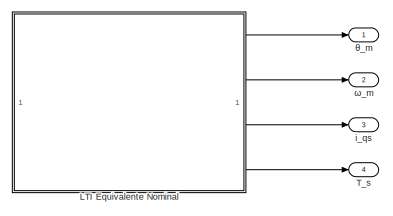
[diagram: root canvas - part 1/2, top right region]
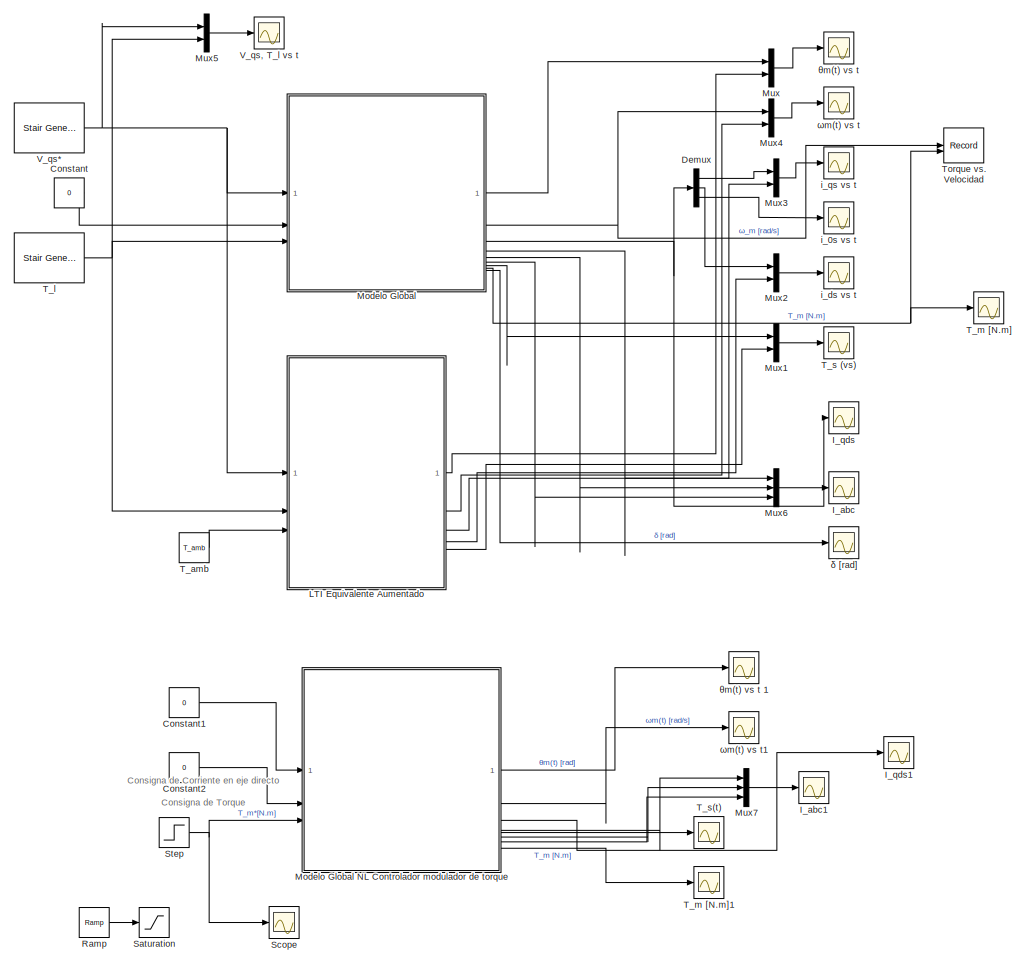
[diagram: root canvas - part 2/2, left side, full height]
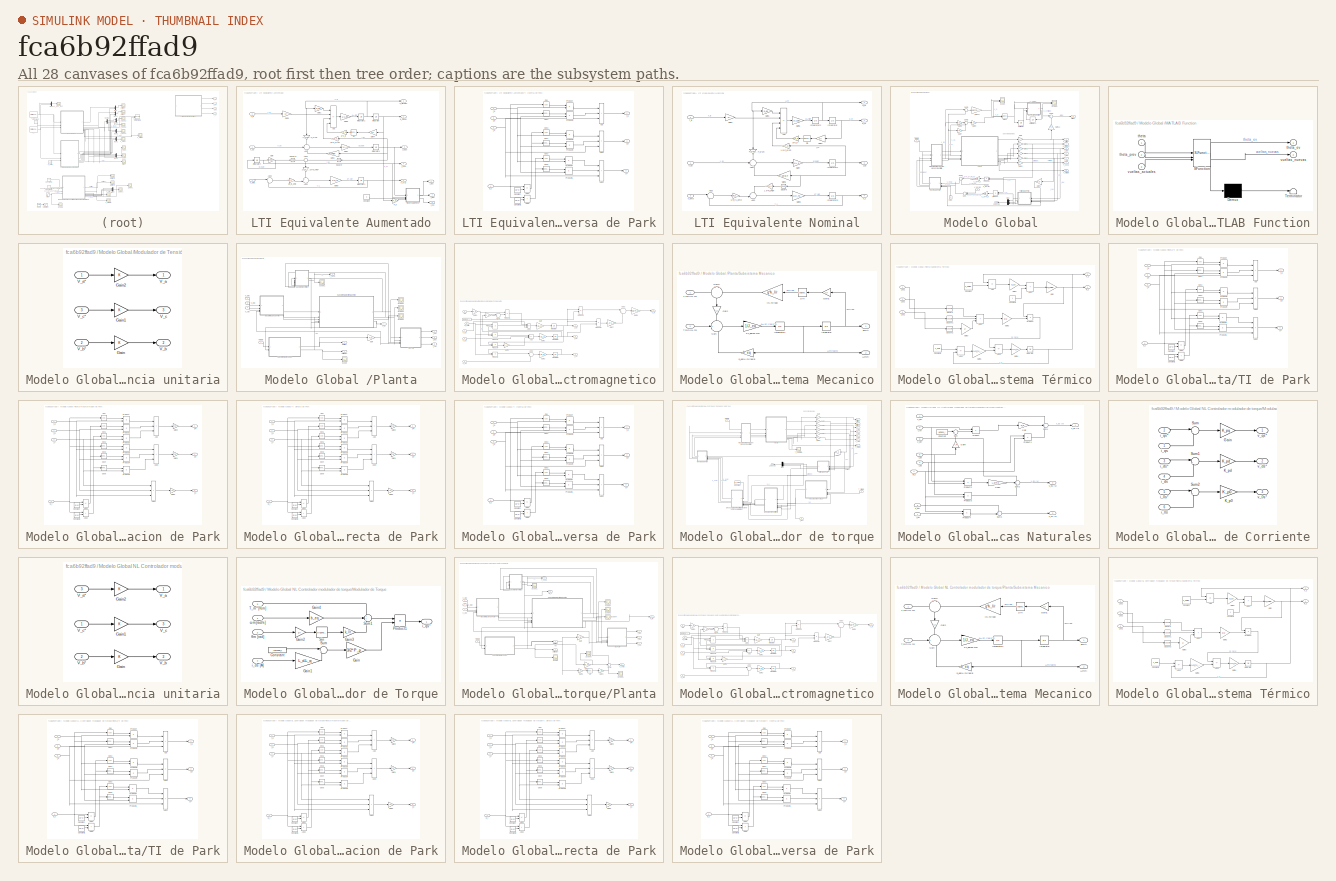
[diagram: thumbnail index - all 28 canvases of the model, root first then tree order]
MODEL slx_fca6b92ffad9
KIND model
CONFIG AbsTol = auto
CONFIG EnableMultiTasking = off
CONFIG FixedStep = auto
CONFIG MaxStep = 1e-4
CONFIG MinStep = auto
CONFIG PostLoadFcn = parametros_sistema_completo\nrun("parametros_sistema_completo.mlx")
CONFIG RelTol = 1e-3
CONFIG SampleTimeConstraint = Unconstrained
CONFIG SolverName = ode15s
CONFIG StartTime = 0.0
CONFIG StopTime = 4
BLOCK [Constant] Constant
  Commented = on
  Value = 0
BLOCK [Constant] Constant1
  Value = 0
BLOCK [Constant] Constant2
  Value = 0
BLOCK [Demux] Demux
  Commented = on
  Outputs = 3
BLOCK [Scope] I_abc
  ActiveDisplayYMaximum = 13.67744
  ActiveDisplayYMinimum = -13.46895
  Commented = on
  DataLoggingDecimateData = on
  DataLoggingDecimation = 1
  DataLoggingSaveFormat = Array
  DataLoggingVariableName = ScopeData8
  Floating = off
  GraphicalSettings = {"GraphicalSettings":{"LegacySettings":true,"Style":{"AxesScalingProperties":{"ScaleAxesLimitsAtStop":false},"Style":{"AxesColor":"[0 0 0]","ChannelNames":[""],"ColorOrder":"[1 1 0.0666666666666667;0.0745098039215686 0.623529411764706 1;1 0.411764705882353 0.16078431372549;0.392156862745098 0.831372549019608 0.0745098039215686;0.717647058823529 0.274509803921569 1;0.0588235294117647 1 1;1 0.074509...<+430ch>
  MultipleDisplayCache = [{"MaxYLimMag":13.67744,"MaxYLimReal":13.67744,"MinYLimMag":0,"MinYLimReal":-13.46895,"PlotAsMagnitudePhase":false,"ShowGrid":true,"ShowLegend":false,"Title":"%<SignalLabel>","YLabel":""}]
  NumInputPorts = 1
  WasSavedAsWebScope = on
  WindowPosition = [1 -851 1440 782]
BLOCK [Scope] I_abc1
  ActiveDisplayYMaximum = 2.231879319325162
  ActiveDisplayYMinimum = 1.509189182398543
  DataLoggingDecimateData = on
  DataLoggingDecimation = 1
  DataLoggingSaveFormat = Array
  DataLoggingVariableName = ScopeData16
  Floating = off
  GraphicalSettings = {"AxesScalingProperties":{"AlignXAxis":"Center","AlignYAxis":"Center","AutoScaleXAxisLimits":false,"AxesScaling":"Manual","AxesScalingNumUpdates":10,"ExpandOnly":true,"ScaleAxesLimitsAtStop":false,"XAxisDataRange":100,"YAxisDataRange":80},"Cursors":{"CursorChannels":["auto","auto"],"Enabled":false,"Horizontal":true,"LinkToWaveform":true,"LockSpacing":false,"ShowMeasurement":true,"ShowPanel":false,...<+2788ch>
  MultipleDisplayCache = [{"MaxYLimMag":2957.8611784200357,"MaxYLimReal":2.231879319325162,"MinYLimMag":0,"MinYLimReal":1.509189182398543,"PlotAsMagnitudePhase":false,"ShowGrid":true,"ShowLegend":false,"Title":"%<SignalLabel>","YLabel":""}]
  NumInputPorts = 1
  ScopeFrameLocation = window
  WasSavedAsWebScope = on
  WindowPosition = [1.000000,31.000000,1280.000000,747.000000,]
BLOCK [Scope] I_qds
  ActiveDisplayYMaximum = 9.6412
  ActiveDisplayYMinimum = -9.4986
  Commented = on
  DataLoggingDecimateData = on
  DataLoggingDecimation = 1
  DataLoggingSaveFormat = Array
  DataLoggingVariableName = ScopeData3
  Floating = off
  GraphicalSettings = {"GraphicalSettings":{"LegacySettings":true,"Style":{"AxesScalingProperties":{"ScaleAxesLimitsAtStop":false},"Style":{"AxesColor":"[0 0 0]","ChannelNames":[""],"ColorOrder":"[1 1 0.0666666666666667;0.0745098039215686 0.623529411764706 1;1 0.411764705882353 0.16078431372549;0.392156862745098 0.831372549019608 0.0745098039215686;0.717647058823529 0.274509803921569 1;0.0588235294117647 1 1;1 0.074509...<+439ch>
  MultipleDisplayCache = [{"MaxYLimMag":0.00014,"MaxYLimReal":9.6412,"MinYLimMag":0,"MinYLimReal":-9.4986,"PlotAsMagnitudePhase":false,"ShowGrid":true,"ShowLegend":false,"Title":"%<SignalLabel>","YLabel":""}]
  NumInputPorts = 1
  WasSavedAsWebScope = on
BLOCK [Scope] I_qds1
  ActiveDisplayYMaximum = 2.5935511564000739
  ActiveDisplayYMinimum = -1.0295255435558501
  DataLoggingDecimateData = on
  DataLoggingDecimation = 1
  DataLoggingSaveFormat = Array
  DataLoggingVariableName = ScopeData21
  Floating = off
  GraphicalSettings = {"AxesScalingProperties":{"AlignXAxis":"Center","AlignYAxis":"Center","AutoScaleXAxisLimits":false,"AxesScaling":"Manual","AxesScalingNumUpdates":10,"ExpandOnly":true,"ScaleAxesLimitsAtStop":false,"XAxisDataRange":100,"YAxisDataRange":80},"Cursors":{"CursorChannels":["auto","auto"],"Enabled":false,"Horizontal":true,"LinkToWaveform":true,"LockSpacing":false,"ShowMeasurement":true,"ShowPanel":false,...<+2746ch>
  MultipleDisplayCache = [{"MaxYLimMag":0.00014,"MaxYLimReal":2.5935511564000739,"MinYLimMag":0,"MinYLimReal":-1.0295255435558501,"PlotAsMagnitudePhase":false,"ShowGrid":true,"ShowLegend":true,"Title":"%<SignalLabel>","YLabel":""}]
  NumInputPorts = 1
  ScopeFrameLocation = window
  ShowLegend = on
  WasSavedAsWebScope = on
  WindowPosition = [1.000000,36.000000,1920.000000,1022.000000,]
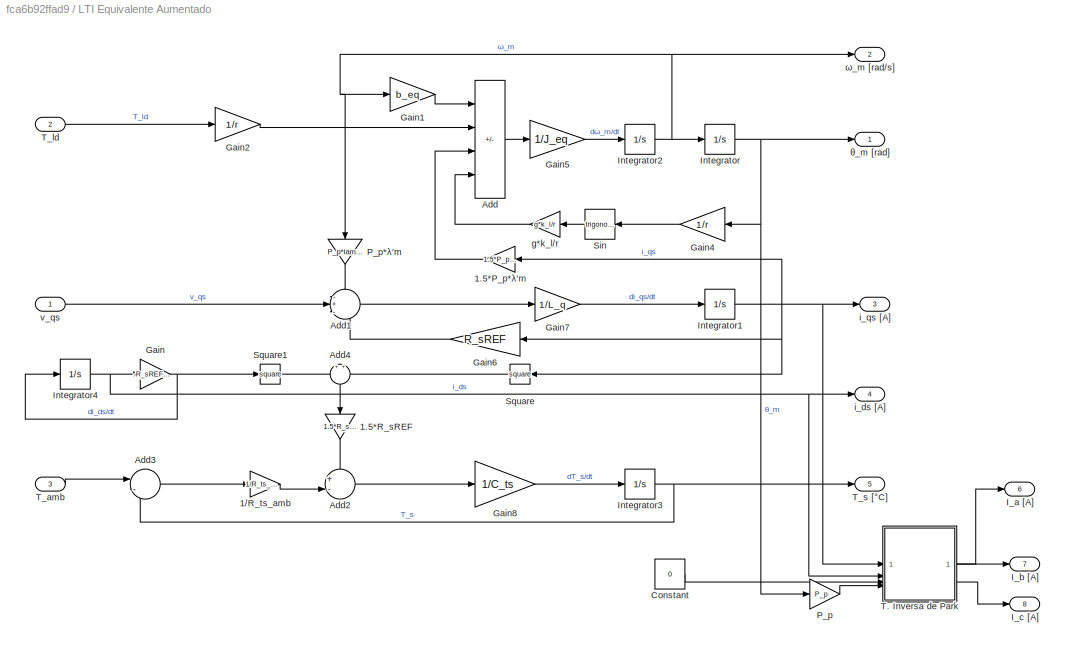
BLOCK [SubSystem] LTI Equivalente Aumentado
  Commented = on
BLOCK [Gain] LTI Equivalente Aumentado/1.5*P_p*λ′m
  Gain = 1.5*P_p*lambda_r
BLOCK [Gain] LTI Equivalente Aumentado/1.5*R_sREF
  Gain = 1.5*R_sREF
  NameLocation = right
BLOCK [Gain] LTI Equivalente Aumentado/1//R_ts_amb
  Gain = 1/R_ts_amb
  NameLocation = top
BLOCK [Sum] LTI Equivalente Aumentado/Add
  IconShape = rectangular
  Inputs = --+-
BLOCK [Sum] LTI Equivalente Aumentado/Add1
  Inputs = -+-
BLOCK [Sum] LTI Equivalente Aumentado/Add2
  Inputs = +-|
BLOCK [Sum] LTI Equivalente Aumentado/Add3
  Inputs = |-+
BLOCK [Sum] LTI Equivalente Aumentado/Add4
  NameLocation = right
BLOCK [Constant] LTI Equivalente Aumentado/Constant
  Value = 0
BLOCK [Gain] LTI Equivalente Aumentado/Gain
  Gain = -R_sREF/L_d
BLOCK [Gain] LTI Equivalente Aumentado/Gain1
  Gain = b_eq
  NameLocation = top
BLOCK [Gain] LTI Equivalente Aumentado/Gain2
  Gain = 1/r
BLOCK [Gain] LTI Equivalente Aumentado/Gain4
  Gain = 1/r
  NameLocation = top
BLOCK [Gain] LTI Equivalente Aumentado/Gain5
  Gain = 1/J_eq
BLOCK [Gain] LTI Equivalente Aumentado/Gain6
  Gain = R_sREF
  NameLocation = top
BLOCK [Gain] LTI Equivalente Aumentado/Gain7
  Gain = 1/L_q
BLOCK [Gain] LTI Equivalente Aumentado/Gain8
  Gain = 1/C_ts
BLOCK [Outport] LTI Equivalente Aumentado/I_a [A]
  Port = 6
BLOCK [Outport] LTI Equivalente Aumentado/I_b [A]
  Port = 7
BLOCK [Outport] LTI Equivalente Aumentado/I_c [A]
  Port = 8
BLOCK [Integrator] LTI Equivalente Aumentado/Integrator
BLOCK [Integrator] LTI Equivalente Aumentado/Integrator1
BLOCK [Integrator] LTI Equivalente Aumentado/Integrator2
BLOCK [Integrator] LTI Equivalente Aumentado/Integrator3
  InitialCondition = T_amb
BLOCK [Integrator] LTI Equivalente Aumentado/Integrator4
BLOCK [Gain] LTI Equivalente Aumentado/P_p
  Gain = P_p
BLOCK [Gain] LTI Equivalente Aumentado/P_p*λ′m
  Gain = P_p*lambda_r
  NameLocation = right
BLOCK [Trigonometry] LTI Equivalente Aumentado/Sin
  NameLocation = top
BLOCK [Math] LTI Equivalente Aumentado/Square
  NameLocation = top
  Operator = square
BLOCK [Math] LTI Equivalente Aumentado/Square1
  Operator = square
BLOCK [SubSystem] LTI Equivalente Aumentado/T. Inversa de Park
  NameLocation = top
BLOCK [Sum] LTI Equivalente Aumentado/T. Inversa de Park/Add
  IconShape = rectangular
  Inputs = +++
BLOCK [Sum] LTI Equivalente Aumentado/T. Inversa de Park/Add1
  IconShape = rectangular
  Inputs = +-
BLOCK [Sum] LTI Equivalente Aumentado/T. Inversa de Park/Add2
  IconShape = rectangular
BLOCK [Sum] LTI Equivalente Aumentado/T. Inversa de Park/Add3
  IconShape = rectangular
  Inputs = +++
BLOCK [Sum] LTI Equivalente Aumentado/T. Inversa de Park/Add4
  IconShape = rectangular
  Inputs = +++
BLOCK [Constant] LTI Equivalente Aumentado/T. Inversa de Park/Constant
  Value = 2/3*pi
BLOCK [Constant] LTI Equivalente Aumentado/T. Inversa de Park/Constant1
  Value = 2/3*pi
BLOCK [Trigonometry] LTI Equivalente Aumentado/T. Inversa de Park/Cos
  Operator = cos
BLOCK [Trigonometry] LTI Equivalente Aumentado/T. Inversa de Park/Cos1
BLOCK [Trigonometry] LTI Equivalente Aumentado/T. Inversa de Park/Cos2
  Operator = cos
BLOCK [Trigonometry] LTI Equivalente Aumentado/T. Inversa de Park/Cos3
  Operator = cos
BLOCK [Trigonometry] LTI Equivalente Aumentado/T. Inversa de Park/Cos4
BLOCK [Trigonometry] LTI Equivalente Aumentado/T. Inversa de Park/Cos5
BLOCK [Product] LTI Equivalente Aumentado/T. Inversa de Park/Product
BLOCK [Product] LTI Equivalente Aumentado/T. Inversa de Park/Product1
BLOCK [Product] LTI Equivalente Aumentado/T. Inversa de Park/Product2
BLOCK [Product] LTI Equivalente Aumentado/T. Inversa de Park/Product3
BLOCK [Product] LTI Equivalente Aumentado/T. Inversa de Park/Product4
BLOCK [Product] LTI Equivalente Aumentado/T. Inversa de Park/Product5
BLOCK [Inport] LTI Equivalente Aumentado/T. Inversa de Park/f_0
  Port = 3
BLOCK [Outport] LTI Equivalente Aumentado/T. Inversa de Park/f_a
BLOCK [Outport] LTI Equivalente Aumentado/T. Inversa de Park/f_b
  Port = 2
BLOCK [Outport] LTI Equivalente Aumentado/T. Inversa de Park/f_c
  Port = 3
BLOCK [Inport] LTI Equivalente Aumentado/T. Inversa de Park/f_d
  Port = 2
BLOCK [Inport] LTI Equivalente Aumentado/T. Inversa de Park/f_q
BLOCK [Inport] LTI Equivalente Aumentado/T. Inversa de Park/θ_r
  Port = 4
BLOCK [Inport] LTI Equivalente Aumentado/T_amb
  Port = 3
BLOCK [Inport] LTI Equivalente Aumentado/T_ld
  Port = 2
BLOCK [Outport] LTI Equivalente Aumentado/T_s [°C]
  Port = 5
BLOCK [Gain] LTI Equivalente Aumentado/g*k_l//r
  Gain = g*k_l/r
  NameLocation = top
BLOCK [Outport] LTI Equivalente Aumentado/i_ds [A]
  Port = 4
BLOCK [Outport] LTI Equivalente Aumentado/i_qs [A]
  Port = 3
BLOCK [Inport] LTI Equivalente Aumentado/v_qs
BLOCK [Outport] LTI Equivalente Aumentado/θ_m [rad]
BLOCK [Outport] LTI Equivalente Aumentado/ω_m [rad//s]
  Port = 2
BLOCK [SubSystem] LTI Equivalente Nominal
  Commented = on
BLOCK [Gain] LTI Equivalente Nominal/1.5*P_p*λ′m
  Gain = 1.5*P_p*lambda_r
BLOCK [Gain] LTI Equivalente Nominal/1.5*R_sREF
  Gain = 1.5*R_sREF
BLOCK [Gain] LTI Equivalente Nominal/1//R_ts_amb
  Gain = 1/R_ts_amb
  NameLocation = top
BLOCK [Sum] LTI Equivalente Nominal/Add
  IconShape = rectangular
  Inputs = --+-
BLOCK [Sum] LTI Equivalente Nominal/Add1
  Inputs = -+-
BLOCK [Sum] LTI Equivalente Nominal/Add2
  Inputs = +-|
BLOCK [Sum] LTI Equivalente Nominal/Add3
  Inputs = |-+
BLOCK [Gain] LTI Equivalente Nominal/Gain1
  Gain = b_eq
  NameLocation = top
BLOCK [Gain] LTI Equivalente Nominal/Gain2
  Gain = 1/r
BLOCK [Gain] LTI Equivalente Nominal/Gain4
  Gain = 1/r
  NameLocation = top
BLOCK [Gain] LTI Equivalente Nominal/Gain5
  Gain = 1/J_eq
BLOCK [Gain] LTI Equivalente Nominal/Gain6
  Gain = R_sREF
  NameLocation = top
BLOCK [Gain] LTI Equivalente Nominal/Gain7
  Gain = 1/L_q
BLOCK [Gain] LTI Equivalente Nominal/Gain8
  Gain = 1/C_ts
BLOCK [Integrator] LTI Equivalente Nominal/Integrator
BLOCK [Integrator] LTI Equivalente Nominal/Integrator1
BLOCK [Integrator] LTI Equivalente Nominal/Integrator2
BLOCK [Integrator] LTI Equivalente Nominal/Integrator3
BLOCK [Gain] LTI Equivalente Nominal/P_p*λ′m
  Gain = P_p*lambda_r
  NameLocation = right
BLOCK [Trigonometry] LTI Equivalente Nominal/Sin
  NameLocation = top
BLOCK [Math] LTI Equivalente Nominal/Square
  NameLocation = top
  Operator = square
BLOCK [Inport] LTI Equivalente Nominal/T_amb
  Port = 3
BLOCK [Inport] LTI Equivalente Nominal/T_ld
  Port = 2
BLOCK [Outport] LTI Equivalente Nominal/T_s
  Port = 4
BLOCK [Gain] LTI Equivalente Nominal/g*k_l//r
  Gain = g*k_l/r
  NameLocation = top
BLOCK [Outport] LTI Equivalente Nominal/i_qs
  Port = 3
BLOCK [Inport] LTI Equivalente Nominal/v_qs
BLOCK [Outport] LTI Equivalente Nominal/θ_m
BLOCK [Outport] LTI Equivalente Nominal/ω_m
  Port = 2
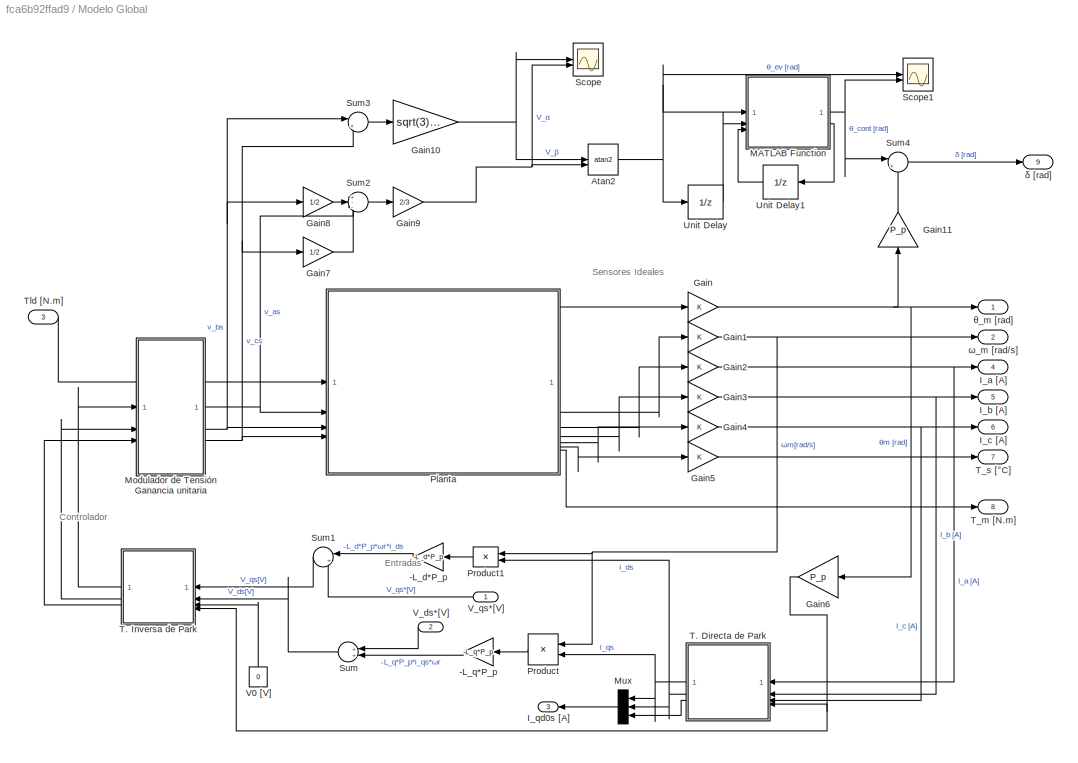
BLOCK [SubSystem] Modelo Global 
  Commented = on
BLOCK [Gain] Modelo Global /-L_d*P_p
  Gain = -L_d*P_p
  NameLocation = top
BLOCK [Gain] Modelo Global /-L_q*P_p
  Gain = -L_q*P_p
BLOCK [Trigonometry] Modelo Global /Atan2
  Operator = atan2
BLOCK [Gain] Modelo Global /Gain
BLOCK [Gain] Modelo Global /Gain1
BLOCK [Gain] Modelo Global /Gain10
  Gain = sqrt(3)/3
BLOCK [Gain] Modelo Global /Gain11
  Gain = P_p
  NameLocation = right
BLOCK [Gain] Modelo Global /Gain2
BLOCK [Gain] Modelo Global /Gain3
BLOCK [Gain] Modelo Global /Gain4
BLOCK [Gain] Modelo Global /Gain5
BLOCK [Gain] Modelo Global /Gain6
  Gain = P_p
  NameLocation = top
BLOCK [Gain] Modelo Global /Gain7
  Gain = 1/2
BLOCK [Gain] Modelo Global /Gain8
  Gain = 1/2
BLOCK [Gain] Modelo Global /Gain9
  Gain = 2/3
BLOCK [Outport] Modelo Global /I_a [A]
  Port = 4
BLOCK [Outport] Modelo Global /I_b [A]
  Port = 5
BLOCK [Outport] Modelo Global /I_c [A]
  Port = 6
BLOCK [Outport] Modelo Global /I_qd0s [A]
  NameLocation = top
  Port = 3
BLOCK [SubSystem] Modelo Global /MATLAB Function
  ErrorFcn = Stateflow.Translate.translate
  PermitHierarchicalResolution = ExplicitOnly
  SFBlockType = MATLAB Function
  TreatAsAtomicUnit = on
BLOCK [Demux] Modelo Global /MATLAB Function/ Demux 
  Outputs = 1
BLOCK [S-Function] Modelo Global /MATLAB Function/ SFunction 
  EnableBusSupport = off
  FunctionName = sf_sfun
  PortCounts = [3 3]
  SFcnIsStateOwnerBlock = off
  SFunctionDeploymentMode = off
  Tag = Stateflow S-Function 2
BLOCK [Terminator] Modelo Global /MATLAB Function/ Terminator 
BLOCK [Inport] Modelo Global /MATLAB Function/theta
BLOCK [Outport] Modelo Global /MATLAB Function/theta_ev
BLOCK [Inport] Modelo Global /MATLAB Function/theta_prev
  Port = 2
BLOCK [Inport] Modelo Global /MATLAB Function/vueltas_actuales
  Port = 3
BLOCK [Outport] Modelo Global /MATLAB Function/vueltas_nuevas
  Port = 2
BLOCK [SubSystem] Modelo Global /Modulador de Tensión Ganancia unitaria
BLOCK [Gain] Modelo Global /Modulador de Tensión Ganancia unitaria/Gain
BLOCK [Gain] Modelo Global /Modulador de Tensión Ganancia unitaria/Gain1
BLOCK [Gain] Modelo Global /Modulador de Tensión Ganancia unitaria/Gain2
BLOCK [Outport] Modelo Global /Modulador de Tensión Ganancia unitaria/V_a
BLOCK [Inport] Modelo Global /Modulador de Tensión Ganancia unitaria/V_a*
  NameLocation = top
BLOCK [Outport] Modelo Global /Modulador de Tensión Ganancia unitaria/V_b
  Port = 2
BLOCK [Inport] Modelo Global /Modulador de Tensión Ganancia unitaria/V_b*
  NameLocation = top
  Port = 2
BLOCK [Outport] Modelo Global /Modulador de Tensión Ganancia unitaria/V_c
  Port = 3
BLOCK [Inport] Modelo Global /Modulador de Tensión Ganancia unitaria/V_c*
  NameLocation = top
  Port = 3
BLOCK [Mux] Modelo Global /Mux
  DisplayOption = bar
  Inputs = 3
  NameLocation = top
BLOCK [SubSystem] Modelo Global /Planta
BLOCK [Gain] Modelo Global /Planta/Gain
  Gain = P_p
BLOCK [Scope] Modelo Global /Planta/Scope
  DataLoggingDecimateData = on
  DataLoggingDecimation = 1
  DataLoggingLimitDataPoints = on
  DataLoggingSaveFormat = Array
  Floating = off
  GraphicalSettings = {"GraphicalSettings":{"LegacySettings":true,"Style":{"Style":{"CurrentConfiguration":"extmgr.ConfigurationSet","MinimizeControls":"false","PlotType":"Auto","Version":"2023b"}}}}
  NumInputPorts = 1
  WasSavedAsWebScope = on
BLOCK [Scope] Modelo Global /Planta/Scope1
  DataLoggingDecimateData = on
  DataLoggingDecimation = 1
  DataLoggingLimitDataPoints = on
  DataLoggingSaveFormat = Array
  DataLoggingVariableName = ScopeData1
  Floating = off
  GraphicalSettings = {"GraphicalSettings":{"LegacySettings":true,"Style":{"Style":{"CurrentConfiguration":"extmgr.ConfigurationSet","MinimizeControls":"false","PlotType":"Auto","Version":"2023b"}}}}
  NumInputPorts = 1
  WasSavedAsWebScope = on
BLOCK [Scope] Modelo Global /Planta/Scope2
  DataLoggingDecimateData = on
  DataLoggingDecimation = 1
  DataLoggingLimitDataPoints = on
  DataLoggingSaveFormat = Array
  DataLoggingVariableName = ScopeData2
  Floating = off
  GraphicalSettings = {"GraphicalSettings":{"LegacySettings":true,"Style":{"Style":{"CurrentConfiguration":"extmgr.ConfigurationSet","MinimizeControls":"false","PlotType":"Auto","Version":"2023b"}}}}
  NumInputPorts = 1
  WasSavedAsWebScope = on
BLOCK [Scope] Modelo Global /Planta/Scope3
  DataLoggingDecimateData = on
  DataLoggingDecimation = 1
  DataLoggingLimitDataPoints = on
  DataLoggingSaveFormat = Array
  DataLoggingVariableName = ScopeData3
  Floating = off
  GraphicalSettings = {"GraphicalSettings":{"LegacySettings":true,"Style":{"Style":{"CurrentConfiguration":"extmgr.ConfigurationSet","MinimizeControls":"false","PlotType":"Auto","Version":"2023b"}}}}
  NumInputPorts = 1
  WasSavedAsWebScope = on
BLOCK [Scope] Modelo Global /Planta/Scope4
  DataLoggingDecimateData = on
  DataLoggingDecimation = 1
  DataLoggingLimitDataPoints = on
  DataLoggingSaveFormat = Array
  DataLoggingVariableName = ScopeData4
  Floating = off
  GraphicalSettings = {"GraphicalSettings":{"LegacySettings":true,"Style":{"Style":{"CurrentConfiguration":"extmgr.ConfigurationSet","MinimizeControls":"false","PlotType":"Auto","Version":"2023b"}}}}
  NumInputPorts = 1
  WasSavedAsWebScope = on
BLOCK [SubSystem] Modelo Global /Planta/Subsistema Electromagnetico
BLOCK [Sum] Modelo Global /Planta/Subsistema Electromagnetico/Add
  IconShape = rectangular
  Inputs = -++
BLOCK [Sum] Modelo Global /Planta/Subsistema Electromagnetico/Add1
  IconShape = rectangular
  Inputs = --+
BLOCK [Sum] Modelo Global /Planta/Subsistema Electromagnetico/Add2
  Inputs = |-+
BLOCK [Sum] Modelo Global /Planta/Subsistema Electromagnetico/Add3
  Inputs = |++
BLOCK [Gain] Modelo Global /Planta/Subsistema Electromagnetico/Gain
  Gain = 1/L_q
BLOCK [Gain] Modelo Global /Planta/Subsistema Electromagnetico/Gain1
  Gain = 1/L_d
BLOCK [Gain] Modelo Global /Planta/Subsistema Electromagnetico/Gain2
  Gain = 1/L_ls
BLOCK [Gain] Modelo Global /Planta/Subsistema Electromagnetico/Gain3
  Gain = P_p
BLOCK [Gain] Modelo Global /Planta/Subsistema Electromagnetico/Gain4
  Gain = L_d
BLOCK [Gain] Modelo Global /Planta/Subsistema Electromagnetico/Gain5
  Gain = L_q
BLOCK [Gain] Modelo Global /Planta/Subsistema Electromagnetico/Gain6
  Gain = 3/2*P_p
BLOCK [Gain] Modelo Global /Planta/Subsistema Electromagnetico/Gain7
  Gain = L_d-L_q
BLOCK [Integrator] Modelo Global /Planta/Subsistema Electromagnetico/Integrator
BLOCK [Integrator] Modelo Global /Planta/Subsistema Electromagnetico/Integrator1
  InitialCondition = i_ds_inicial
BLOCK [Integrator] Modelo Global /Planta/Subsistema Electromagnetico/Integrator2
BLOCK [Product] Modelo Global /Planta/Subsistema Electromagnetico/Product
BLOCK [Product] Modelo Global /Planta/Subsistema Electromagnetico/Product1
BLOCK [Product] Modelo Global /Planta/Subsistema Electromagnetico/Product2
BLOCK [Product] Modelo Global /Planta/Subsistema Electromagnetico/Product3
BLOCK [Product] Modelo Global /Planta/Subsistema Electromagnetico/Product4
BLOCK [Product] Modelo Global /Planta/Subsistema Electromagnetico/Product5
BLOCK [Product] Modelo Global /Planta/Subsistema Electromagnetico/Product6
BLOCK [Inport] Modelo Global /Planta/Subsistema Electromagnetico/R_s(T(t))
  Port = 5
BLOCK [Sum] Modelo Global /Planta/Subsistema Electromagnetico/Sum3
  Inputs = |++
BLOCK [Outport] Modelo Global /Planta/Subsistema Electromagnetico/T_m
  Port = 4
BLOCK [Outport] Modelo Global /Planta/Subsistema Electromagnetico/i_0s
  Port = 3
BLOCK [Outport] Modelo Global /Planta/Subsistema Electromagnetico/i_ds
  Port = 2
BLOCK [Outport] Modelo Global /Planta/Subsistema Electromagnetico/i_qs
BLOCK [Inport] Modelo Global /Planta/Subsistema Electromagnetico/v_0s
  Port = 3
BLOCK [Inport] Modelo Global /Planta/Subsistema Electromagnetico/v_ds
  Port = 2
BLOCK [Inport] Modelo Global /Planta/Subsistema Electromagnetico/v_qs
BLOCK [Constant] Modelo Global /Planta/Subsistema Electromagnetico/λ
  NameLocation = left
  Value = lambda_r
BLOCK [Inport] Modelo Global /Planta/Subsistema Electromagnetico/ωm
  Port = 4
BLOCK [SubSystem] Modelo Global /Planta/Subsistema Mecanico
BLOCK [Gain] Modelo Global /Planta/Subsistema Mecanico/1//J_eq[kg.m2]
  Gain = 1/J_eq
BLOCK [Gain] Modelo Global /Planta/Subsistema Mecanico/Gain
  Gain = 1/r
  NameLocation = left
BLOCK [Gain] Modelo Global /Planta/Subsistema Mecanico/Gain1
  Gain = 1/r
  NameLocation = top
BLOCK [Integrator] Modelo Global /Planta/Subsistema Mecanico/Integrator
BLOCK [Integrator] Modelo Global /Planta/Subsistema Mecanico/Integrator1
BLOCK [Trigonometry] Modelo Global /Planta/Subsistema Mecanico/Sin
  NameLocation = top
BLOCK [Sum] Modelo Global /Planta/Subsistema Mecanico/Sum
  Inputs = -+-
BLOCK [Sum] Modelo Global /Planta/Subsistema Mecanico/Sum1
  NameLocation = left
BLOCK [Inport] Modelo Global /Planta/Subsistema Mecanico/Tld(t)[N.m]
BLOCK [Inport] Modelo Global /Planta/Subsistema Mecanico/Tm(t)[N.m]
  Port = 2
BLOCK [Gain] Modelo Global /Planta/Subsistema Mecanico/[N.m//rad]
  Gain = g*k_l/r
  NameLocation = top
BLOCK [Gain] Modelo Global /Planta/Subsistema Mecanico/b_eq[N.m//rad//s]
  Gain = b_eq
  NameLocation = top
BLOCK [Outport] Modelo Global /Planta/Subsistema Mecanico/θm(t)
  NameLocation = top
BLOCK [Outport] Modelo Global /Planta/Subsistema Mecanico/ωm(t)
  Port = 2
BLOCK [SubSystem] Modelo Global /Planta/Subsistema Térmico
BLOCK [Sum] Modelo Global /Planta/Subsistema Térmico/Add
  IconShape = rectangular
  Inputs = +-
BLOCK [Sum] Modelo Global /Planta/Subsistema Térmico/Add1
  IconShape = rectangular
BLOCK [Sum] Modelo Global /Planta/Subsistema Térmico/Add2
  IconShape = rectangular
  Inputs = +++
BLOCK [Sum] Modelo Global /Planta/Subsistema Térmico/Add3
  IconShape = rectangular
  Inputs = +-
BLOCK [Sum] Modelo Global /Planta/Subsistema Térmico/Add4
  IconShape = rectangular
  Inputs = -+
BLOCK [Constant] Modelo Global /Planta/Subsistema Térmico/Constant
  Value = T_sREF
BLOCK [Constant] Modelo Global /Planta/Subsistema Térmico/Constant1
BLOCK [Constant] Modelo Global /Planta/Subsistema Térmico/Constant2
  Value = T_amb
BLOCK [Gain] Modelo Global /Planta/Subsistema Térmico/Gain
  Gain = R_sREF
BLOCK [Gain] Modelo Global /Planta/Subsistema Térmico/Gain1
  Gain = a_cu
BLOCK [Gain] Modelo Global /Planta/Subsistema Térmico/Gain2
  Gain = 3/2
BLOCK [Gain] Modelo Global /Planta/Subsistema Térmico/Gain3
  Gain = 2
BLOCK [Gain] Modelo Global /Planta/Subsistema Térmico/Gain4
  Gain = 1/C_ts
BLOCK [Gain] Modelo Global /Planta/Subsistema Térmico/Gain5
  Gain = 1/R_ts_amb
BLOCK [Integrator] Modelo Global /Planta/Subsistema Térmico/Integrator
  InitialCondition = 20
BLOCK [Product] Modelo Global /Planta/Subsistema Térmico/Product
BLOCK [Outport] Modelo Global /Planta/Subsistema Térmico/R_s
BLOCK [Math] Modelo Global /Planta/Subsistema Térmico/Square
  Operator = square
  OutDataTypeStr = double
BLOCK [Math] Modelo Global /Planta/Subsistema Térmico/Square1
  Operator = square
BLOCK [Math] Modelo Global /Planta/Subsistema Térmico/Square2
  Operator = square
BLOCK [Outport] Modelo Global /Planta/Subsistema Térmico/T_s
  Port = 2
BLOCK [Inport] Modelo Global /Planta/Subsistema Térmico/i_0s2
  Port = 3
BLOCK [Inport] Modelo Global /Planta/Subsistema Térmico/i_ds2
  Port = 2
BLOCK [Inport] Modelo Global /Planta/Subsistema Térmico/i_qs2
BLOCK [SubSystem] Modelo Global /Planta/TI de Park
BLOCK [Sum] Modelo Global /Planta/TI de Park/Add
  IconShape = rectangular
  Inputs = +++
BLOCK [Sum] Modelo Global /Planta/TI de Park/Add1
  IconShape = rectangular
  Inputs = +-
BLOCK [Sum] Modelo Global /Planta/TI de Park/Add2
  IconShape = rectangular
BLOCK [Sum] Modelo Global /Planta/TI de Park/Add3
  IconShape = rectangular
  Inputs = +++
BLOCK [Sum] Modelo Global /Planta/TI de Park/Add4
  IconShape = rectangular
  Inputs = +++
BLOCK [Constant] Modelo Global /Planta/TI de Park/Constant
  Value = 2/3*pi
BLOCK [Constant] Modelo Global /Planta/TI de Park/Constant1
  Value = 2/3*pi
BLOCK [Trigonometry] Modelo Global /Planta/TI de Park/Cos
  Operator = cos
BLOCK [Trigonometry] Modelo Global /Planta/TI de Park/Cos1
BLOCK [Trigonometry] Modelo Global /Planta/TI de Park/Cos2
  Operator = cos
BLOCK [Trigonometry] Modelo Global /Planta/TI de Park/Cos3
  Operator = cos
BLOCK [Trigonometry] Modelo Global /Planta/TI de Park/Cos4
BLOCK [Trigonometry] Modelo Global /Planta/TI de Park/Cos5
BLOCK [Product] Modelo Global /Planta/TI de Park/Product
BLOCK [Product] Modelo Global /Planta/TI de Park/Product1
BLOCK [Product] Modelo Global /Planta/TI de Park/Product2
BLOCK [Product] Modelo Global /Planta/TI de Park/Product3
BLOCK [Product] Modelo Global /Planta/TI de Park/Product4
BLOCK [Product] Modelo Global /Planta/TI de Park/Product5
BLOCK [Inport] Modelo Global /Planta/TI de Park/f_0
  Port = 3
BLOCK [Outport] Modelo Global /Planta/TI de Park/f_a
BLOCK [Outport] Modelo Global /Planta/TI de Park/f_b
  Port = 2
BLOCK [Outport] Modelo Global /Planta/TI de Park/f_c
  Port = 3
BLOCK [Inport] Modelo Global /Planta/TI de Park/f_d
  Port = 2
BLOCK [Inport] Modelo Global /Planta/TI de Park/f_q
BLOCK [Inport] Modelo Global /Planta/TI de Park/θ_r
  Port = 4
BLOCK [Outport] Modelo Global /Planta/T_m
  Port = 7
BLOCK [Outport] Modelo Global /Planta/T_s [°C]
  Port = 6
BLOCK [Inport] Modelo Global /Planta/Tld[N.m]
BLOCK [SubSystem] Modelo Global /Planta/Transformacion de Park
BLOCK [Sum] Modelo Global /Planta/Transformacion de Park/Add
  IconShape = rectangular
  Inputs = +++
BLOCK [Sum] Modelo Global /Planta/Transformacion de Park/Add1
  IconShape = rectangular
  Inputs = +-
BLOCK [Sum] Modelo Global /Planta/Transformacion de Park/Add2
  IconShape = rectangular
BLOCK [Sum] Modelo Global /Planta/Transformacion de Park/Add3
  IconShape = rectangular
  Inputs = +++
BLOCK [Sum] Modelo Global /Planta/Transformacion de Park/Add4
  IconShape = rectangular
  Inputs = +++
BLOCK [Constant] Modelo Global /Planta/Transformacion de Park/Constant
  Value = 2/3*pi
BLOCK [Constant] Modelo Global /Planta/Transformacion de Park/Constant1
  Value = 2/3*pi
BLOCK [Trigonometry] Modelo Global /Planta/Transformacion de Park/Cos
  Operator = cos
BLOCK [Trigonometry] Modelo Global /Planta/Transformacion de Park/Cos1
  Operator = cos
BLOCK [Trigonometry] Modelo Global /Planta/Transformacion de Park/Cos2
  Operator = cos
BLOCK [Trigonometry] Modelo Global /Planta/Transformacion de Park/Cos3
BLOCK [Trigonometry] Modelo Global /Planta/Transformacion de Park/Cos4
BLOCK [Trigonometry] Modelo Global /Planta/Transformacion de Park/Cos5
BLOCK [Gain] Modelo Global /Planta/Transformacion de Park/Gain1
  Gain = 2/3
BLOCK [Gain] Modelo Global /Planta/Transformacion de Park/Gain2
  Gain = 2/3
BLOCK [Gain] Modelo Global /Planta/Transformacion de Park/Gain3
  Gain = 1/3
BLOCK [Product] Modelo Global /Planta/Transformacion de Park/Product
BLOCK [Product] Modelo Global /Planta/Transformacion de Park/Product1
BLOCK [Product] Modelo Global /Planta/Transformacion de Park/Product2
BLOCK [Product] Modelo Global /Planta/Transformacion de Park/Product3
BLOCK [Product] Modelo Global /Planta/Transformacion de Park/Product4
BLOCK [Product] Modelo Global /Planta/Transformacion de Park/Product5
BLOCK [Outport] Modelo Global /Planta/Transformacion de Park/f_0
  Port = 3
BLOCK [Inport] Modelo Global /Planta/Transformacion de Park/f_a
BLOCK [Inport] Modelo Global /Planta/Transformacion de Park/f_b
  Port = 2
BLOCK [Inport] Modelo Global /Planta/Transformacion de Park/f_c
  Port = 3
BLOCK [Outport] Modelo Global /Planta/Transformacion de Park/f_d
  Port = 2
BLOCK [Outport] Modelo Global /Planta/Transformacion de Park/f_q
BLOCK [Inport] Modelo Global /Planta/Transformacion de Park/θ_r
  Port = 4
BLOCK [Inport] Modelo Global /Planta/V_a [V]
  Port = 2
BLOCK [Inport] Modelo Global /Planta/V_b [V]
  Port = 3
BLOCK [Inport] Modelo Global /Planta/V_c [V]
  Port = 4
BLOCK [Outport] Modelo Global /Planta/i_a [A]
  Port = 3
BLOCK [Outport] Modelo Global /Planta/i_b [A]
  Port = 4
BLOCK [Outport] Modelo Global /Planta/i_c [A]
  Port = 5
BLOCK [Outport] Modelo Global /Planta/θm [rad]
BLOCK [Outport] Modelo Global /Planta/ωm[rad//s]
  Port = 2
BLOCK [Product] Modelo Global /Product
  NameLocation = top
BLOCK [Product] Modelo Global /Product1
  NameLocation = top
BLOCK [Scope] Modelo Global /Scope
  ActiveDisplayYMaximum = 10.944908943614847
  ActiveDisplayYMinimum = -6.6419525828537571
  DataLoggingVariableName = ScopeData10
  Floating = off
  GraphicalSettings = {"AxesScalingProperties":{"AlignXAxis":"Center","AlignYAxis":"Center","AutoScaleXAxisLimits":false,"AxesScaling":"auto","AxesScalingNumUpdates":10,"ExpandOnly":true,"ScaleAxesLimitsAtStop":false,"XAxisDataRange":100,"YAxisDataRange":80},"DisplayProperties":{"ColorOrder":["auto","auto","auto","auto","auto","auto","auto","auto","auto","auto","auto","auto","auto","auto","auto","auto","auto","auto","a...<+2069ch>
  MultipleDisplayCache = [{"MaxYLimMag":10,"MaxYLimReal":10.944908943614847,"MinYLimMag":0,"MinYLimReal":-6.6419525828537571,"PlotAsMagnitudePhase":false,"ShowGrid":true,"ShowLegend":true,"Title":"%<SignalLabel>","YLabel":""}]
  NumInputPorts = 2
  ScopeFrameLocation = window
  ShowLegend = on
  WasSavedAsWebScope = on
  WindowPosition = [0.000000,29.000000,1920.000000,1022.000000,]
BLOCK [Scope] Modelo Global /Scope1
  ActiveDisplayYMaximum = 776.92458621382434
  ActiveDisplayYMinimum = 691.15161478638345
  DataLoggingVariableName = ScopeData11
  Floating = off
  GraphicalSettings = {"AxesScalingProperties":{"AlignXAxis":"Center","AlignYAxis":"Center","AutoScaleXAxisLimits":false,"AxesScaling":"Manual","AxesScalingNumUpdates":10,"ExpandOnly":true,"ScaleAxesLimitsAtStop":false,"XAxisDataRange":100,"YAxisDataRange":80},"DisplayProperties":{"ColorOrder":["auto","auto","auto","auto","auto","auto","auto","auto","auto","auto","auto","auto","auto","auto","auto","auto","auto","auto",...<+2103ch>
  MultipleDisplayCache = [{"MaxYLimMag":10,"MaxYLimReal":776.92458621382434,"MinYLimMag":0,"MinYLimReal":691.15161478638345,"PlotAsMagnitudePhase":false,"ShowGrid":true,"ShowLegend":true,"Title":"%<SignalLabel>","YLabel":""}]
  NumInputPorts = 2
  ScopeFrameLocation = window
  ShowLegend = on
  WasSavedAsWebScope = on
  WindowPosition = [2.000000,37.000000,1283.000000,780.000000,]
BLOCK [Sum] Modelo Global /Sum
  Inputs = ++|
  NameLocation = top
BLOCK [Sum] Modelo Global /Sum1
  Inputs = |++
  NameLocation = top
BLOCK [Sum] Modelo Global /Sum2
  Inputs = +--
BLOCK [Sum] Modelo Global /Sum3
  Inputs = |+-
BLOCK [Sum] Modelo Global /Sum4
  Inputs = |+-
BLOCK [SubSystem] Modelo Global /T. Directa de Park
  NameLocation = top
BLOCK [Sum] Modelo Global /T. Directa de Park/Add
  IconShape = rectangular
  Inputs = +++
BLOCK [Sum] Modelo Global /T. Directa de Park/Add1
  IconShape = rectangular
  Inputs = +-
BLOCK [Sum] Modelo Global /T. Directa de Park/Add2
  IconShape = rectangular
BLOCK [Sum] Modelo Global /T. Directa de Park/Add3
  IconShape = rectangular
  Inputs = +++
BLOCK [Sum] Modelo Global /T. Directa de Park/Add4
  IconShape = rectangular
  Inputs = +++
BLOCK [Constant] Modelo Global /T. Directa de Park/Constant
  Value = 2/3*pi
BLOCK [Constant] Modelo Global /T. Directa de Park/Constant1
  Value = 2/3*pi
BLOCK [Trigonometry] Modelo Global /T. Directa de Park/Cos
  Operator = cos
BLOCK [Trigonometry] Modelo Global /T. Directa de Park/Cos1
  Operator = cos
BLOCK [Trigonometry] Modelo Global /T. Directa de Park/Cos2
  Operator = cos
BLOCK [Trigonometry] Modelo Global /T. Directa de Park/Cos3
BLOCK [Trigonometry] Modelo Global /T. Directa de Park/Cos4
BLOCK [Trigonometry] Modelo Global /T. Directa de Park/Cos5
BLOCK [Gain] Modelo Global /T. Directa de Park/Gain1
  Gain = 2/3
BLOCK [Gain] Modelo Global /T. Directa de Park/Gain2
  Gain = 2/3
BLOCK [Gain] Modelo Global /T. Directa de Park/Gain3
  Gain = 1/3
BLOCK [Product] Modelo Global /T. Directa de Park/Product
BLOCK [Product] Modelo Global /T. Directa de Park/Product1
BLOCK [Product] Modelo Global /T. Directa de Park/Product2
BLOCK [Product] Modelo Global /T. Directa de Park/Product3
BLOCK [Product] Modelo Global /T. Directa de Park/Product4
BLOCK [Product] Modelo Global /T. Directa de Park/Product5
BLOCK [Outport] Modelo Global /T. Directa de Park/f_0
  Port = 3
BLOCK [Inport] Modelo Global /T. Directa de Park/f_a
BLOCK [Inport] Modelo Global /T. Directa de Park/f_b
  Port = 2
BLOCK [Inport] Modelo Global /T. Directa de Park/f_c
  Port = 3
BLOCK [Outport] Modelo Global /T. Directa de Park/f_d
  Port = 2
BLOCK [Outport] Modelo Global /T. Directa de Park/f_q
BLOCK [Inport] Modelo Global /T. Directa de Park/θ_r
  Port = 4
BLOCK [SubSystem] Modelo Global /T. Inversa de Park
BLOCK [Sum] Modelo Global /T. Inversa de Park/Add
  IconShape = rectangular
  Inputs = +++
BLOCK [Sum] Modelo Global /T. Inversa de Park/Add1
  IconShape = rectangular
  Inputs = +-
BLOCK [Sum] Modelo Global /T. Inversa de Park/Add2
  IconShape = rectangular
BLOCK [Sum] Modelo Global /T. Inversa de Park/Add3
  IconShape = rectangular
  Inputs = +++
BLOCK [Sum] Modelo Global /T. Inversa de Park/Add4
  IconShape = rectangular
  Inputs = +++
BLOCK [Constant] Modelo Global /T. Inversa de Park/Constant
  Value = 2/3*pi
BLOCK [Constant] Modelo Global /T. Inversa de Park/Constant1
  Value = 2/3*pi
BLOCK [Trigonometry] Modelo Global /T. Inversa de Park/Cos
  Operator = cos
BLOCK [Trigonometry] Modelo Global /T. Inversa de Park/Cos1
BLOCK [Trigonometry] Modelo Global /T. Inversa de Park/Cos2
  Operator = cos
BLOCK [Trigonometry] Modelo Global /T. Inversa de Park/Cos3
  Operator = cos
BLOCK [Trigonometry] Modelo Global /T. Inversa de Park/Cos4
BLOCK [Trigonometry] Modelo Global /T. Inversa de Park/Cos5
BLOCK [Product] Modelo Global /T. Inversa de Park/Product
BLOCK [Product] Modelo Global /T. Inversa de Park/Product1
BLOCK [Product] Modelo Global /T. Inversa de Park/Product2
BLOCK [Product] Modelo Global /T. Inversa de Park/Product3
BLOCK [Product] Modelo Global /T. Inversa de Park/Product4
BLOCK [Product] Modelo Global /T. Inversa de Park/Product5
BLOCK [Inport] Modelo Global /T. Inversa de Park/f_0
  Port = 3
BLOCK [Outport] Modelo Global /T. Inversa de Park/f_a
BLOCK [Outport] Modelo Global /T. Inversa de Park/f_b
  Port = 2
BLOCK [Outport] Modelo Global /T. Inversa de Park/f_c
  Port = 3
BLOCK [Inport] Modelo Global /T. Inversa de Park/f_d
  Port = 2
BLOCK [Inport] Modelo Global /T. Inversa de Park/f_q
BLOCK [Inport] Modelo Global /T. Inversa de Park/θ_r
  Port = 4
BLOCK [Outport] Modelo Global /T_m [N.m]
  Port = 8
BLOCK [Outport] Modelo Global /T_s [°C]
  Port = 7
BLOCK [Inport] Modelo Global /Tld [N.m]
  Port = 3
BLOCK [UnitDelay] Modelo Global /Unit Delay
  HasFrameUpgradeWarning = on
  SampleTime = 1e-6
BLOCK [UnitDelay] Modelo Global /Unit Delay1
  HasFrameUpgradeWarning = on
  NameLocation = top
  SampleTime = 1e-6
BLOCK [Constant] Modelo Global /V0 [V]
  NameLocation = right
  Value = 0
BLOCK [Inport] Modelo Global /V_ds*[V]
  NameLocation = top
  Port = 2
BLOCK [Inport] Modelo Global /V_qs*[V]
  NameLocation = top
BLOCK [Outport] Modelo Global /δ [rad]
  Port = 9
BLOCK [Outport] Modelo Global /θ_m [rad]
BLOCK [Outport] Modelo Global /ω_m [rad//s]
  Port = 2
BLOCK [SubSystem] Modelo Global NL Controlador modulador de torque
BLOCK [Constant] Modelo Global NL Controlador modulador de torque/Constant
  Value = R_sREF
BLOCK [SubSystem] Modelo Global NL Controlador modulador de torque/Desacople de Realimentaciones Fisicas Naturales
BLOCK [Constant] Modelo Global NL Controlador modulador de torque/Desacople de Realimentaciones Fisicas Naturales/Constant
  Value = lambda_r
BLOCK [Gain] Modelo Global NL Controlador modulador de torque/Desacople de Realimentaciones Fisicas Naturales/Gain
  Gain = P_p
BLOCK [Gain] Modelo Global NL Controlador modulador de torque/Desacople de Realimentaciones Fisicas Naturales/Gain3
  Gain = L_q*P_p
BLOCK [Gain] Modelo Global NL Controlador modulador de torque/Desacople de Realimentaciones Fisicas Naturales/Gain4
  Gain = L_d
  NameLocation = right
BLOCK [Product] Modelo Global NL Controlador modulador de torque/Desacople de Realimentaciones Fisicas Naturales/Product
BLOCK [Product] Modelo Global NL Controlador modulador de torque/Desacople de Realimentaciones Fisicas Naturales/Product1
BLOCK [Product] Modelo Global NL Controlador modulador de torque/Desacople de Realimentaciones Fisicas Naturales/Product2
BLOCK [Product] Modelo Global NL Controlador modulador de torque/Desacople de Realimentaciones Fisicas Naturales/Product3
BLOCK [Product] Modelo Global NL Controlador modulador de torque/Desacople de Realimentaciones Fisicas Naturales/Product4
BLOCK [Inport] Modelo Global NL Controlador modulador de torque/Desacople de Realimentaciones Fisicas Naturales/R_s
BLOCK [Sum] Modelo Global NL Controlador modulador de torque/Desacople de Realimentaciones Fisicas Naturales/Sum
  Inputs = |++
BLOCK [Sum] Modelo Global NL Controlador modulador de torque/Desacople de Realimentaciones Fisicas Naturales/Sum1
  Inputs = +++
BLOCK [Sum] Modelo Global NL Controlador modulador de torque/Desacople de Realimentaciones Fisicas Naturales/Sum2
  Inputs = +-+
BLOCK [Sum] Modelo Global NL Controlador modulador de torque/Desacople de Realimentaciones Fisicas Naturales/Sum3
  Inputs = ++|
BLOCK [Inport] Modelo Global NL Controlador modulador de torque/Desacople de Realimentaciones Fisicas Naturales/i_0s
  Port = 7
BLOCK [Inport] Modelo Global NL Controlador modulador de torque/Desacople de Realimentaciones Fisicas Naturales/i_ds
  Port = 8
BLOCK [Inport] Modelo Global NL Controlador modulador de torque/Desacople de Realimentaciones Fisicas Naturales/i_qs
  Port = 3
BLOCK [Outport] Modelo Global NL Controlador modulador de torque/Desacople de Realimentaciones Fisicas Naturales/v_0s [V]
  Port = 3
BLOCK [Inport] Modelo Global NL Controlador modulador de torque/Desacople de Realimentaciones Fisicas Naturales/v_0s*
  Port = 6
BLOCK [Outport] Modelo Global NL Controlador modulador de torque/Desacople de Realimentaciones Fisicas Naturales/v_ds [V]
  Port = 2
BLOCK [Inport] Modelo Global NL Controlador modulador de torque/Desacople de Realimentaciones Fisicas Naturales/v_ds*
  Port = 5
BLOCK [Outport] Modelo Global NL Controlador modulador de torque/Desacople de Realimentaciones Fisicas Naturales/v_qs [V]
BLOCK [Inport] Modelo Global NL Controlador modulador de torque/Desacople de Realimentaciones Fisicas Naturales/v_qs*
  Port = 4
BLOCK [Inport] Modelo Global NL Controlador modulador de torque/Desacople de Realimentaciones Fisicas Naturales/ωm
  Port = 2
BLOCK [Gain] Modelo Global NL Controlador modulador de torque/Gain
BLOCK [Gain] Modelo Global NL Controlador modulador de torque/Gain1
BLOCK [Gain] Modelo Global NL Controlador modulador de torque/Gain2
BLOCK [Gain] Modelo Global NL Controlador modulador de torque/Gain3
BLOCK [Gain] Modelo Global NL Controlador modulador de torque/Gain4
BLOCK [Gain] Modelo Global NL Controlador modulador de torque/Gain5
BLOCK [Gain] Modelo Global NL Controlador modulador de torque/Gain6
  Gain = P_p
  NameLocation = top
BLOCK [Outport] Modelo Global NL Controlador modulador de torque/I_a [A]
  Port = 4
BLOCK [Outport] Modelo Global NL Controlador modulador de torque/I_b [A]
  Port = 5
BLOCK [Outport] Modelo Global NL Controlador modulador de torque/I_c [A]
  Port = 6
BLOCK [Outport] Modelo Global NL Controlador modulador de torque/I_qd0s [A]
  NameLocation = top
  Port = 3
BLOCK [SubSystem] Modelo Global NL Controlador modulador de torque/Modulador de Corriente
BLOCK [Gain] Modelo Global NL Controlador modulador de torque/Modulador de Corriente/Gain
  Gain = K_pq
BLOCK [Gain] Modelo Global NL Controlador modulador de torque/Modulador de Corriente/K_p0
  Gain = K_p0
BLOCK [Gain] Modelo Global NL Controlador modulador de torque/Modulador de Corriente/K_pd
  Gain = K_pd
BLOCK [Sum] Modelo Global NL Controlador modulador de torque/Modulador de Corriente/Sum
  Inputs = |+-
BLOCK [Sum] Modelo Global NL Controlador modulador de torque/Modulador de Corriente/Sum1
  Inputs = |+-
BLOCK [Sum] Modelo Global NL Controlador modulador de torque/Modulador de Corriente/Sum2
  Inputs = |+-
BLOCK [Inport] Modelo Global NL Controlador modulador de torque/Modulador de Corriente/i_0s
  Port = 6
BLOCK [Inport] Modelo Global NL Controlador modulador de torque/Modulador de Corriente/i_0s*
  Port = 5
BLOCK [Inport] Modelo Global NL Controlador modulador de torque/Modulador de Corriente/i_ds
  Port = 4
BLOCK [Inport] Modelo Global NL Controlador modulador de torque/Modulador de Corriente/i_ds*
  Port = 3
BLOCK [Inport] Modelo Global NL Controlador modulador de torque/Modulador de Corriente/i_qs
BLOCK [Inport] Modelo Global NL Controlador modulador de torque/Modulador de Corriente/i_qs*
  Port = 2
BLOCK [Outport] Modelo Global NL Controlador modulador de torque/Modulador de Corriente/v_0s*
  Port = 3
BLOCK [Outport] Modelo Global NL Controlador modulador de torque/Modulador de Corriente/v_ds*
  Port = 2
BLOCK [Outport] Modelo Global NL Controlador modulador de torque/Modulador de Corriente/v_qs*
BLOCK [SubSystem] Modelo Global NL Controlador modulador de torque/Modulador de Tensión Ganancia unitaria
BLOCK [Gain] Modelo Global NL Controlador modulador de torque/Modulador de Tensión Ganancia unitaria/Gain
BLOCK [Gain] Modelo Global NL Controlador modulador de torque/Modulador de Tensión Ganancia unitaria/Gain1
BLOCK [Gain] Modelo Global NL Controlador modulador de torque/Modulador de Tensión Ganancia unitaria/Gain2
BLOCK [Outport] Modelo Global NL Controlador modulador de torque/Modulador de Tensión Ganancia unitaria/V_a
BLOCK [Inport] Modelo Global NL Controlador modulador de torque/Modulador de Tensión Ganancia unitaria/V_a*
  NameLocation = top
  Port = 3
BLOCK [Outport] Modelo Global NL Controlador modulador de torque/Modulador de Tensión Ganancia unitaria/V_b
  Port = 2
BLOCK [Inport] Modelo Global NL Controlador modulador de torque/Modulador de Tensión Ganancia unitaria/V_b*
  NameLocation = top
  Port = 2
BLOCK [Outport] Modelo Global NL Controlador modulador de torque/Modulador de Tensión Ganancia unitaria/V_c
  Port = 3
BLOCK [Inport] Modelo Global NL Controlador modulador de torque/Modulador de Tensión Ganancia unitaria/V_c*
  NameLocation = top
BLOCK [SubSystem] Modelo Global NL Controlador modulador de torque/Modulador de Torque
BLOCK [Constant] Modelo Global NL Controlador modulador de torque/Modulador de Torque/Constant
  Value = lambda_r
BLOCK [Gain] Modelo Global NL Controlador modulador de torque/Modulador de Torque/Gain
  Gain = 3/2*P_p
BLOCK [Gain] Modelo Global NL Controlador modulador de torque/Modulador de Torque/Gain1
  Gain = L_d-L_q
BLOCK [Gain] Modelo Global NL Controlador modulador de torque/Modulador de Torque/Gain2
  Gain = 1/r
BLOCK [Gain] Modelo Global NL Controlador modulador de torque/Modulador de Torque/Gain3
  Gain = k_l/r
BLOCK [Gain] Modelo Global NL Controlador modulador de torque/Modulador de Torque/Gain4
  Gain = b_eq
BLOCK [Product] Modelo Global NL Controlador modulador de torque/Modulador de Torque/Product1
  Inputs = */
BLOCK [Trigonometry] Modelo Global NL Controlador modulador de torque/Modulador de Torque/Sin
BLOCK [Sum] Modelo Global NL Controlador modulador de torque/Modulador de Torque/Sum
  Inputs = |++
BLOCK [Sum] Modelo Global NL Controlador modulador de torque/Modulador de Torque/Sum1
  Inputs = +++
BLOCK [Inport] Modelo Global NL Controlador modulador de torque/Modulador de Torque/T_m*'[N.m]
  Port = 3
BLOCK [Inport] Modelo Global NL Controlador modulador de torque/Modulador de Torque/i_ds [A]
  Port = 4
BLOCK [Outport] Modelo Global NL Controlador modulador de torque/Modulador de Torque/i_qs*
BLOCK [Inport] Modelo Global NL Controlador modulador de torque/Modulador de Torque/θm [rad]
  Port = 2
BLOCK [Inport] Modelo Global NL Controlador modulador de torque/Modulador de Torque/ωm[rad//s]
BLOCK [Mux] Modelo Global NL Controlador modulador de torque/Mux
  DisplayOption = bar
  Inputs = 3
  NameLocation = top
BLOCK [SubSystem] Modelo Global NL Controlador modulador de torque/Planta
BLOCK [Gain] Modelo Global NL Controlador modulador de torque/Planta/Gain
  Gain = P_p
BLOCK [Gain] Modelo Global NL Controlador modulador de torque/Planta/Gain2
  Gain = 1/r
BLOCK [Gain] Modelo Global NL Controlador modulador de torque/Planta/Gain3
  Gain = k_l/r
BLOCK [Gain] Modelo Global NL Controlador modulador de torque/Planta/Gain4
  Gain = b_eq
BLOCK [Outport] Modelo Global NL Controlador modulador de torque/Planta/R_s
  Port = 8
BLOCK [Scope] Modelo Global NL Controlador modulador de torque/Planta/Scope
  DataLoggingDecimateData = on
  DataLoggingDecimation = 1
  DataLoggingLimitDataPoints = on
  DataLoggingSaveFormat = Array
  Floating = off
  GraphicalSettings = {"GraphicalSettings":{"LegacySettings":true,"Style":{"Style":{"ActiveDisplayYMaximum":"114.5331","ActiveDisplayYMinimum":"-12.7259","MinimizeControls":"false","PlotType":"Auto"}}}}
  NumInputPorts = 1
  WasSavedAsWebScope = on
BLOCK [Scope] Modelo Global NL Controlador modulador de torque/Planta/Scope1
  ActiveDisplayYMaximum = 67251.204010026631
  ActiveDisplayYMinimum = 67089.284936264026
  DataLoggingDecimateData = on
  DataLoggingDecimation = 1
  DataLoggingLimitDataPoints = on
  DataLoggingSaveFormat = Array
  DataLoggingVariableName = ScopeData1
  Floating = off
  GraphicalSettings = {"Style":{"BackgroundColor":[0.12941176470588237,0.12941176470588237,0.12941176470588237],"AxesColor":[0.07058823529411765,0.07058823529411765,0.07058823529411765],"LabelsColor":[0.8509803921568627,0.8509803921568627,0.8509803921568627],"PreserveColors":false,"Visible":[true],"LineStyle":["-"],"LineWidth":[1.5],"BarWidth":[0.9],"LineColor":["auto"],"LineFaceAlpha":[1],"LineEdgeAlpha":[1],"Marker":...<+2013ch>
  MultipleDisplayCache = [{"MaxYLimMag":67205.806914874309,"MaxYLimReal":67251.204010026631,"MinYLimMag":67188.456937816751,"MinYLimReal":67089.284936264026,"PlotAsMagnitudePhase":false,"ShowGrid":true,"ShowLegend":false,"Title":"%<SignalLabel>","YLabel":""}]
  NumInputPorts = 1
  ScopeFrameLocation = window
  WasSavedAsWebScope = on
  WindowPosition = [1.000000,31.000000,1280.000000,747.000000,]
BLOCK [Scope] Modelo Global NL Controlador modulador de torque/Planta/Scope2
  DataLoggingDecimateData = on
  DataLoggingDecimation = 1
  DataLoggingLimitDataPoints = on
  DataLoggingSaveFormat = Array
  DataLoggingVariableName = ScopeData2
  Floating = off
  GraphicalSettings = {"GraphicalSettings":{"LegacySettings":true,"Style":{"Style":{"ActiveDisplayYMaximum":"3.30192","ActiveDisplayYMinimum":"-0.36688","MinimizeControls":"false","PlotType":"Auto"}}}}
  NumInputPorts = 1
  WasSavedAsWebScope = on
BLOCK [Scope] Modelo Global NL Controlador modulador de torque/Planta/Scope3
  DataLoggingDecimateData = on
  DataLoggingDecimation = 1
  DataLoggingLimitDataPoints = on
  DataLoggingSaveFormat = Array
  DataLoggingVariableName = ScopeData3
  Floating = off
  GraphicalSettings = {"GraphicalSettings":{"LegacySettings":true,"Style":{"Style":{"ActiveDisplayYMaximum":"1.75287","ActiveDisplayYMinimum":"-0.21509","MinimizeControls":"false","PlotType":"Auto"}}}}
  NumInputPorts = 1
  WasSavedAsWebScope = on
BLOCK [Scope] Modelo Global NL Controlador modulador de torque/Planta/Scope4
  DataLoggingDecimateData = on
  DataLoggingDecimation = 1
  DataLoggingLimitDataPoints = on
  DataLoggingSaveFormat = Array
  DataLoggingVariableName = ScopeData4
  Floating = off
  GraphicalSettings = {"GraphicalSettings":{"LegacySettings":true,"Style":{"Style":{"ActiveDisplayYMaximum":"5E-11","ActiveDisplayYMinimum":"-4.8E-11","MinimizeControls":"false","PlotType":"Auto"}}}}
  NumInputPorts = 1
  WasSavedAsWebScope = on
BLOCK [Scope] Modelo Global NL Controlador modulador de torque/Planta/Scope5
  ActiveDisplayYMaximum = 0.003029670435980679
  ActiveDisplayYMinimum = -0.0001310410325741306
  DataLoggingDecimateData = on
  DataLoggingDecimation = 1
  DataLoggingSaveFormat = Array
  DataLoggingVariableName = ScopeData19
  Floating = off
  GraphicalSettings = {"AxesScalingProperties":{"AlignXAxis":"Center","AlignYAxis":"Center","AutoScaleXAxisLimits":false,"AxesScaling":"Manual","AxesScalingNumUpdates":10,"ExpandOnly":true,"ScaleAxesLimitsAtStop":false,"XAxisDataRange":100,"YAxisDataRange":80},"DisplayProperties":{"ColorOrder":["auto","auto","auto","auto","auto","auto","auto","auto","auto","auto","auto","auto","auto","auto","auto","auto","auto","auto",...<+2026ch>
  MultipleDisplayCache = [{"MaxYLimMag":0.00095559973519532715,"MaxYLimReal":0.003029670435980679,"MinYLimMag":0,"MinYLimReal":-0.0001310410325741306,"PlotAsMagnitudePhase":false,"ShowGrid":true,"ShowLegend":false,"Title":"%<SignalLabel>","YLabel":""}]
  NumInputPorts = 1
  ScopeFrameLocation = window
  WasSavedAsWebScope = on
  WindowPosition = [121.000000,35.000000,560.000000,420.000000,]
BLOCK [Scope] Modelo Global NL Controlador modulador de torque/Planta/Scope6
  ActiveDisplayYMaximum = 0.0027749697476899737
  ActiveDisplayYMinimum = -0.00013855739495093901
  DataLoggingDecimateData = on
  DataLoggingDecimation = 1
  DataLoggingSaveFormat = Array
  DataLoggingVariableName = ScopeData20
  Floating = off
  GraphicalSettings = {"AxesScalingProperties":{"AlignXAxis":"Center","AlignYAxis":"Center","AutoScaleXAxisLimits":false,"AxesScaling":"Manual","AxesScalingNumUpdates":10,"ExpandOnly":true,"ScaleAxesLimitsAtStop":false,"XAxisDataRange":100,"YAxisDataRange":80},"DisplayProperties":{"ColorOrder":["auto","auto","auto","auto","auto","auto","auto","auto","auto","auto","auto","auto","auto","auto","auto","auto","auto","auto",...<+2058ch>
  MultipleDisplayCache = [{"MaxYLimMag":0.0027002168033500706,"MaxYLimReal":0.0027749697476899737,"MinYLimMag":0.0025387524763468635,"MinYLimReal":-0.00013855739495093901,"PlotAsMagnitudePhase":false,"ShowGrid":true,"ShowLegend":false,"Title":"%<SignalLabel>","YLabel":""}]
  NumInputPorts = 1
  ScopeFrameLocation = window
  WasSavedAsWebScope = on
  WindowPosition = [345.000000,249.000000,560.000000,420.000000,]
BLOCK [Trigonometry] Modelo Global NL Controlador modulador de torque/Planta/Sin
BLOCK [SubSystem] Modelo Global NL Controlador modulador de torque/Planta/Subsistema Electromagnetico
BLOCK [Sum] Modelo Global NL Controlador modulador de torque/Planta/Subsistema Electromagnetico/Add
  IconShape = rectangular
  Inputs = -++
BLOCK [Sum] Modelo Global NL Controlador modulador de torque/Planta/Subsistema Electromagnetico/Add1
  IconShape = rectangular
  Inputs = --+
BLOCK [Sum] Modelo Global NL Controlador modulador de torque/Planta/Subsistema Electromagnetico/Add2
  Inputs = |-+
BLOCK [Sum] Modelo Global NL Controlador modulador de torque/Planta/Subsistema Electromagnetico/Add3
  Inputs = |++
BLOCK [Gain] Modelo Global NL Controlador modulador de torque/Planta/Subsistema Electromagnetico/Gain
  Gain = 1/L_q
BLOCK [Gain] Modelo Global NL Controlador modulador de torque/Planta/Subsistema Electromagnetico/Gain1
  Gain = 1/L_d
BLOCK [Gain] Modelo Global NL Controlador modulador de torque/Planta/Subsistema Electromagnetico/Gain2
  Gain = 1/L_ls
BLOCK [Gain] Modelo Global NL Controlador modulador de torque/Planta/Subsistema Electromagnetico/Gain3
  Gain = P_p
BLOCK [Gain] Modelo Global NL Controlador modulador de torque/Planta/Subsistema Electromagnetico/Gain4
  Gain = L_d
BLOCK [Gain] Modelo Global NL Controlador modulador de torque/Planta/Subsistema Electromagnetico/Gain5
  Gain = L_q
BLOCK [Gain] Modelo Global NL Controlador modulador de torque/Planta/Subsistema Electromagnetico/Gain6
  Gain = 3/2*P_p
BLOCK [Gain] Modelo Global NL Controlador modulador de torque/Planta/Subsistema Electromagnetico/Gain7
  Gain = L_d-L_q
BLOCK [Integrator] Modelo Global NL Controlador modulador de torque/Planta/Subsistema Electromagnetico/Integrator
BLOCK [Integrator] Modelo Global NL Controlador modulador de torque/Planta/Subsistema Electromagnetico/Integrator1
  InitialCondition = i_ds_inicial
BLOCK [Integrator] Modelo Global NL Controlador modulador de torque/Planta/Subsistema Electromagnetico/Integrator2
BLOCK [Product] Modelo Global NL Controlador modulador de torque/Planta/Subsistema Electromagnetico/Product
BLOCK [Product] Modelo Global NL Controlador modulador de torque/Planta/Subsistema Electromagnetico/Product1
BLOCK [Product] Modelo Global NL Controlador modulador de torque/Planta/Subsistema Electromagnetico/Product2
BLOCK [Product] Modelo Global NL Controlador modulador de torque/Planta/Subsistema Electromagnetico/Product3
BLOCK [Product] Modelo Global NL Controlador modulador de torque/Planta/Subsistema Electromagnetico/Product4
BLOCK [Product] Modelo Global NL Controlador modulador de torque/Planta/Subsistema Electromagnetico/Product5
BLOCK [Product] Modelo Global NL Controlador modulador de torque/Planta/Subsistema Electromagnetico/Product6
BLOCK [Inport] Modelo Global NL Controlador modulador de torque/Planta/Subsistema Electromagnetico/R_s(T(t))
  Port = 5
BLOCK [Sum] Modelo Global NL Controlador modulador de torque/Planta/Subsistema Electromagnetico/Sum3
  Inputs = |++
BLOCK [Outport] Modelo Global NL Controlador modulador de torque/Planta/Subsistema Electromagnetico/T_m
  Port = 4
BLOCK [Outport] Modelo Global NL Controlador modulador de torque/Planta/Subsistema Electromagnetico/i_0s
  Port = 3
BLOCK [Outport] Modelo Global NL Controlador modulador de torque/Planta/Subsistema Electromagnetico/i_ds
  Port = 2
BLOCK [Outport] Modelo Global NL Controlador modulador de torque/Planta/Subsistema Electromagnetico/i_qs
BLOCK [Inport] Modelo Global NL Controlador modulador de torque/Planta/Subsistema Electromagnetico/v_0s
  Port = 3
BLOCK [Inport] Modelo Global NL Controlador modulador de torque/Planta/Subsistema Electromagnetico/v_ds
  Port = 2
BLOCK [Inport] Modelo Global NL Controlador modulador de torque/Planta/Subsistema Electromagnetico/v_qs
BLOCK [Constant] Modelo Global NL Controlador modulador de torque/Planta/Subsistema Electromagnetico/λ
  NameLocation = left
  Value = lambda_r
BLOCK [Inport] Modelo Global NL Controlador modulador de torque/Planta/Subsistema Electromagnetico/ωm
  Port = 4
BLOCK [SubSystem] Modelo Global NL Controlador modulador de torque/Planta/Subsistema Mecanico
BLOCK [Gain] Modelo Global NL Controlador modulador de torque/Planta/Subsistema Mecanico/1//J_eq[kg.m2]
  Gain = 1/J_eq
BLOCK [Gain] Modelo Global NL Controlador modulador de torque/Planta/Subsistema Mecanico/Gain
  Gain = 1/r
  NameLocation = left
BLOCK [Gain] Modelo Global NL Controlador modulador de torque/Planta/Subsistema Mecanico/Gain1
  Gain = 1/r
  NameLocation = top
BLOCK [Integrator] Modelo Global NL Controlador modulador de torque/Planta/Subsistema Mecanico/Integrator
  InitialCondition = pos_inicial*r
BLOCK [Integrator] Modelo Global NL Controlador modulador de torque/Planta/Subsistema Mecanico/Integrator1
BLOCK [Trigonometry] Modelo Global NL Controlador modulador de torque/Planta/Subsistema Mecanico/Sin
  NameLocation = top
BLOCK [Sum] Modelo Global NL Controlador modulador de torque/Planta/Subsistema Mecanico/Sum
  Inputs = -+-
BLOCK [Sum] Modelo Global NL Controlador modulador de torque/Planta/Subsistema Mecanico/Sum1
  NameLocation = left
BLOCK [Inport] Modelo Global NL Controlador modulador de torque/Planta/Subsistema Mecanico/Tld(t)[N.m]
BLOCK [Inport] Modelo Global NL Controlador modulador de torque/Planta/Subsistema Mecanico/Tm(t)[N.m]
  Port = 2
BLOCK [Gain] Modelo Global NL Controlador modulador de torque/Planta/Subsistema Mecanico/[N.m//rad]
  Gain = g*k_l/r
  NameLocation = top
BLOCK [Gain] Modelo Global NL Controlador modulador de torque/Planta/Subsistema Mecanico/b_eq[N.m//rad//s]
  Gain = b_eq
  NameLocation = top
BLOCK [Outport] Modelo Global NL Controlador modulador de torque/Planta/Subsistema Mecanico/θm(t)
  NameLocation = top
BLOCK [Outport] Modelo Global NL Controlador modulador de torque/Planta/Subsistema Mecanico/ωm(t)
  Port = 2
BLOCK [SubSystem] Modelo Global NL Controlador modulador de torque/Planta/Subsistema Térmico
BLOCK [Sum] Modelo Global NL Controlador modulador de torque/Planta/Subsistema Térmico/Add
  IconShape = rectangular
  Inputs = +-
BLOCK [Sum] Modelo Global NL Controlador modulador de torque/Planta/Subsistema Térmico/Add1
  IconShape = rectangular
BLOCK [Sum] Modelo Global NL Controlador modulador de torque/Planta/Subsistema Térmico/Add2
  IconShape = rectangular
  Inputs = +++
BLOCK [Sum] Modelo Global NL Controlador modulador de torque/Planta/Subsistema Térmico/Add3
  IconShape = rectangular
  Inputs = +-
BLOCK [Sum] Modelo Global NL Controlador modulador de torque/Planta/Subsistema Térmico/Add4
  IconShape = rectangular
  Inputs = -+
BLOCK [Constant] Modelo Global NL Controlador modulador de torque/Planta/Subsistema Térmico/Constant
  Value = T_sREF
BLOCK [Constant] Modelo Global NL Controlador modulador de torque/Planta/Subsistema Térmico/Constant1
BLOCK [Constant] Modelo Global NL Controlador modulador de torque/Planta/Subsistema Térmico/Constant2
  Value = T_amb
BLOCK [Gain] Modelo Global NL Controlador modulador de torque/Planta/Subsistema Térmico/Gain
  Gain = R_sREF
BLOCK [Gain] Modelo Global NL Controlador modulador de torque/Planta/Subsistema Térmico/Gain1
  Gain = a_cu
BLOCK [Gain] Modelo Global NL Controlador modulador de torque/Planta/Subsistema Térmico/Gain2
  Gain = 3/2
BLOCK [Gain] Modelo Global NL Controlador modulador de torque/Planta/Subsistema Térmico/Gain3
  Gain = 2
BLOCK [Gain] Modelo Global NL Controlador modulador de torque/Planta/Subsistema Térmico/Gain4
  Gain = 1/C_ts
BLOCK [Gain] Modelo Global NL Controlador modulador de torque/Planta/Subsistema Térmico/Gain5
  Gain = 1/R_ts_amb
BLOCK [Integrator] Modelo Global NL Controlador modulador de torque/Planta/Subsistema Térmico/Integrator
  InitialCondition = 20
BLOCK [Product] Modelo Global NL Controlador modulador de torque/Planta/Subsistema Térmico/Product
BLOCK [Outport] Modelo Global NL Controlador modulador de torque/Planta/Subsistema Térmico/R_s
BLOCK [Math] Modelo Global NL Controlador modulador de torque/Planta/Subsistema Térmico/Square
  Operator = square
  OutDataTypeStr = double
BLOCK [Math] Modelo Global NL Controlador modulador de torque/Planta/Subsistema Térmico/Square1
  Operator = square
BLOCK [Math] Modelo Global NL Controlador modulador de torque/Planta/Subsistema Térmico/Square2
  Operator = square
BLOCK [Outport] Modelo Global NL Controlador modulador de torque/Planta/Subsistema Térmico/T_s
  Port = 2
BLOCK [Inport] Modelo Global NL Controlador modulador de torque/Planta/Subsistema Térmico/i_0s2
  Port = 3
BLOCK [Inport] Modelo Global NL Controlador modulador de torque/Planta/Subsistema Térmico/i_ds2
  Port = 2
BLOCK [Inport] Modelo Global NL Controlador modulador de torque/Planta/Subsistema Térmico/i_qs2
BLOCK [Sum] Modelo Global NL Controlador modulador de torque/Planta/Sum1
  Inputs = +--
BLOCK [SubSystem] Modelo Global NL Controlador modulador de torque/Planta/TI de Park
BLOCK [Sum] Modelo Global NL Controlador modulador de torque/Planta/TI de Park/Add
  IconShape = rectangular
  Inputs = +++
BLOCK [Sum] Modelo Global NL Controlador modulador de torque/Planta/TI de Park/Add1
  IconShape = rectangular
  Inputs = +-
BLOCK [Sum] Modelo Global NL Controlador modulador de torque/Planta/TI de Park/Add2
  IconShape = rectangular
BLOCK [Sum] Modelo Global NL Controlador modulador de torque/Planta/TI de Park/Add3
  IconShape = rectangular
  Inputs = +++
BLOCK [Sum] Modelo Global NL Controlador modulador de torque/Planta/TI de Park/Add4
  IconShape = rectangular
  Inputs = +++
BLOCK [Constant] Modelo Global NL Controlador modulador de torque/Planta/TI de Park/Constant
  Value = 2/3*pi
BLOCK [Constant] Modelo Global NL Controlador modulador de torque/Planta/TI de Park/Constant1
  Value = 2/3*pi
BLOCK [Trigonometry] Modelo Global NL Controlador modulador de torque/Planta/TI de Park/Cos
  Operator = cos
BLOCK [Trigonometry] Modelo Global NL Controlador modulador de torque/Planta/TI de Park/Cos1
BLOCK [Trigonometry] Modelo Global NL Controlador modulador de torque/Planta/TI de Park/Cos2
  Operator = cos
BLOCK [Trigonometry] Modelo Global NL Controlador modulador de torque/Planta/TI de Park/Cos3
  Operator = cos
BLOCK [Trigonometry] Modelo Global NL Controlador modulador de torque/Planta/TI de Park/Cos4
BLOCK [Trigonometry] Modelo Global NL Controlador modulador de torque/Planta/TI de Park/Cos5
BLOCK [Product] Modelo Global NL Controlador modulador de torque/Planta/TI de Park/Product
BLOCK [Product] Modelo Global NL Controlador modulador de torque/Planta/TI de Park/Product1
BLOCK [Product] Modelo Global NL Controlador modulador de torque/Planta/TI de Park/Product2
BLOCK [Product] Modelo Global NL Controlador modulador de torque/Planta/TI de Park/Product3
BLOCK [Product] Modelo Global NL Controlador modulador de torque/Planta/TI de Park/Product4
BLOCK [Product] Modelo Global NL Controlador modulador de torque/Planta/TI de Park/Product5
BLOCK [Inport] Modelo Global NL Controlador modulador de torque/Planta/TI de Park/f_0
  Port = 3
BLOCK [Outport] Modelo Global NL Controlador modulador de torque/Planta/TI de Park/f_a
BLOCK [Outport] Modelo Global NL Controlador modulador de torque/Planta/TI de Park/f_b
  Port = 2
BLOCK [Outport] Modelo Global NL Controlador modulador de torque/Planta/TI de Park/f_c
  Port = 3
BLOCK [Inport] Modelo Global NL Controlador modulador de torque/Planta/TI de Park/f_d
  Port = 2
BLOCK [Inport] Modelo Global NL Controlador modulador de torque/Planta/TI de Park/f_q
BLOCK [Inport] Modelo Global NL Controlador modulador de torque/Planta/TI de Park/θ_r
  Port = 4
BLOCK [Outport] Modelo Global NL Controlador modulador de torque/Planta/T_m
  Port = 7
BLOCK [Outport] Modelo Global NL Controlador modulador de torque/Planta/T_neto
  Port = 9
BLOCK [Outport] Modelo Global NL Controlador modulador de torque/Planta/T_s [°C]
  Port = 6
BLOCK [Inport] Modelo Global NL Controlador modulador de torque/Planta/Tld[N.m]
BLOCK [SubSystem] Modelo Global NL Controlador modulador de torque/Planta/Transformacion de Park
BLOCK [Sum] Modelo Global NL Controlador modulador de torque/Planta/Transformacion de Park/Add
  IconShape = rectangular
  Inputs = +++
BLOCK [Sum] Modelo Global NL Controlador modulador de torque/Planta/Transformacion de Park/Add1
  IconShape = rectangular
  Inputs = +-
BLOCK [Sum] Modelo Global NL Controlador modulador de torque/Planta/Transformacion de Park/Add2
  IconShape = rectangular
BLOCK [Sum] Modelo Global NL Controlador modulador de torque/Planta/Transformacion de Park/Add3
  IconShape = rectangular
  Inputs = +++
BLOCK [Sum] Modelo Global NL Controlador modulador de torque/Planta/Transformacion de Park/Add4
  IconShape = rectangular
  Inputs = +++
BLOCK [Constant] Modelo Global NL Controlador modulador de torque/Planta/Transformacion de Park/Constant
  Value = 2/3*pi
BLOCK [Constant] Modelo Global NL Controlador modulador de torque/Planta/Transformacion de Park/Constant1
  Value = 2/3*pi
BLOCK [Trigonometry] Modelo Global NL Controlador modulador de torque/Planta/Transformacion de Park/Cos
  Operator = cos
BLOCK [Trigonometry] Modelo Global NL Controlador modulador de torque/Planta/Transformacion de Park/Cos1
  Operator = cos
BLOCK [Trigonometry] Modelo Global NL Controlador modulador de torque/Planta/Transformacion de Park/Cos2
  Operator = cos
BLOCK [Trigonometry] Modelo Global NL Controlador modulador de torque/Planta/Transformacion de Park/Cos3
BLOCK [Trigonometry] Modelo Global NL Controlador modulador de torque/Planta/Transformacion de Park/Cos4
BLOCK [Trigonometry] Modelo Global NL Controlador modulador de torque/Planta/Transformacion de Park/Cos5
BLOCK [Gain] Modelo Global NL Controlador modulador de torque/Planta/Transformacion de Park/Gain1
  Gain = 2/3
BLOCK [Gain] Modelo Global NL Controlador modulador de torque/Planta/Transformacion de Park/Gain2
  Gain = 2/3
BLOCK [Gain] Modelo Global NL Controlador modulador de torque/Planta/Transformacion de Park/Gain3
  Gain = 1/3
BLOCK [Product] Modelo Global NL Controlador modulador de torque/Planta/Transformacion de Park/Product
BLOCK [Product] Modelo Global NL Controlador modulador de torque/Planta/Transformacion de Park/Product1
BLOCK [Product] Modelo Global NL Controlador modulador de torque/Planta/Transformacion de Park/Product2
BLOCK [Product] Modelo Global NL Controlador modulador de torque/Planta/Transformacion de Park/Product3
BLOCK [Product] Modelo Global NL Controlador modulador de torque/Planta/Transformacion de Park/Product4
BLOCK [Product] Modelo Global NL Controlador modulador de torque/Planta/Transformacion de Park/Product5
BLOCK [Outport] Modelo Global NL Controlador modulador de torque/Planta/Transformacion de Park/f_0
  Port = 3
BLOCK [Inport] Modelo Global NL Controlador modulador de torque/Planta/Transformacion de Park/f_a
BLOCK [Inport] Modelo Global NL Controlador modulador de torque/Planta/Transformacion de Park/f_b
  Port = 2
BLOCK [Inport] Modelo Global NL Controlador modulador de torque/Planta/Transformacion de Park/f_c
  Port = 3
BLOCK [Outport] Modelo Global NL Controlador modulador de torque/Planta/Transformacion de Park/f_d
  Port = 2
BLOCK [Outport] Modelo Global NL Controlador modulador de torque/Planta/Transformacion de Park/f_q
BLOCK [Inport] Modelo Global NL Controlador modulador de torque/Planta/Transformacion de Park/θ_r
  Port = 4
BLOCK [Inport] Modelo Global NL Controlador modulador de torque/Planta/V_a [V]
  Port = 2
BLOCK [Inport] Modelo Global NL Controlador modulador de torque/Planta/V_b [V]
  Port = 3
BLOCK [Inport] Modelo Global NL Controlador modulador de torque/Planta/V_c [V]
  Port = 4
BLOCK [Outport] Modelo Global NL Controlador modulador de torque/Planta/i_a [A]
  Port = 3
BLOCK [Outport] Modelo Global NL Controlador modulador de torque/Planta/i_b [A]
  Port = 4
BLOCK [Outport] Modelo Global NL Controlador modulador de torque/Planta/i_c [A]
  Port = 5
BLOCK [Outport] Modelo Global NL Controlador modulador de torque/Planta/θm [rad]
BLOCK [Outport] Modelo Global NL Controlador modulador de torque/Planta/ωm[rad//s]
  Port = 2
BLOCK [SubSystem] Modelo Global NL Controlador modulador de torque/T. Directa de Park
  NameLocation = top
BLOCK [Sum] Modelo Global NL Controlador modulador de torque/T. Directa de Park/Add
  IconShape = rectangular
  Inputs = +++
BLOCK [Sum] Modelo Global NL Controlador modulador de torque/T. Directa de Park/Add1
  IconShape = rectangular
  Inputs = +-
BLOCK [Sum] Modelo Global NL Controlador modulador de torque/T. Directa de Park/Add2
  IconShape = rectangular
BLOCK [Sum] Modelo Global NL Controlador modulador de torque/T. Directa de Park/Add3
  IconShape = rectangular
  Inputs = +++
BLOCK [Sum] Modelo Global NL Controlador modulador de torque/T. Directa de Park/Add4
  IconShape = rectangular
  Inputs = +++
BLOCK [Constant] Modelo Global NL Controlador modulador de torque/T. Directa de Park/Constant
  Value = 2/3*pi
BLOCK [Constant] Modelo Global NL Controlador modulador de torque/T. Directa de Park/Constant1
  Value = 2/3*pi
BLOCK [Trigonometry] Modelo Global NL Controlador modulador de torque/T. Directa de Park/Cos
  Operator = cos
BLOCK [Trigonometry] Modelo Global NL Controlador modulador de torque/T. Directa de Park/Cos1
  Operator = cos
BLOCK [Trigonometry] Modelo Global NL Controlador modulador de torque/T. Directa de Park/Cos2
  Operator = cos
BLOCK [Trigonometry] Modelo Global NL Controlador modulador de torque/T. Directa de Park/Cos3
BLOCK [Trigonometry] Modelo Global NL Controlador modulador de torque/T. Directa de Park/Cos4
BLOCK [Trigonometry] Modelo Global NL Controlador modulador de torque/T. Directa de Park/Cos5
BLOCK [Gain] Modelo Global NL Controlador modulador de torque/T. Directa de Park/Gain1
  Gain = 2/3
BLOCK [Gain] Modelo Global NL Controlador modulador de torque/T. Directa de Park/Gain2
  Gain = 2/3
BLOCK [Gain] Modelo Global NL Controlador modulador de torque/T. Directa de Park/Gain3
  Gain = 1/3
BLOCK [Product] Modelo Global NL Controlador modulador de torque/T. Directa de Park/Product
BLOCK [Product] Modelo Global NL Controlador modulador de torque/T. Directa de Park/Product1
BLOCK [Product] Modelo Global NL Controlador modulador de torque/T. Directa de Park/Product2
BLOCK [Product] Modelo Global NL Controlador modulador de torque/T. Directa de Park/Product3
BLOCK [Product] Modelo Global NL Controlador modulador de torque/T. Directa de Park/Product4
BLOCK [Product] Modelo Global NL Controlador modulador de torque/T. Directa de Park/Product5
BLOCK [Outport] Modelo Global NL Controlador modulador de torque/T. Directa de Park/f_0
  Port = 3
BLOCK [Inport] Modelo Global NL Controlador modulador de torque/T. Directa de Park/f_a
BLOCK [Inport] Modelo Global NL Controlador modulador de torque/T. Directa de Park/f_b
  Port = 2
BLOCK [Inport] Modelo Global NL Controlador modulador de torque/T. Directa de Park/f_c
  Port = 3
BLOCK [Outport] Modelo Global NL Controlador modulador de torque/T. Directa de Park/f_d
  Port = 2
BLOCK [Outport] Modelo Global NL Controlador modulador de torque/T. Directa de Park/f_q
BLOCK [Inport] Modelo Global NL Controlador modulador de torque/T. Directa de Park/θ_r
  Port = 4
BLOCK [SubSystem] Modelo Global NL Controlador modulador de torque/T. Inversa de Park
BLOCK [Sum] Modelo Global NL Controlador modulador de torque/T. Inversa de Park/Add
  IconShape = rectangular
  Inputs = +++
BLOCK [Sum] Modelo Global NL Controlador modulador de torque/T. Inversa de Park/Add1
  IconShape = rectangular
  Inputs = +-
BLOCK [Sum] Modelo Global NL Controlador modulador de torque/T. Inversa de Park/Add2
  IconShape = rectangular
BLOCK [Sum] Modelo Global NL Controlador modulador de torque/T. Inversa de Park/Add3
  IconShape = rectangular
  Inputs = +++
BLOCK [Sum] Modelo Global NL Controlador modulador de torque/T. Inversa de Park/Add4
  IconShape = rectangular
  Inputs = +++
BLOCK [Constant] Modelo Global NL Controlador modulador de torque/T. Inversa de Park/Constant
  Value = 2/3*pi
BLOCK [Constant] Modelo Global NL Controlador modulador de torque/T. Inversa de Park/Constant1
  Value = 2/3*pi
BLOCK [Trigonometry] Modelo Global NL Controlador modulador de torque/T. Inversa de Park/Cos
  Operator = cos
BLOCK [Trigonometry] Modelo Global NL Controlador modulador de torque/T. Inversa de Park/Cos1
BLOCK [Trigonometry] Modelo Global NL Controlador modulador de torque/T. Inversa de Park/Cos2
  Operator = cos
BLOCK [Trigonometry] Modelo Global NL Controlador modulador de torque/T. Inversa de Park/Cos3
  Operator = cos
BLOCK [Trigonometry] Modelo Global NL Controlador modulador de torque/T. Inversa de Park/Cos4
BLOCK [Trigonometry] Modelo Global NL Controlador modulador de torque/T. Inversa de Park/Cos5
BLOCK [Product] Modelo Global NL Controlador modulador de torque/T. Inversa de Park/Product
BLOCK [Product] Modelo Global NL Controlador modulador de torque/T. Inversa de Park/Product1
BLOCK [Product] Modelo Global NL Controlador modulador de torque/T. Inversa de Park/Product2
BLOCK [Product] Modelo Global NL Controlador modulador de torque/T. Inversa de Park/Product3
BLOCK [Product] Modelo Global NL Controlador modulador de torque/T. Inversa de Park/Product4
BLOCK [Product] Modelo Global NL Controlador modulador de torque/T. Inversa de Park/Product5
BLOCK [Inport] Modelo Global NL Controlador modulador de torque/T. Inversa de Park/f_0
  Port = 4
BLOCK [Outport] Modelo Global NL Controlador modulador de torque/T. Inversa de Park/f_a
BLOCK [Outport] Modelo Global NL Controlador modulador de torque/T. Inversa de Park/f_b
  Port = 2
BLOCK [Outport] Modelo Global NL Controlador modulador de torque/T. Inversa de Park/f_c
  Port = 3
BLOCK [Inport] Modelo Global NL Controlador modulador de torque/T. Inversa de Park/f_d
  Port = 3
BLOCK [Inport] Modelo Global NL Controlador modulador de torque/T. Inversa de Park/f_q
  Port = 2
BLOCK [Inport] Modelo Global NL Controlador modulador de torque/T. Inversa de Park/θ_r
BLOCK [Outport] Modelo Global NL Controlador modulador de torque/T_m [N.m]
  Port = 8
BLOCK [Inport] Modelo Global NL Controlador modulador de torque/T_m*[N.m]
  NameLocation = top
  Port = 3
BLOCK [Scope] Modelo Global NL Controlador modulador de torque/T_neto [N.m]
  ActiveDisplayYMaximum = 0.19679899949175544
  ActiveDisplayYMinimum = -0.053246735679067195
  DataLoggingDecimateData = on
  DataLoggingDecimation = 1
  DataLoggingSaveFormat = Array
  DataLoggingVariableName = ScopeData18
  Floating = off
  GraphicalSettings = {"AxesScalingProperties":{"AlignXAxis":"Center","AlignYAxis":"Center","AutoScaleXAxisLimits":false,"AxesScaling":"Manual","AxesScalingNumUpdates":10,"ExpandOnly":true,"ScaleAxesLimitsAtStop":false,"XAxisDataRange":100,"YAxisDataRange":80},"DisplayProperties":{"ColorOrder":["auto","auto","auto","auto","auto","auto","auto","auto","auto","auto","auto","auto","auto","auto","auto","auto","auto","auto",...<+2012ch>
  MultipleDisplayCache = [{"MaxYLimMag":8.818E-6,"MaxYLimReal":0.19679899949175544,"MinYLimMag":8.807E-6,"MinYLimReal":-0.053246735679067195,"PlotAsMagnitudePhase":false,"ShowGrid":true,"ShowLegend":false,"Title":"%<SignalLabel>","YLabel":""}]
  NameLocation = right
  NumInputPorts = 1
  ScopeFrameLocation = window
  WasSavedAsWebScope = on
  WindowPosition = [0.000000,27.000000,1280.000000,747.000000,]
BLOCK [Outport] Modelo Global NL Controlador modulador de torque/T_s [°C]
  Port = 7
BLOCK [Inport] Modelo Global NL Controlador modulador de torque/Tld [N.m]
BLOCK [Inport] Modelo Global NL Controlador modulador de torque/i_ds*
  NameLocation = top
  Port = 2
BLOCK [Outport] Modelo Global NL Controlador modulador de torque/θm(t) [rad]
BLOCK [Outport] Modelo Global NL Controlador modulador de torque/ωm(t) [rad//s]
  Port = 2
BLOCK [Mux] Mux
  Commented = on
  DisplayOption = bar
  Inputs = 2
BLOCK [Mux] Mux1
  Commented = on
  DisplayOption = bar
  Inputs = 2
BLOCK [Mux] Mux2
  Commented = on
  DisplayOption = bar
  Inputs = 2
BLOCK [Mux] Mux3
  Commented = on
  DisplayOption = bar
  Inputs = 2
BLOCK [Mux] Mux4
  Commented = on
  DisplayOption = bar
  Inputs = 2
BLOCK [Mux] Mux5
  Commented = on
  DisplayOption = bar
  Inputs = 2
BLOCK [Mux] Mux6
  Commented = on
  DisplayOption = bar
  Inputs = 3
BLOCK [Mux] Mux7
  DisplayOption = bar
  Inputs = 3
BLOCK [Reference] Ramp  REF=simulink/Sources/Ramp
  SourceBlock = simulink/Sources/Ramp
  SourceType = Ramp
BLOCK [Saturate] Saturation
  LowerLimit = 0
  UpperLimit = 0.1
BLOCK [Scope] Scope
  ActiveDisplayYMaximum = 0.13259209248172371
  ActiveDisplayYMinimum = -0.020495915901747513
  DataLoggingDecimateData = on
  DataLoggingDecimation = 1
  DataLoggingSaveFormat = Array
  DataLoggingVariableName = ScopeData15
  Floating = off
  GraphicalSettings = {"Style":{"BackgroundColor":[1,1,1],"AxesColor":[1,1,1],"LabelsColor":[0,0,0],"PreserveColors":"true","Visible":[true],"LineStyle":["-"],"LineWidth":[2],"BarWidth":[0.9],"LineColor":[[1,0,0]],"LineFaceAlpha":[1],"LineEdgeAlpha":[1],"Marker":["none"],"FontSize":8.5,"LineTrueColor":[[1,0,0]],"ChannelNames":[""],"DefaultLegendLabel":["T_m*[N.m]"],"PlotType":"Auto","NumLinesForDisplays":[1],"OffsetVie...<+1789ch>
  MultipleDisplayCache = [{"MaxYLimMag":0.1125,"MaxYLimReal":0.13259209248172371,"MinYLimMag":0,"MinYLimReal":-0.020495915901747513,"PlotAsMagnitudePhase":false,"ShowGrid":true,"ShowLegend":true,"Title":"%<SignalLabel>","YLabel":""}]
  NumInputPorts = 1
  ScopeFrameLocation = window
  ShowLegend = on
  WasSavedAsWebScope = on
  WindowPosition = [-80.000000,9.000000,1283.000000,780.000000,]
BLOCK [Step] Step
  After = 0.1
  SampleTime = 1e-4
  Time = 0
BLOCK [Constant] T_amb
  Commented = on
  Value = T_amb
BLOCK [Reference] T_l  REF=eeStairGenerator/Stair Generator
  Commented = on
  LibrarySourceBlock = ee_sl_lib/General Control/Stair Generator
  SourceBlock = eeStairGenerator/Stair Generator
  SourceType = Stair Generator
BLOCK [Scope] T_m [N.m]
  ActiveDisplayYMaximum = 1.6078
  ActiveDisplayYMinimum = -0.86646
  Commented = on
  DataLoggingDecimateData = on
  DataLoggingDecimation = 1
  DataLoggingSaveFormat = Array
  DataLoggingVariableName = ScopeData6
  Floating = off
  GraphicalSettings = {"GraphicalSettings":{"LegacySettings":true,"Style":{"AxesScalingProperties":{"ScaleAxesLimitsAtStop":false},"Style":{"AxesColor":"[0 0 0]","ChannelNames":[""],"ColorOrder":"[1 1 0.0666666666666667;0.0745098039215686 0.623529411764706 1;1 0.411764705882353 0.16078431372549;0.392156862745098 0.831372549019608 0.0745098039215686;0.717647058823529 0.274509803921569 1;0.0588235294117647 1 1;1 0.074509...<+435ch>
  MultipleDisplayCache = [{"MaxYLimMag":8.818E-6,"MaxYLimReal":1.6078,"MinYLimMag":8.807E-6,"MinYLimReal":-0.86646,"PlotAsMagnitudePhase":false,"ShowGrid":true,"ShowLegend":false,"Title":"%<SignalLabel>","YLabel":""}]
  NumInputPorts = 1
  WasSavedAsWebScope = on
BLOCK [Scope] T_m [N.m]1
  ActiveDisplayYMaximum = 0.1346773155122819
  ActiveDisplayYMinimum = -0.055102768362768631
  DataLoggingDecimateData = on
  DataLoggingDecimation = 1
  DataLoggingSaveFormat = Array
  DataLoggingVariableName = ScopeData12
  Floating = off
  GraphicalSettings = {"AxesScalingProperties":{"AlignXAxis":"Center","AlignYAxis":"Center","AutoScaleXAxisLimits":false,"AxesScaling":"Manual","AxesScalingNumUpdates":10,"ExpandOnly":true,"ScaleAxesLimitsAtStop":false,"XAxisDataRange":100,"YAxisDataRange":80},"DisplayProperties":{"ColorOrder":["auto","auto","auto","auto","auto","auto","auto","auto","auto","auto","auto","auto","auto","auto","auto","auto","auto","auto",...<+2022ch>
  MultipleDisplayCache = [{"MaxYLimMag":0.14831883221551465,"MaxYLimReal":0.1346773155122819,"MinYLimMag":0,"MinYLimReal":-0.055102768362768631,"PlotAsMagnitudePhase":false,"ShowGrid":true,"ShowLegend":false,"Title":"%<SignalLabel>","YLabel":""}]
  NumInputPorts = 1
  ScopeFrameLocation = window
  WasSavedAsWebScope = on
  WindowPosition = [1.000000,31.000000,1280.000000,747.000000,]
BLOCK [Outport] T_s
  Port = 4
BLOCK [Scope] T_s (vs)
  ActiveDisplayYMaximum = 30.3487
  ActiveDisplayYMinimum = 18.373
  Commented = on
  DataLoggingDecimateData = on
  DataLoggingDecimation = 1
  DataLoggingSaveFormat = Array
  DataLoggingVariableName = ScopeData5
  Floating = off
  GraphicalSettings = {"GraphicalSettings":{"LegacySettings":true,"Style":{"AxesScalingProperties":{"ScaleAxesLimitsAtStop":false},"Style":{"AxesColor":"[0 0 0]","ChannelNames":[""],"ColorOrder":"[1 1 0.0666666666666667;0.0745098039215686 0.623529411764706 1;1 0.411764705882353 0.16078431372549;0.392156862745098 0.831372549019608 0.0745098039215686;0.717647058823529 0.274509803921569 1;0.0588235294117647 1 1;1 0.074509...<+436ch>
  MultipleDisplayCache = [{"MaxYLimMag":30.70633,"MaxYLimReal":30.3487,"MinYLimMag":28.1094,"MinYLimReal":18.373,"PlotAsMagnitudePhase":false,"ShowGrid":true,"ShowLegend":false,"Title":"%<SignalLabel>","YLabel":""}]
  NumInputPorts = 1
  WasSavedAsWebScope = on
BLOCK [Scope] T_s(t)
  ActiveDisplayYMaximum = 33.470481174179632
  ActiveDisplayYMinimum = 15.01171331561622
  DataLoggingDecimateData = on
  DataLoggingDecimation = 1
  DataLoggingSaveFormat = Array
  DataLoggingVariableName = ScopeData17
  Floating = off
  GraphicalSettings = {"AxesScalingProperties":{"AlignXAxis":"Center","AlignYAxis":"Center","AutoScaleXAxisLimits":false,"AxesScaling":"Manual","AxesScalingNumUpdates":10,"ExpandOnly":true,"ScaleAxesLimitsAtStop":false,"XAxisDataRange":100,"YAxisDataRange":80},"DisplayProperties":{"ColorOrder":["auto","auto","auto","auto","auto","auto","auto","auto","auto","auto","auto","auto","auto","auto","auto","auto","auto","auto",...<+2086ch>
  MultipleDisplayCache = [{"MaxYLimMag":30.70633,"MaxYLimReal":33.470481174179632,"MinYLimMag":28.1094,"MinYLimReal":15.01171331561622,"PlotAsMagnitudePhase":false,"ShowGrid":true,"ShowLegend":false,"Title":"%<SignalLabel>","YLabel":""}]
  NumInputPorts = 1
  ScopeFrameLocation = window
  WasSavedAsWebScope = on
  WindowPosition = [1.000000,31.000000,1280.000000,747.000000,]
BLOCK [Record] Torque vs. Velocidad
  Commented = on
  CompatibilityTag = XY
  FileSettingsInternal = {"entries":[{"content":{"excelSettings":{"content":{},"type":"Streamout.ExcelSettings"},"parquetSettings":{"content":{},"type":"Streamout.ParquetSettings"}},"type":"Streamout.FileSettingStorage","uuid":""}],"packageUris":["http:\/\/schema.mathworks.com\/mf0\/streamout_blocks\/R2020a"],"version":"1.0"}
  FrameSettings = [0, 0]
  Layout = [1 1]
  NumPorts = 2.0
  SignalsInternal = {"entries":[{"content":{},"type":"RecordBlkView.InputSignals","uuid":""}],"packageUris":["http:\/\/schema.mathworks.com\/mf0\/streamout_blocks\/R2020a"],"version":"1.0"}
  VisualizationBindings = {"xyplotplugin":{"info":[{"series":[],"subplotID":1}]}}
BLOCK [Reference] V_qs*  REF=eeStairGenerator/Stair Generator
  Commented = on
  LibrarySourceBlock = ee_sl_lib/General Control/Stair Generator
  SourceBlock = eeStairGenerator/Stair Generator
  SourceType = Stair Generator
BLOCK [Scope] V_qs, T_l vs t
  ActiveDisplayYMaximum = 24.495
  ActiveDisplayYMinimum = -24.495
  Commented = on
  DataLoggingDecimateData = on
  DataLoggingDecimation = 1
  DataLoggingSaveFormat = Array
  DataLoggingVariableName = ScopeData7
  Floating = off
  GraphicalSettings = {"Style":{"BackgroundColor":[1,1,1],"AxesColor":[1,1,1],"LabelsColor":[0,0,0],"PreserveColors":false,"Visible":[true,true],"LineStyle":["-","-"],"LineWidth":[2,2],"BarWidth":[0.9,0.9],"LineColor":[[0.8509803921568627,0.3254901960784314,0.09803921568627451],[0.07450980392156863,0.6235294117647059,1]],"LineFaceAlpha":[1,1],"LineEdgeAlpha":[1,1],"Marker":["none","none"],"FontSize":8.5,"LineTrueColor"...<+1956ch>
  MultipleDisplayCache = [{"MaxYLimMag":24.495,"MaxYLimReal":24.495,"MinYLimMag":0,"MinYLimReal":-24.495,"PlotAsMagnitudePhase":false,"ShowGrid":true,"ShowLegend":true,"Title":"%<SignalLabel>","YLabel":""}]
  NumInputPorts = 1
  ScopeFrameLocation = window
  ShowLegend = on
  WasSavedAsWebScope = on
  WindowPosition = [42.000000,-24.000000,1283.000000,780.000000,]
BLOCK [Scope] i_0s vs t
  ActiveDisplayYMaximum = 13.25615
  ActiveDisplayYMinimum = -13.68126
  Commented = on
  DataLoggingDecimateData = on
  DataLoggingDecimation = 1
  DataLoggingSaveFormat = Array
  DataLoggingVariableName = ScopeData1
  Floating = off
  GraphicalSettings = {"GraphicalSettings":{"LegacySettings":true,"Style":{"AxesScalingProperties":{"ScaleAxesLimitsAtStop":false},"Style":{"AxesColor":"[0 0 0]","ChannelNames":[""],"ColorOrder":"[1 1 0.0666666666666667;0.0745098039215686 0.623529411764706 1;1 0.411764705882353 0.16078431372549;0.392156862745098 0.831372549019608 0.0745098039215686;0.717647058823529 0.274509803921569 1;0.0588235294117647 1 1;1 0.074509...<+424ch>
  MultipleDisplayCache = [{"MaxYLimMag":13.68126,"MaxYLimReal":13.25615,"MinYLimMag":0,"MinYLimReal":-13.68126,"PlotAsMagnitudePhase":false,"ShowGrid":true,"ShowLegend":false,"Title":"%<SignalLabel>","YLabel":""}]
  NumInputPorts = 1
  WasSavedAsWebScope = on
  WindowPosition = [1 -851 1440 782]
BLOCK [Scope] i_ds vs t
  ActiveDisplayYMaximum = 1.2108E-12
  ActiveDisplayYMinimum = -6.8361E-13
  Commented = on
  DataLoggingDecimateData = on
  DataLoggingDecimation = 1
  DataLoggingSaveFormat = Array
  DataLoggingVariableName = ScopeData4
  Floating = off
  GraphicalSettings = {"GraphicalSettings":{"LegacySettings":true,"Style":{"AxesScalingProperties":{"ScaleAxesLimitsAtStop":false},"Style":{"AxesColor":"[0 0 0]","ChannelNames":[""],"ColorOrder":"[1 1 0.0666666666666667;0.0745098039215686 0.623529411764706 1;1 0.411764705882353 0.16078431372549;0.392156862745098 0.831372549019608 0.0745098039215686;0.717647058823529 0.274509803921569 1;0.0588235294117647 1 1;1 0.074509...<+436ch>
  MultipleDisplayCache = [{"MaxYLimMag":4.6E-20,"MaxYLimReal":1.2108E-12,"MinYLimMag":0,"MinYLimReal":-6.8361E-13,"PlotAsMagnitudePhase":false,"ShowGrid":true,"ShowLegend":false,"Title":"%<SignalLabel>","YLabel":""}]
  NumInputPorts = 1
  WasSavedAsWebScope = on
BLOCK [Outport] i_qs
  Port = 3
BLOCK [Scope] i_qs vs t
  ActiveDisplayYMaximum = 13.25615
  ActiveDisplayYMinimum = -13.68126
  Commented = on
  DataLoggingDecimateData = on
  DataLoggingDecimation = 1
  DataLoggingSaveFormat = Array
  DataLoggingVariableName = ScopeData2
  Floating = off
  GraphicalSettings = {"GraphicalSettings":{"LegacySettings":true,"Style":{"AxesScalingProperties":{"ScaleAxesLimitsAtStop":false},"Style":{"AxesColor":"[0 0 0]","ChannelNames":[""],"ColorOrder":"[1 1 0.0666666666666667;0.0745098039215686 0.623529411764706 1;1 0.411764705882353 0.16078431372549;0.392156862745098 0.831372549019608 0.0745098039215686;0.717647058823529 0.274509803921569 1;0.0588235294117647 1 1;1 0.074509...<+427ch>
  MultipleDisplayCache = [{"MaxYLimMag":13.68126,"MaxYLimReal":13.25615,"MinYLimMag":0,"MinYLimReal":-13.68126,"PlotAsMagnitudePhase":false,"ShowGrid":true,"ShowLegend":false,"Title":"%<SignalLabel>","YLabel":""}]
  NumInputPorts = 1
  WasSavedAsWebScope = on
  WindowPosition = [1 -851 1440 782]
BLOCK [Scope] δ [rad]
  ActiveDisplayYMaximum = 0.85813048946868309
  ActiveDisplayYMinimum = -0.46746548638031216
  Commented = on
  DataLoggingDecimateData = on
  DataLoggingDecimation = 1
  DataLoggingSaveFormat = Array
  DataLoggingVariableName = ScopeData9
  Floating = off
  GraphicalSettings = {"AxesScalingProperties":{"AlignXAxis":"Center","AlignYAxis":"Center","AutoScaleXAxisLimits":false,"AxesScaling":"Manual","AxesScalingNumUpdates":10,"ExpandOnly":true,"ScaleAxesLimitsAtStop":false,"XAxisDataRange":100,"YAxisDataRange":80},"DisplayProperties":{"ColorOrder":["auto","auto","auto","auto","auto","auto","auto","auto","auto","auto","auto","auto","auto","auto","auto","auto","auto","auto",...<+1981ch>
  MultipleDisplayCache = [{"MaxYLimMag":13.67744,"MaxYLimReal":0.85813048946868309,"MinYLimMag":0,"MinYLimReal":-0.46746548638031216,"PlotAsMagnitudePhase":false,"ShowGrid":true,"ShowLegend":false,"Title":"%<SignalLabel>","YLabel":""}]
  NumInputPorts = 1
  ScopeFrameLocation = window
  WasSavedAsWebScope = on
  WindowPosition = [224.000000,171.000000,1280.000000,747.000000,]
BLOCK [Outport] θ_m
BLOCK [Scope] θm(t) vs t
  ActiveDisplayYMaximum = 259.22587960513187
  ActiveDisplayYMinimum = 62.614862417278061
  Commented = on
  DataLoggingDecimateData = on
  DataLoggingDecimation = 1
  DataLoggingSaveFormat = Array
  DataLoggingVariableName = ScopeData1
  Floating = off
  GraphicalSettings = {"AxesScalingProperties":{"AlignXAxis":"Center","AlignYAxis":"Center","AutoScaleXAxisLimits":false,"AxesScaling":"Manual","AxesScalingNumUpdates":10,"ExpandOnly":true,"ScaleAxesLimitsAtStop":false,"XAxisDataRange":100,"YAxisDataRange":80},"DisplayProperties":{"ColorOrder":["auto","auto","auto","auto","auto","auto","auto","auto","auto","auto","auto","auto","auto","auto","auto","auto","auto","auto",...<+1997ch>
  MultipleDisplayCache = [{"MaxYLimMag":277.90939,"MaxYLimReal":259.22587960513187,"MinYLimMag":0,"MinYLimReal":62.614862417278061,"PlotAsMagnitudePhase":false,"ShowGrid":true,"ShowLegend":true,"Title":"%<SignalLabel>","YLabel":""}]
  NumInputPorts = 1
  ScopeFrameLocation = window
  ShowLegend = on
  WasSavedAsWebScope = on
  WindowPosition = [1.000000,49.000000,1440.000000,782.000000,]
BLOCK [Scope] θm(t) vs t 1
  ActiveDisplayYMaximum = 3996.9351438686044
  ActiveDisplayYMinimum = -1735.5168925003218
  DataLoggingDecimateData = on
  DataLoggingDecimation = 1
  DataLoggingSaveFormat = Array
  DataLoggingVariableName = ScopeData13
  Floating = off
  GraphicalSettings = {"Style":{"BackgroundColor":[1,1,1],"AxesColor":[1,1,1],"LabelsColor":[0,0,0],"PreserveColors":"true","Visible":[true],"LineStyle":["-"],"LineWidth":[2],"BarWidth":[0.9],"LineColor":[[1,0,0]],"LineFaceAlpha":[1],"LineEdgeAlpha":[1],"Marker":["none"],"FontSize":8.5,"LineTrueColor":[[1,0,0]],"ChannelNames":[""],"DefaultLegendLabel":["θm(t) [rad]"],"PlotType":"Auto","NumLinesForDisplays":[1],"OffsetV...<+1811ch>
  MultipleDisplayCache = [{"MaxYLimMag":489.18670440724162,"MaxYLimReal":3996.9351438686044,"MinYLimMag":0,"MinYLimReal":-1735.5168925003218,"PlotAsMagnitudePhase":false,"ShowGrid":true,"ShowLegend":true,"Title":"%<SignalLabel>","YLabel":""}]
  NumInputPorts = 1
  ScopeFrameLocation = window
  ShowLegend = on
  WasSavedAsWebScope = on
  WindowPosition = [1.000000,31.000000,1280.000000,747.000000,]
BLOCK [Outport] ω_m
  Port = 2
BLOCK [Scope] ωm(t) vs t
  ActiveDisplayYMaximum = 801.53463955620634
  ActiveDisplayYMinimum = -621.156662517399
  Commented = on
  DataLoggingDecimateData = on
  DataLoggingDecimation = 1
  DataLoggingSaveFormat = Array
  Floating = off
  GraphicalSettings = {"AxesScalingProperties":{"AlignXAxis":"Center","AlignYAxis":"Center","AutoScaleXAxisLimits":false,"AxesScaling":"Manual","AxesScalingNumUpdates":10,"ExpandOnly":true,"ScaleAxesLimitsAtStop":false,"XAxisDataRange":100,"YAxisDataRange":80},"DisplayProperties":{"ColorOrder":["auto","auto","auto","auto","auto","auto","auto","auto","auto","auto","auto","auto","auto","auto","auto","auto","auto","auto",...<+1970ch>
  MultipleDisplayCache = [{"MaxYLimMag":589.16679,"MaxYLimReal":801.53463955620634,"MinYLimMag":0,"MinYLimReal":-621.156662517399,"PlotAsMagnitudePhase":false,"ShowGrid":true,"ShowLegend":true,"Title":"%<SignalLabel>","YLabel":""}]
  NumInputPorts = 1
  ScopeFrameLocation = window
  ShowLegend = on
  WasSavedAsWebScope = on
  WindowPosition = [1.000000,31.000000,1280.000000,747.000000,]
BLOCK [Scope] ωm(t) vs t1
  ActiveDisplayYMaximum = 11241.528021499664
  ActiveDisplayYMinimum = 4914.7425456126366
  DataLoggingDecimateData = on
  DataLoggingDecimation = 1
  DataLoggingSaveFormat = Array
  DataLoggingVariableName = ScopeData14
  Floating = off
  GraphicalSettings = {"AxesScalingProperties":{"AlignXAxis":"Center","AlignYAxis":"Center","AutoScaleXAxisLimits":false,"AxesScaling":"Manual","AxesScalingNumUpdates":10,"ExpandOnly":true,"ScaleAxesLimitsAtStop":false,"XAxisDataRange":100,"YAxisDataRange":80},"DisplayProperties":{"ColorOrder":["auto","auto","auto","auto","auto","auto","auto","auto","auto","auto","auto","auto","auto","auto","auto","auto","auto","auto",...<+1780ch>
  MultipleDisplayCache = [{"MaxYLimMag":1,"MaxYLimReal":11241.528021499664,"MinYLimMag":0,"MinYLimReal":4914.7425456126366,"PlotAsMagnitudePhase":false,"ShowGrid":true,"ShowLegend":true,"Title":"%<SignalLabel>","YLabel":""}]
  NumInputPorts = 1
  ScopeFrameLocation = window
  ShowLegend = on
  WasSavedAsWebScope = on
  WindowPosition = [71.000000,7.000000,1280.000000,747.000000,]
ANNOTATION (root): Consigna de Corriente en eje directo
ANNOTATION (root): Consigna de Torque
ANNOTATION Modelo Global : Controlador
ANNOTATION Modelo Global : Entradas
ANNOTATION Modelo Global : Sensores Ideales
ANNOTATION Modelo Global NL Controlador modulador de torque: Sensores Ideales
LINE Constant1:1 -> Modelo Global NL Controlador modulador de torque:1
LINE Constant2:1 -> Modelo Global NL Controlador modulador de torque:2
LINE Constant:1 -> Modelo Global :2
LINE Demux:1 -> Mux3:1
LINE Demux:2 -> Mux2:1
LINE Demux:3 -> i_0s vs t:1
LINE LTI Equivalente Aumentado/1.5*P_p*λ′m:1 -> LTI Equivalente Aumentado/Add:3
LINE LTI Equivalente Aumentado/1.5*R_sREF:1 -> LTI Equivalente Aumentado/Add2:1
LINE LTI Equivalente Aumentado/1//R_ts_amb:1 -> LTI Equivalente Aumentado/Add2:2
LINE LTI Equivalente Aumentado/Add1:1 -> LTI Equivalente Aumentado/Gain7:1
LINE LTI Equivalente Aumentado/Add2:1 -> LTI Equivalente Aumentado/Gain8:1
LINE LTI Equivalente Aumentado/Add3:1 -> LTI Equivalente Aumentado/1//R_ts_amb:1
LINE LTI Equivalente Aumentado/Add4:1 -> LTI Equivalente Aumentado/1.5*R_sREF:1
LINE LTI Equivalente Aumentado/Add:1 -> LTI Equivalente Aumentado/Gain5:1
LINE LTI Equivalente Aumentado/Constant:1 -> LTI Equivalente Aumentado/T. Inversa de Park:3
LINE LTI Equivalente Aumentado/Gain1:1 -> LTI Equivalente Aumentado/Add:1
LINE LTI Equivalente Aumentado/Gain2:1 -> LTI Equivalente Aumentado/Add:2
LINE LTI Equivalente Aumentado/Gain4:1 -> LTI Equivalente Aumentado/Sin:1
LINE LTI Equivalente Aumentado/Gain5:1 -> LTI Equivalente Aumentado/Integrator2:1
LINE LTI Equivalente Aumentado/Gain6:1 -> LTI Equivalente Aumentado/Add1:3
LINE LTI Equivalente Aumentado/Gain7:1 -> LTI Equivalente Aumentado/Integrator1:1
LINE LTI Equivalente Aumentado/Gain8:1 -> LTI Equivalente Aumentado/Integrator3:1
NET LTI Equivalente Aumentado/Gain:1 -> LTI Equivalente Aumentado/Integrator4:1, LTI Equivalente Aumentado/Square1:1
NET LTI Equivalente Aumentado/Integrator1:1 -> LTI Equivalente Aumentado/1.5*P_p*λ′m:1, LTI Equivalente Aumentado/Gain6:1, LTI Equivalente Aumentado/Square:1, LTI Equivalente Aumentado/T. Inversa de Park:1, LTI Equivalente Aumentado/i_qs [A]:1
NET LTI Equivalente Aumentado/Integrator2:1 -> LTI Equivalente Aumentado/Gain1:1, LTI Equivalente Aumentado/Integrator:1, LTI Equivalente Aumentado/P_p*λ′m:1, LTI Equivalente Aumentado/ω_m [rad//s]:1
NET LTI Equivalente Aumentado/Integrator3:1 -> LTI Equivalente Aumentado/Add3:2, LTI Equivalente Aumentado/T_s [°C]:1
NET LTI Equivalente Aumentado/Integrator4:1 -> LTI Equivalente Aumentado/Gain:1, LTI Equivalente Aumentado/T. Inversa de Park:2, LTI Equivalente Aumentado/i_ds [A]:1
NET LTI Equivalente Aumentado/Integrator:1 -> LTI Equivalente Aumentado/Gain4:1, LTI Equivalente Aumentado/P_p:1, LTI Equivalente Aumentado/θ_m [rad]:1
LINE LTI Equivalente Aumentado/P_p*λ′m:1 -> LTI Equivalente Aumentado/Add1:1
LINE LTI Equivalente Aumentado/P_p:1 -> LTI Equivalente Aumentado/T. Inversa de Park:4
LINE LTI Equivalente Aumentado/Sin:1 -> LTI Equivalente Aumentado/g*k_l//r:1
LINE LTI Equivalente Aumentado/Square1:1 -> LTI Equivalente Aumentado/Add4:1
LINE LTI Equivalente Aumentado/Square:1 -> LTI Equivalente Aumentado/Add4:2
NET LTI Equivalente Aumentado/T. Inversa de Park/Add1:1 -> LTI Equivalente Aumentado/T. Inversa de Park/Cos3:1, LTI Equivalente Aumentado/T. Inversa de Park/Cos4:1
NET LTI Equivalente Aumentado/T. Inversa de Park/Add2:1 -> LTI Equivalente Aumentado/T. Inversa de Park/Cos2:1, LTI Equivalente Aumentado/T. Inversa de Park/Cos5:1
LINE LTI Equivalente Aumentado/T. Inversa de Park/Add3:1 -> LTI Equivalente Aumentado/T. Inversa de Park/f_b:1
LINE LTI Equivalente Aumentado/T. Inversa de Park/Add4:1 -> LTI Equivalente Aumentado/T. Inversa de Park/f_c:1
LINE LTI Equivalente Aumentado/T. Inversa de Park/Add:1 -> LTI Equivalente Aumentado/T. Inversa de Park/f_a:1
LINE LTI Equivalente Aumentado/T. Inversa de Park/Constant1:1 -> LTI Equivalente Aumentado/T. Inversa de Park/Add2:2
LINE LTI Equivalente Aumentado/T. Inversa de Park/Constant:1 -> LTI Equivalente Aumentado/T. Inversa de Park/Add1:2
LINE LTI Equivalente Aumentado/T. Inversa de Park/Cos1:1 -> LTI Equivalente Aumentado/T. Inversa de Park/Product1:1
LINE LTI Equivalente Aumentado/T. Inversa de Park/Cos2:1 -> LTI Equivalente Aumentado/T. Inversa de Park/Product2:1
LINE LTI Equivalente Aumentado/T. Inversa de Park/Cos3:1 -> LTI Equivalente Aumentado/T. Inversa de Park/Product3:1
LINE LTI Equivalente Aumentado/T. Inversa de Park/Cos4:1 -> LTI Equivalente Aumentado/T. Inversa de Park/Product4:1
LINE LTI Equivalente Aumentado/T. Inversa de Park/Cos5:1 -> LTI Equivalente Aumentado/T. Inversa de Park/Product5:1
LINE LTI Equivalente Aumentado/T. Inversa de Park/Cos:1 -> LTI Equivalente Aumentado/T. Inversa de Park/Product:1
LINE LTI Equivalente Aumentado/T. Inversa de Park/Product1:1 -> LTI Equivalente Aumentado/T. Inversa de Park/Add:2
LINE LTI Equivalente Aumentado/T. Inversa de Park/Product2:1 -> LTI Equivalente Aumentado/T. Inversa de Park/Add4:1
LINE LTI Equivalente Aumentado/T. Inversa de Park/Product3:1 -> LTI Equivalente Aumentado/T. Inversa de Park/Add3:1
LINE LTI Equivalente Aumentado/T. Inversa de Park/Product4:1 -> LTI Equivalente Aumentado/T. Inversa de Park/Add3:2
LINE LTI Equivalente Aumentado/T. Inversa de Park/Product5:1 -> LTI Equivalente Aumentado/T. Inversa de Park/Add4:2
LINE LTI Equivalente Aumentado/T. Inversa de Park/Product:1 -> LTI Equivalente Aumentado/T. Inversa de Park/Add:1
NET LTI Equivalente Aumentado/T. Inversa de Park/f_0:1 -> LTI Equivalente Aumentado/T. Inversa de Park/Add3:3, LTI Equivalente Aumentado/T. Inversa de Park/Add4:3, LTI Equivalente Aumentado/T. Inversa de Park/Add:3
NET LTI Equivalente Aumentado/T. Inversa de Park/f_d:1 -> LTI Equivalente Aumentado/T. Inversa de Park/Product1:2, LTI Equivalente Aumentado/T. Inversa de Park/Product4:2, LTI Equivalente Aumentado/T. Inversa de Park/Product5:2
NET LTI Equivalente Aumentado/T. Inversa de Park/f_q:1 -> LTI Equivalente Aumentado/T. Inversa de Park/Product2:2, LTI Equivalente Aumentado/T. Inversa de Park/Product3:2, LTI Equivalente Aumentado/T. Inversa de Park/Product:2
NET LTI Equivalente Aumentado/T. Inversa de Park/θ_r:1 -> LTI Equivalente Aumentado/T. Inversa de Park/Add1:1, LTI Equivalente Aumentado/T. Inversa de Park/Add2:1, LTI Equivalente Aumentado/T. Inversa de Park/Cos1:1, LTI Equivalente Aumentado/T. Inversa de Park/Cos:1
LINE LTI Equivalente Aumentado/T. Inversa de Park:1 -> LTI Equivalente Aumentado/I_a [A]:1
LINE LTI Equivalente Aumentado/T. Inversa de Park:2 -> LTI Equivalente Aumentado/I_b [A]:1
LINE LTI Equivalente Aumentado/T. Inversa de Park:3 -> LTI Equivalente Aumentado/I_c [A]:1
LINE LTI Equivalente Aumentado/T_amb:1 -> LTI Equivalente Aumentado/Add3:1
LINE LTI Equivalente Aumentado/T_ld:1 -> LTI Equivalente Aumentado/Gain2:1
LINE LTI Equivalente Aumentado/g*k_l//r:1 -> LTI Equivalente Aumentado/Add:4
LINE LTI Equivalente Aumentado/v_qs:1 -> LTI Equivalente Aumentado/Add1:2
LINE LTI Equivalente Aumentado:1 -> Mux:2
LINE LTI Equivalente Aumentado:2 -> Mux4:2
LINE LTI Equivalente Aumentado:3 -> Mux3:2
LINE LTI Equivalente Aumentado:4 -> Mux2:2
LINE LTI Equivalente Aumentado:5 -> Mux1:2
LINE LTI Equivalente Nominal/1.5*P_p*λ′m:1 -> LTI Equivalente Nominal/Add:3
LINE LTI Equivalente Nominal/1.5*R_sREF:1 -> LTI Equivalente Nominal/Add2:1
LINE LTI Equivalente Nominal/1//R_ts_amb:1 -> LTI Equivalente Nominal/Add2:2
LINE LTI Equivalente Nominal/Add1:1 -> LTI Equivalente Nominal/Gain7:1
LINE LTI Equivalente Nominal/Add2:1 -> LTI Equivalente Nominal/Gain8:1
LINE LTI Equivalente Nominal/Add3:1 -> LTI Equivalente Nominal/1//R_ts_amb:1
LINE LTI Equivalente Nominal/Add:1 -> LTI Equivalente Nominal/Gain5:1
LINE LTI Equivalente Nominal/Gain1:1 -> LTI Equivalente Nominal/Add:1
LINE LTI Equivalente Nominal/Gain2:1 -> LTI Equivalente Nominal/Add:2
LINE LTI Equivalente Nominal/Gain4:1 -> LTI Equivalente Nominal/Sin:1
LINE LTI Equivalente Nominal/Gain5:1 -> LTI Equivalente Nominal/Integrator2:1
LINE LTI Equivalente Nominal/Gain6:1 -> LTI Equivalente Nominal/Add1:3
LINE LTI Equivalente Nominal/Gain7:1 -> LTI Equivalente Nominal/Integrator1:1
LINE LTI Equivalente Nominal/Gain8:1 -> LTI Equivalente Nominal/Integrator3:1
NET LTI Equivalente Nominal/Integrator1:1 -> LTI Equivalente Nominal/1.5*P_p*λ′m:1, LTI Equivalente Nominal/Gain6:1, LTI Equivalente Nominal/Square:1, LTI Equivalente Nominal/i_qs:1
NET LTI Equivalente Nominal/Integrator2:1 -> LTI Equivalente Nominal/Gain1:1, LTI Equivalente Nominal/Integrator:1, LTI Equivalente Nominal/P_p*λ′m:1, LTI Equivalente Nominal/ω_m:1
NET LTI Equivalente Nominal/Integrator3:1 -> LTI Equivalente Nominal/Add3:2, LTI Equivalente Nominal/T_s:1
NET LTI Equivalente Nominal/Integrator:1 -> LTI Equivalente Nominal/Gain4:1, LTI Equivalente Nominal/θ_m:1
LINE LTI Equivalente Nominal/P_p*λ′m:1 -> LTI Equivalente Nominal/Add1:1
LINE LTI Equivalente Nominal/Sin:1 -> LTI Equivalente Nominal/g*k_l//r:1
LINE LTI Equivalente Nominal/Square:1 -> LTI Equivalente Nominal/1.5*R_sREF:1
LINE LTI Equivalente Nominal/T_amb:1 -> LTI Equivalente Nominal/Add3:1
LINE LTI Equivalente Nominal/T_ld:1 -> LTI Equivalente Nominal/Gain2:1
LINE LTI Equivalente Nominal/g*k_l//r:1 -> LTI Equivalente Nominal/Add:4
LINE LTI Equivalente Nominal/v_qs:1 -> LTI Equivalente Nominal/Add1:2
LINE LTI Equivalente Nominal:1 -> θ_m:1
LINE LTI Equivalente Nominal:2 -> ω_m:1
LINE LTI Equivalente Nominal:3 -> i_qs:1
LINE LTI Equivalente Nominal:4 -> T_s:1
LINE Modelo Global /-L_d*P_p:1 -> Modelo Global /Sum1:1
LINE Modelo Global /-L_q*P_p:1 -> Modelo Global /Sum:2
NET Modelo Global /Atan2:1 -> Modelo Global /MATLAB Function:1, Modelo Global /Scope1:1, Modelo Global /Unit Delay:1
NET Modelo Global /Gain10:1 -> Modelo Global /Atan2:1, Modelo Global /Scope:1
LINE Modelo Global /Gain11:1 -> Modelo Global /Sum4:2
NET Modelo Global /Gain1:1 -> Modelo Global /Product1:1, Modelo Global /Product:1, Modelo Global /ω_m [rad//s]:1
NET Modelo Global /Gain2:1 -> Modelo Global /I_a [A]:1, Modelo Global /T. Directa de Park:1
NET Modelo Global /Gain3:1 -> Modelo Global /I_b [A]:1, Modelo Global /T. Directa de Park:2
NET Modelo Global /Gain4:1 -> Modelo Global /I_c [A]:1, Modelo Global /T. Directa de Park:3
LINE Modelo Global /Gain5:1 -> Modelo Global /T_s [°C]:1
NET Modelo Global /Gain6:1 -> Modelo Global /T. Directa de Park:4, Modelo Global /T. Inversa de Park:4
LINE Modelo Global /Gain7:1 -> Modelo Global /Sum2:3
LINE Modelo Global /Gain8:1 -> Modelo Global /Sum2:2
NET Modelo Global /Gain9:1 -> Modelo Global /Atan2:2, Modelo Global /Scope:2
NET Modelo Global /Gain:1 -> Modelo Global /Gain11:1, Modelo Global /Gain6:1, Modelo Global /θ_m [rad]:1
NET Modelo Global /MATLAB Function:1 -> Modelo Global /Scope1:2, Modelo Global /Sum4:1
LINE Modelo Global /MATLAB Function:2 -> Modelo Global /Unit Delay1:1
LINE Modelo Global /Modulador de Tensión Ganancia unitaria/Gain1:1 -> Modelo Global /Modulador de Tensión Ganancia unitaria/V_c:1
LINE Modelo Global /Modulador de Tensión Ganancia unitaria/Gain2:1 -> Modelo Global /Modulador de Tensión Ganancia unitaria/V_a:1
LINE Modelo Global /Modulador de Tensión Ganancia unitaria/Gain:1 -> Modelo Global /Modulador de Tensión Ganancia unitaria/V_b:1
LINE Modelo Global /Modulador de Tensión Ganancia unitaria/V_a*:1 -> Modelo Global /Modulador de Tensión Ganancia unitaria/Gain2:1
LINE Modelo Global /Modulador de Tensión Ganancia unitaria/V_b*:1 -> Modelo Global /Modulador de Tensión Ganancia unitaria/Gain:1
LINE Modelo Global /Modulador de Tensión Ganancia unitaria/V_c*:1 -> Modelo Global /Modulador de Tensión Ganancia unitaria/Gain1:1
NET Modelo Global /Modulador de Tensión Ganancia unitaria:1 -> Modelo Global /Planta:2, Modelo Global /Sum2:1
NET Modelo Global /Modulador de Tensión Ganancia unitaria:2 -> Modelo Global /Gain8:1, Modelo Global /Planta:3, Modelo Global /Sum3:1
NET Modelo Global /Modulador de Tensión Ganancia unitaria:3 -> Modelo Global /Gain7:1, Modelo Global /Planta:4, Modelo Global /Sum3:2
LINE Modelo Global /Mux:1 -> Modelo Global /I_qd0s [A]:1
NET Modelo Global /Planta/Gain:1 -> Modelo Global /Planta/TI de Park:4, Modelo Global /Planta/Transformacion de Park:4
LINE Modelo Global /Planta/Subsistema Electromagnetico/Add1:1 -> Modelo Global /Planta/Subsistema Electromagnetico/Gain:1
LINE Modelo Global /Planta/Subsistema Electromagnetico/Add2:1 -> Modelo Global /Planta/Subsistema Electromagnetico/Gain2:1
LINE Modelo Global /Planta/Subsistema Electromagnetico/Add3:1 -> Modelo Global /Planta/Subsistema Electromagnetico/Gain6:1
LINE Modelo Global /Planta/Subsistema Electromagnetico/Add:1 -> Modelo Global /Planta/Subsistema Electromagnetico/Gain1:1
LINE Modelo Global /Planta/Subsistema Electromagnetico/Gain1:1 -> Modelo Global /Planta/Subsistema Electromagnetico/Integrator1:1
LINE Modelo Global /Planta/Subsistema Electromagnetico/Gain2:1 -> Modelo Global /Planta/Subsistema Electromagnetico/Integrator2:1
NET Modelo Global /Planta/Subsistema Electromagnetico/Gain3:1 -> Modelo Global /Planta/Subsistema Electromagnetico/Product3:1, Modelo Global /Planta/Subsistema Electromagnetico/Product4:2
LINE Modelo Global /Planta/Subsistema Electromagnetico/Gain4:1 -> Modelo Global /Planta/Subsistema Electromagnetico/Sum3:1
LINE Modelo Global /Planta/Subsistema Electromagnetico/Gain5:1 -> Modelo Global /Planta/Subsistema Electromagnetico/Add:3
LINE Modelo Global /Planta/Subsistema Electromagnetico/Gain6:1 -> Modelo Global /Planta/Subsistema Electromagnetico/T_m:1
LINE Modelo Global /Planta/Subsistema Electromagnetico/Gain7:1 -> Modelo Global /Planta/Subsistema Electromagnetico/Add3:2
LINE Modelo Global /Planta/Subsistema Electromagnetico/Gain:1 -> Modelo Global /Planta/Subsistema Electromagnetico/Integrator:1
NET Modelo Global /Planta/Subsistema Electromagnetico/Integrator1:1 -> Modelo Global /Planta/Subsistema Electromagnetico/Gain4:1, Modelo Global /Planta/Subsistema Electromagnetico/Product1:2, Modelo Global /Planta/Subsistema Electromagnetico/Product6:2, Modelo Global /Planta/Subsistema Electromagnetico/i_ds:1
NET Modelo Global /Planta/Subsistema Electromagnetico/Integrator2:1 -> Modelo Global /Planta/Subsistema Electromagnetico/Product2:1, Modelo Global /Planta/Subsistema Electromagnetico/i_0s:1
NET Modelo Global /Planta/Subsistema Electromagnetico/Integrator:1 -> Modelo Global /Planta/Subsistema Electromagnetico/Product4:1, Modelo Global /Planta/Subsistema Electromagnetico/Product5:1, Modelo Global /Planta/Subsistema Electromagnetico/Product6:1, Modelo Global /Planta/Subsistema Electromagnetico/Product:2, Modelo Global /Planta/Subsistema Electromagnetico/i_qs:1
LINE Modelo Global /Planta/Subsistema Electromagnetico/Product1:1 -> Modelo Global /Planta/Subsistema Electromagnetico/Add:1
LINE Modelo Global /Planta/Subsistema Electromagnetico/Product2:1 -> Modelo Global /Planta/Subsistema Electromagnetico/Add2:1
LINE Modelo Global /Planta/Subsistema Electromagnetico/Product3:1 -> Modelo Global /Planta/Subsistema Electromagnetico/Add1:1
LINE Modelo Global /Planta/Subsistema Electromagnetico/Product4:1 -> Modelo Global /Planta/Subsistema Electromagnetico/Gain5:1
LINE Modelo Global /Planta/Subsistema Electromagnetico/Product5:1 -> Modelo Global /Planta/Subsistema Electromagnetico/Add3:1
LINE Modelo Global /Planta/Subsistema Electromagnetico/Product6:1 -> Modelo Global /Planta/Subsistema Electromagnetico/Gain7:1
LINE Modelo Global /Planta/Subsistema Electromagnetico/Product:1 -> Modelo Global /Planta/Subsistema Electromagnetico/Add1:2
NET Modelo Global /Planta/Subsistema Electromagnetico/R_s(T(t)):1 -> Modelo Global /Planta/Subsistema Electromagnetico/Product1:1, Modelo Global /Planta/Subsistema Electromagnetico/Product2:2, Modelo Global /Planta/Subsistema Electromagnetico/Product:1
LINE Modelo Global /Planta/Subsistema Electromagnetico/Sum3:1 -> Modelo Global /Planta/Subsistema Electromagnetico/Product3:2
LINE Modelo Global /Planta/Subsistema Electromagnetico/v_0s:1 -> Modelo Global /Planta/Subsistema Electromagnetico/Add2:2
LINE Modelo Global /Planta/Subsistema Electromagnetico/v_ds:1 -> Modelo Global /Planta/Subsistema Electromagnetico/Add:2
LINE Modelo Global /Planta/Subsistema Electromagnetico/v_qs:1 -> Modelo Global /Planta/Subsistema Electromagnetico/Add1:3
NET Modelo Global /Planta/Subsistema Electromagnetico/λ:1 -> Modelo Global /Planta/Subsistema Electromagnetico/Product5:2, Modelo Global /Planta/Subsistema Electromagnetico/Sum3:2
LINE Modelo Global /Planta/Subsistema Electromagnetico/ωm:1 -> Modelo Global /Planta/Subsistema Electromagnetico/Gain3:1
NET Modelo Global /Planta/Subsistema Electromagnetico:1 -> Modelo Global /Planta/Scope2:1, Modelo Global /Planta/Subsistema Térmico:1, Modelo Global /Planta/TI de Park:1
NET Modelo Global /Planta/Subsistema Electromagnetico:2 -> Modelo Global /Planta/Scope3:1, Modelo Global /Planta/Subsistema Térmico:2, Modelo Global /Planta/TI de Park:2
NET Modelo Global /Planta/Subsistema Electromagnetico:3 -> Modelo Global /Planta/Scope4:1, Modelo Global /Planta/Subsistema Térmico:3, Modelo Global /Planta/TI de Park:3
NET Modelo Global /Planta/Subsistema Electromagnetico:4 -> Modelo Global /Planta/Subsistema Mecanico:2, Modelo Global /Planta/T_m:1
LINE Modelo Global /Planta/Subsistema Mecanico/1//J_eq[kg.m2]:1 -> Modelo Global /Planta/Subsistema Mecanico/Integrator1:1
LINE Modelo Global /Planta/Subsistema Mecanico/Gain1:1 -> Modelo Global /Planta/Subsistema Mecanico/Sin:1
LINE Modelo Global /Planta/Subsistema Mecanico/Gain:1 -> Modelo Global /Planta/Subsistema Mecanico/Sum:1
NET Modelo Global /Planta/Subsistema Mecanico/Integrator1:1 -> Modelo Global /Planta/Subsistema Mecanico/Integrator:1, Modelo Global /Planta/Subsistema Mecanico/b_eq[N.m//rad//s]:1, Modelo Global /Planta/Subsistema Mecanico/ωm(t):1
NET Modelo Global /Planta/Subsistema Mecanico/Integrator:1 -> Modelo Global /Planta/Subsistema Mecanico/Gain1:1, Modelo Global /Planta/Subsistema Mecanico/θm(t):1
LINE Modelo Global /Planta/Subsistema Mecanico/Sin:1 -> Modelo Global /Planta/Subsistema Mecanico/[N.m//rad]:1
LINE Modelo Global /Planta/Subsistema Mecanico/Sum1:1 -> Modelo Global /Planta/Subsistema Mecanico/Gain:1
LINE Modelo Global /Planta/Subsistema Mecanico/Sum:1 -> Modelo Global /Planta/Subsistema Mecanico/1//J_eq[kg.m2]:1
LINE Modelo Global /Planta/Subsistema Mecanico/Tld(t)[N.m]:1 -> Modelo Global /Planta/Subsistema Mecanico/Sum1:1
LINE Modelo Global /Planta/Subsistema Mecanico/Tm(t)[N.m]:1 -> Modelo Global /Planta/Subsistema Mecanico/Sum:2
LINE Modelo Global /Planta/Subsistema Mecanico/[N.m//rad]:1 -> Modelo Global /Planta/Subsistema Mecanico/Sum1:2
LINE Modelo Global /Planta/Subsistema Mecanico/b_eq[N.m//rad//s]:1 -> Modelo Global /Planta/Subsistema Mecanico/Sum:3
NET Modelo Global /Planta/Subsistema Mecanico:1 -> Modelo Global /Planta/Gain:1, Modelo Global /Planta/θm [rad]:1
NET Modelo Global /Planta/Subsistema Mecanico:2 -> Modelo Global /Planta/Scope:1, Modelo Global /Planta/Subsistema Electromagnetico:4, Modelo Global /Planta/ωm[rad//s]:1
LINE Modelo Global /Planta/Subsistema Térmico/Add1:1 -> Modelo Global /Planta/Subsistema Térmico/Gain:1
LINE Modelo Global /Planta/Subsistema Térmico/Add2:1 -> Modelo Global /Planta/Subsistema Térmico/Gain2:1
LINE Modelo Global /Planta/Subsistema Térmico/Add3:1 -> Modelo Global /Planta/Subsistema Térmico/Gain4:1
LINE Modelo Global /Planta/Subsistema Térmico/Add4:1 -> Modelo Global /Planta/Subsistema Térmico/Gain5:1
LINE Modelo Global /Planta/Subsistema Térmico/Add:1 -> Modelo Global /Planta/Subsistema Térmico/Gain1:1
LINE Modelo Global /Planta/Subsistema Térmico/Constant1:1 -> Modelo Global /Planta/Subsistema Térmico/Add1:2
LINE Modelo Global /Planta/Subsistema Térmico/Constant2:1 -> Modelo Global /Planta/Subsistema Térmico/Add4:1
LINE Modelo Global /Planta/Subsistema Térmico/Constant:1 -> Modelo Global /Planta/Subsistema Térmico/Add:2
LINE Modelo Global /Planta/Subsistema Térmico/Gain1:1 -> Modelo Global /Planta/Subsistema Térmico/Add1:1
LINE Modelo Global /Planta/Subsistema Térmico/Gain2:1 -> Modelo Global /Planta/Subsistema Térmico/Product:2
LINE Modelo Global /Planta/Subsistema Térmico/Gain3:1 -> Modelo Global /Planta/Subsistema Térmico/Add2:3
LINE Modelo Global /Planta/Subsistema Térmico/Gain4:1 -> Modelo Global /Planta/Subsistema Térmico/Integrator:1
LINE Modelo Global /Planta/Subsistema Térmico/Gain5:1 -> Modelo Global /Planta/Subsistema Térmico/Add3:2
NET Modelo Global /Planta/Subsistema Térmico/Gain:1 -> Modelo Global /Planta/Subsistema Térmico/Product:1, Modelo Global /Planta/Subsistema Térmico/R_s:1
NET Modelo Global /Planta/Subsistema Térmico/Integrator:1 -> Modelo Global /Planta/Subsistema Térmico/Add4:2, Modelo Global /Planta/Subsistema Térmico/Add:1, Modelo Global /Planta/Subsistema Térmico/T_s:1
LINE Modelo Global /Planta/Subsistema Térmico/Product:1 -> Modelo Global /Planta/Subsistema Térmico/Add3:1
LINE Modelo Global /Planta/Subsistema Térmico/Square1:1 -> Modelo Global /Planta/Subsistema Térmico/Add2:2
LINE Modelo Global /Planta/Subsistema Térmico/Square2:1 -> Modelo Global /Planta/Subsistema Térmico/Gain3:1
LINE Modelo Global /Planta/Subsistema Térmico/Square:1 -> Modelo Global /Planta/Subsistema Térmico/Add2:1
LINE Modelo Global /Planta/Subsistema Térmico/i_0s2:1 -> Modelo Global /Planta/Subsistema Térmico/Square2:1
LINE Modelo Global /Planta/Subsistema Térmico/i_ds2:1 -> Modelo Global /Planta/Subsistema Térmico/Square1:1
LINE Modelo Global /Planta/Subsistema Térmico/i_qs2:1 -> Modelo Global /Planta/Subsistema Térmico/Square:1
LINE Modelo Global /Planta/Subsistema Térmico:1 -> Modelo Global /Planta/Subsistema Electromagnetico:5
NET Modelo Global /Planta/Subsistema Térmico:2 -> Modelo Global /Planta/Scope1:1, Modelo Global /Planta/T_s [°C]:1
NET Modelo Global /Planta/TI de Park/Add1:1 -> Modelo Global /Planta/TI de Park/Cos3:1, Modelo Global /Planta/TI de Park/Cos4:1
NET Modelo Global /Planta/TI de Park/Add2:1 -> Modelo Global /Planta/TI de Park/Cos2:1, Modelo Global /Planta/TI de Park/Cos5:1
LINE Modelo Global /Planta/TI de Park/Add3:1 -> Modelo Global /Planta/TI de Park/f_b:1
LINE Modelo Global /Planta/TI de Park/Add4:1 -> Modelo Global /Planta/TI de Park/f_c:1
LINE Modelo Global /Planta/TI de Park/Add:1 -> Modelo Global /Planta/TI de Park/f_a:1
LINE Modelo Global /Planta/TI de Park/Constant1:1 -> Modelo Global /Planta/TI de Park/Add2:2
LINE Modelo Global /Planta/TI de Park/Constant:1 -> Modelo Global /Planta/TI de Park/Add1:2
LINE Modelo Global /Planta/TI de Park/Cos1:1 -> Modelo Global /Planta/TI de Park/Product1:1
LINE Modelo Global /Planta/TI de Park/Cos2:1 -> Modelo Global /Planta/TI de Park/Product2:1
LINE Modelo Global /Planta/TI de Park/Cos3:1 -> Modelo Global /Planta/TI de Park/Product3:1
LINE Modelo Global /Planta/TI de Park/Cos4:1 -> Modelo Global /Planta/TI de Park/Product4:1
LINE Modelo Global /Planta/TI de Park/Cos5:1 -> Modelo Global /Planta/TI de Park/Product5:1
LINE Modelo Global /Planta/TI de Park/Cos:1 -> Modelo Global /Planta/TI de Park/Product:1
LINE Modelo Global /Planta/TI de Park/Product1:1 -> Modelo Global /Planta/TI de Park/Add:2
LINE Modelo Global /Planta/TI de Park/Product2:1 -> Modelo Global /Planta/TI de Park/Add4:1
LINE Modelo Global /Planta/TI de Park/Product3:1 -> Modelo Global /Planta/TI de Park/Add3:1
LINE Modelo Global /Planta/TI de Park/Product4:1 -> Modelo Global /Planta/TI de Park/Add3:2
LINE Modelo Global /Planta/TI de Park/Product5:1 -> Modelo Global /Planta/TI de Park/Add4:2
LINE Modelo Global /Planta/TI de Park/Product:1 -> Modelo Global /Planta/TI de Park/Add:1
NET Modelo Global /Planta/TI de Park/f_0:1 -> Modelo Global /Planta/TI de Park/Add3:3, Modelo Global /Planta/TI de Park/Add4:3, Modelo Global /Planta/TI de Park/Add:3
NET Modelo Global /Planta/TI de Park/f_d:1 -> Modelo Global /Planta/TI de Park/Product1:2, Modelo Global /Planta/TI de Park/Product4:2, Modelo Global /Planta/TI de Park/Product5:2
NET Modelo Global /Planta/TI de Park/f_q:1 -> Modelo Global /Planta/TI de Park/Product2:2, Modelo Global /Planta/TI de Park/Product3:2, Modelo Global /Planta/TI de Park/Product:2
NET Modelo Global /Planta/TI de Park/θ_r:1 -> Modelo Global /Planta/TI de Park/Add1:1, Modelo Global /Planta/TI de Park/Add2:1, Modelo Global /Planta/TI de Park/Cos1:1, Modelo Global /Planta/TI de Park/Cos:1
LINE Modelo Global /Planta/TI de Park:1 -> Modelo Global /Planta/i_a [A]:1
LINE Modelo Global /Planta/TI de Park:2 -> Modelo Global /Planta/i_b [A]:1
LINE Modelo Global /Planta/TI de Park:3 -> Modelo Global /Planta/i_c [A]:1
LINE Modelo Global /Planta/Tld[N.m]:1 -> Modelo Global /Planta/Subsistema Mecanico:1
NET Modelo Global /Planta/Transformacion de Park/Add1:1 -> Modelo Global /Planta/Transformacion de Park/Cos1:1, Modelo Global /Planta/Transformacion de Park/Cos4:1
NET Modelo Global /Planta/Transformacion de Park/Add2:1 -> Modelo Global /Planta/Transformacion de Park/Cos2:1, Modelo Global /Planta/Transformacion de Park/Cos5:1
LINE Modelo Global /Planta/Transformacion de Park/Add3:1 -> Modelo Global /Planta/Transformacion de Park/Gain1:1
LINE Modelo Global /Planta/Transformacion de Park/Add4:1 -> Modelo Global /Planta/Transformacion de Park/Gain3:1
LINE Modelo Global /Planta/Transformacion de Park/Add:1 -> Modelo Global /Planta/Transformacion de Park/Gain2:1
LINE Modelo Global /Planta/Transformacion de Park/Constant1:1 -> Modelo Global /Planta/Transformacion de Park/Add2:2
LINE Modelo Global /Planta/Transformacion de Park/Constant:1 -> Modelo Global /Planta/Transformacion de Park/Add1:2
LINE Modelo Global /Planta/Transformacion de Park/Cos1:1 -> Modelo Global /Planta/Transformacion de Park/Product1:1
LINE Modelo Global /Planta/Transformacion de Park/Cos2:1 -> Modelo Global /Planta/Transformacion de Park/Product2:1
LINE Modelo Global /Planta/Transformacion de Park/Cos3:1 -> Modelo Global /Planta/Transformacion de Park/Product3:1
LINE Modelo Global /Planta/Transformacion de Park/Cos4:1 -> Modelo Global /Planta/Transformacion de Park/Product4:1
LINE Modelo Global /Planta/Transformacion de Park/Cos5:1 -> Modelo Global /Planta/Transformacion de Park/Product5:1
LINE Modelo Global /Planta/Transformacion de Park/Cos:1 -> Modelo Global /Planta/Transformacion de Park/Product:1
LINE Modelo Global /Planta/Transformacion de Park/Gain1:1 -> Modelo Global /Planta/Transformacion de Park/f_d:1
LINE Modelo Global /Planta/Transformacion de Park/Gain2:1 -> Modelo Global /Planta/Transformacion de Park/f_q:1
LINE Modelo Global /Planta/Transformacion de Park/Gain3:1 -> Modelo Global /Planta/Transformacion de Park/f_0:1
LINE Modelo Global /Planta/Transformacion de Park/Product1:1 -> Modelo Global /Planta/Transformacion de Park/Add:2
LINE Modelo Global /Planta/Transformacion de Park/Product2:1 -> Modelo Global /Planta/Transformacion de Park/Add:3
LINE Modelo Global /Planta/Transformacion de Park/Product3:1 -> Modelo Global /Planta/Transformacion de Park/Add3:1
LINE Modelo Global /Planta/Transformacion de Park/Product4:1 -> Modelo Global /Planta/Transformacion de Park/Add3:2
LINE Modelo Global /Planta/Transformacion de Park/Product5:1 -> Modelo Global /Planta/Transformacion de Park/Add3:3
LINE Modelo Global /Planta/Transformacion de Park/Product:1 -> Modelo Global /Planta/Transformacion de Park/Add:1
NET Modelo Global /Planta/Transformacion de Park/f_a:1 -> Modelo Global /Planta/Transformacion de Park/Add4:3, Modelo Global /Planta/Transformacion de Park/Product3:2, Modelo Global /Planta/Transformacion de Park/Product:2
NET Modelo Global /Planta/Transformacion de Park/f_b:1 -> Modelo Global /Planta/Transformacion de Park/Add4:2, Modelo Global /Planta/Transformacion de Park/Product1:2, Modelo Global /Planta/Transformacion de Park/Product4:2
NET Modelo Global /Planta/Transformacion de Park/f_c:1 -> Modelo Global /Planta/Transformacion de Park/Add4:1, Modelo Global /Planta/Transformacion de Park/Product2:2, Modelo Global /Planta/Transformacion de Park/Product5:2
NET Modelo Global /Planta/Transformacion de Park/θ_r:1 -> Modelo Global /Planta/Transformacion de Park/Add1:1, Modelo Global /Planta/Transformacion de Park/Add2:1, Modelo Global /Planta/Transformacion de Park/Cos3:1, Modelo Global /Planta/Transformacion de Park/Cos:1
LINE Modelo Global /Planta/Transformacion de Park:1 -> Modelo Global /Planta/Subsistema Electromagnetico:1
LINE Modelo Global /Planta/Transformacion de Park:2 -> Modelo Global /Planta/Subsistema Electromagnetico:2
LINE Modelo Global /Planta/Transformacion de Park:3 -> Modelo Global /Planta/Subsistema Electromagnetico:3
LINE Modelo Global /Planta/V_a [V]:1 -> Modelo Global /Planta/Transformacion de Park:1
LINE Modelo Global /Planta/V_b [V]:1 -> Modelo Global /Planta/Transformacion de Park:2
LINE Modelo Global /Planta/V_c [V]:1 -> Modelo Global /Planta/Transformacion de Park:3
LINE Modelo Global /Planta:1 -> Modelo Global /Gain:1
LINE Modelo Global /Planta:2 -> Modelo Global /Gain1:1
LINE Modelo Global /Planta:3 -> Modelo Global /Gain2:1
LINE Modelo Global /Planta:4 -> Modelo Global /Gain3:1
LINE Modelo Global /Planta:5 -> Modelo Global /Gain4:1
LINE Modelo Global /Planta:6 -> Modelo Global /Gain5:1
LINE Modelo Global /Planta:7 -> Modelo Global /T_m [N.m]:1
LINE Modelo Global /Product1:1 -> Modelo Global /-L_d*P_p:1
LINE Modelo Global /Product:1 -> Modelo Global /-L_q*P_p:1
LINE Modelo Global /Sum1:1 -> Modelo Global /T. Inversa de Park:1
LINE Modelo Global /Sum2:1 -> Modelo Global /Gain9:1
LINE Modelo Global /Sum3:1 -> Modelo Global /Gain10:1
LINE Modelo Global /Sum4:1 -> Modelo Global /δ [rad]:1
LINE Modelo Global /Sum:1 -> Modelo Global /T. Inversa de Park:2
NET Modelo Global /T. Directa de Park/Add1:1 -> Modelo Global /T. Directa de Park/Cos1:1, Modelo Global /T. Directa de Park/Cos4:1
NET Modelo Global /T. Directa de Park/Add2:1 -> Modelo Global /T. Directa de Park/Cos2:1, Modelo Global /T. Directa de Park/Cos5:1
LINE Modelo Global /T. Directa de Park/Add3:1 -> Modelo Global /T. Directa de Park/Gain1:1
LINE Modelo Global /T. Directa de Park/Add4:1 -> Modelo Global /T. Directa de Park/Gain3:1
LINE Modelo Global /T. Directa de Park/Add:1 -> Modelo Global /T. Directa de Park/Gain2:1
LINE Modelo Global /T. Directa de Park/Constant1:1 -> Modelo Global /T. Directa de Park/Add2:2
LINE Modelo Global /T. Directa de Park/Constant:1 -> Modelo Global /T. Directa de Park/Add1:2
LINE Modelo Global /T. Directa de Park/Cos1:1 -> Modelo Global /T. Directa de Park/Product1:1
LINE Modelo Global /T. Directa de Park/Cos2:1 -> Modelo Global /T. Directa de Park/Product2:1
LINE Modelo Global /T. Directa de Park/Cos3:1 -> Modelo Global /T. Directa de Park/Product3:1
LINE Modelo Global /T. Directa de Park/Cos4:1 -> Modelo Global /T. Directa de Park/Product4:1
LINE Modelo Global /T. Directa de Park/Cos5:1 -> Modelo Global /T. Directa de Park/Product5:1
LINE Modelo Global /T. Directa de Park/Cos:1 -> Modelo Global /T. Directa de Park/Product:1
LINE Modelo Global /T. Directa de Park/Gain1:1 -> Modelo Global /T. Directa de Park/f_d:1
LINE Modelo Global /T. Directa de Park/Gain2:1 -> Modelo Global /T. Directa de Park/f_q:1
LINE Modelo Global /T. Directa de Park/Gain3:1 -> Modelo Global /T. Directa de Park/f_0:1
LINE Modelo Global /T. Directa de Park/Product1:1 -> Modelo Global /T. Directa de Park/Add:2
LINE Modelo Global /T. Directa de Park/Product2:1 -> Modelo Global /T. Directa de Park/Add:3
LINE Modelo Global /T. Directa de Park/Product3:1 -> Modelo Global /T. Directa de Park/Add3:1
LINE Modelo Global /T. Directa de Park/Product4:1 -> Modelo Global /T. Directa de Park/Add3:2
LINE Modelo Global /T. Directa de Park/Product5:1 -> Modelo Global /T. Directa de Park/Add3:3
LINE Modelo Global /T. Directa de Park/Product:1 -> Modelo Global /T. Directa de Park/Add:1
NET Modelo Global /T. Directa de Park/f_a:1 -> Modelo Global /T. Directa de Park/Add4:3, Modelo Global /T. Directa de Park/Product3:2, Modelo Global /T. Directa de Park/Product:2
NET Modelo Global /T. Directa de Park/f_b:1 -> Modelo Global /T. Directa de Park/Add4:2, Modelo Global /T. Directa de Park/Product1:2, Modelo Global /T. Directa de Park/Product4:2
NET Modelo Global /T. Directa de Park/f_c:1 -> Modelo Global /T. Directa de Park/Add4:1, Modelo Global /T. Directa de Park/Product2:2, Modelo Global /T. Directa de Park/Product5:2
NET Modelo Global /T. Directa de Park/θ_r:1 -> Modelo Global /T. Directa de Park/Add1:1, Modelo Global /T. Directa de Park/Add2:1, Modelo Global /T. Directa de Park/Cos3:1, Modelo Global /T. Directa de Park/Cos:1
NET Modelo Global /T. Directa de Park:1 -> Modelo Global /Mux:1, Modelo Global /Product:2
NET Modelo Global /T. Directa de Park:2 -> Modelo Global /Mux:2, Modelo Global /Product1:2
LINE Modelo Global /T. Directa de Park:3 -> Modelo Global /Mux:3
NET Modelo Global /T. Inversa de Park/Add1:1 -> Modelo Global /T. Inversa de Park/Cos3:1, Modelo Global /T. Inversa de Park/Cos4:1
NET Modelo Global /T. Inversa de Park/Add2:1 -> Modelo Global /T. Inversa de Park/Cos2:1, Modelo Global /T. Inversa de Park/Cos5:1
LINE Modelo Global /T. Inversa de Park/Add3:1 -> Modelo Global /T. Inversa de Park/f_b:1
LINE Modelo Global /T. Inversa de Park/Add4:1 -> Modelo Global /T. Inversa de Park/f_c:1
LINE Modelo Global /T. Inversa de Park/Add:1 -> Modelo Global /T. Inversa de Park/f_a:1
LINE Modelo Global /T. Inversa de Park/Constant1:1 -> Modelo Global /T. Inversa de Park/Add2:2
LINE Modelo Global /T. Inversa de Park/Constant:1 -> Modelo Global /T. Inversa de Park/Add1:2
LINE Modelo Global /T. Inversa de Park/Cos1:1 -> Modelo Global /T. Inversa de Park/Product1:1
LINE Modelo Global /T. Inversa de Park/Cos2:1 -> Modelo Global /T. Inversa de Park/Product2:1
LINE Modelo Global /T. Inversa de Park/Cos3:1 -> Modelo Global /T. Inversa de Park/Product3:1
LINE Modelo Global /T. Inversa de Park/Cos4:1 -> Modelo Global /T. Inversa de Park/Product4:1
LINE Modelo Global /T. Inversa de Park/Cos5:1 -> Modelo Global /T. Inversa de Park/Product5:1
LINE Modelo Global /T. Inversa de Park/Cos:1 -> Modelo Global /T. Inversa de Park/Product:1
LINE Modelo Global /T. Inversa de Park/Product1:1 -> Modelo Global /T. Inversa de Park/Add:2
LINE Modelo Global /T. Inversa de Park/Product2:1 -> Modelo Global /T. Inversa de Park/Add4:1
LINE Modelo Global /T. Inversa de Park/Product3:1 -> Modelo Global /T. Inversa de Park/Add3:1
LINE Modelo Global /T. Inversa de Park/Product4:1 -> Modelo Global /T. Inversa de Park/Add3:2
LINE Modelo Global /T. Inversa de Park/Product5:1 -> Modelo Global /T. Inversa de Park/Add4:2
LINE Modelo Global /T. Inversa de Park/Product:1 -> Modelo Global /T. Inversa de Park/Add:1
NET Modelo Global /T. Inversa de Park/f_0:1 -> Modelo Global /T. Inversa de Park/Add3:3, Modelo Global /T. Inversa de Park/Add4:3, Modelo Global /T. Inversa de Park/Add:3
NET Modelo Global /T. Inversa de Park/f_d:1 -> Modelo Global /T. Inversa de Park/Product1:2, Modelo Global /T. Inversa de Park/Product4:2, Modelo Global /T. Inversa de Park/Product5:2
NET Modelo Global /T. Inversa de Park/f_q:1 -> Modelo Global /T. Inversa de Park/Product2:2, Modelo Global /T. Inversa de Park/Product3:2, Modelo Global /T. Inversa de Park/Product:2
NET Modelo Global /T. Inversa de Park/θ_r:1 -> Modelo Global /T. Inversa de Park/Add1:1, Modelo Global /T. Inversa de Park/Add2:1, Modelo Global /T. Inversa de Park/Cos1:1, Modelo Global /T. Inversa de Park/Cos:1
LINE Modelo Global /T. Inversa de Park:1 -> Modelo Global /Modulador de Tensión Ganancia unitaria:1
LINE Modelo Global /T. Inversa de Park:2 -> Modelo Global /Modulador de Tensión Ganancia unitaria:2
LINE Modelo Global /T. Inversa de Park:3 -> Modelo Global /Modulador de Tensión Ganancia unitaria:3
LINE Modelo Global /Tld [N.m]:1 -> Modelo Global /Planta:1
LINE Modelo Global /Unit Delay1:1 -> Modelo Global /MATLAB Function:3
LINE Modelo Global /Unit Delay:1 -> Modelo Global /MATLAB Function:2
LINE Modelo Global /V0 [V]:1 -> Modelo Global /T. Inversa de Park:3
LINE Modelo Global /V_ds*[V]:1 -> Modelo Global /Sum:1
LINE Modelo Global /V_qs*[V]:1 -> Modelo Global /Sum1:2
LINE Modelo Global :1 -> Mux:1
NET Modelo Global :2 -> Mux4:1, Torque vs. Velocidad:1
NET Modelo Global :3 -> Demux:1, I_qds:1
LINE Modelo Global :4 -> Mux6:1
LINE Modelo Global :5 -> Mux6:2
LINE Modelo Global :6 -> Mux6:3
LINE Modelo Global :7 -> Mux1:1
NET Modelo Global :8 -> T_m [N.m]:1, Torque vs. Velocidad:2
LINE Modelo Global :9 -> δ [rad]:1
LINE Modelo Global NL Controlador modulador de torque/Constant:1 -> Modelo Global NL Controlador modulador de torque/Desacople de Realimentaciones Fisicas Naturales:1
LINE Modelo Global NL Controlador modulador de torque/Desacople de Realimentaciones Fisicas Naturales/Constant:1 -> Modelo Global NL Controlador modulador de torque/Desacople de Realimentaciones Fisicas Naturales/Sum:1
LINE Modelo Global NL Controlador modulador de torque/Desacople de Realimentaciones Fisicas Naturales/Gain3:1 -> Modelo Global NL Controlador modulador de torque/Desacople de Realimentaciones Fisicas Naturales/Sum2:2
LINE Modelo Global NL Controlador modulador de torque/Desacople de Realimentaciones Fisicas Naturales/Gain4:1 -> Modelo Global NL Controlador modulador de torque/Desacople de Realimentaciones Fisicas Naturales/Sum:2
LINE Modelo Global NL Controlador modulador de torque/Desacople de Realimentaciones Fisicas Naturales/Gain:1 -> Modelo Global NL Controlador modulador de torque/Desacople de Realimentaciones Fisicas Naturales/Sum1:2
LINE Modelo Global NL Controlador modulador de torque/Desacople de Realimentaciones Fisicas Naturales/Product1:1 -> Modelo Global NL Controlador modulador de torque/Desacople de Realimentaciones Fisicas Naturales/Sum1:3
LINE Modelo Global NL Controlador modulador de torque/Desacople de Realimentaciones Fisicas Naturales/Product2:1 -> Modelo Global NL Controlador modulador de torque/Desacople de Realimentaciones Fisicas Naturales/Gain3:1
LINE Modelo Global NL Controlador modulador de torque/Desacople de Realimentaciones Fisicas Naturales/Product3:1 -> Modelo Global NL Controlador modulador de torque/Desacople de Realimentaciones Fisicas Naturales/Sum2:3
LINE Modelo Global NL Controlador modulador de torque/Desacople de Realimentaciones Fisicas Naturales/Product4:1 -> Modelo Global NL Controlador modulador de torque/Desacople de Realimentaciones Fisicas Naturales/Sum3:2
LINE Modelo Global NL Controlador modulador de torque/Desacople de Realimentaciones Fisicas Naturales/Product:1 -> Modelo Global NL Controlador modulador de torque/Desacople de Realimentaciones Fisicas Naturales/Gain:1
NET Modelo Global NL Controlador modulador de torque/Desacople de Realimentaciones Fisicas Naturales/R_s:1 -> Modelo Global NL Controlador modulador de torque/Desacople de Realimentaciones Fisicas Naturales/Product1:2, Modelo Global NL Controlador modulador de torque/Desacople de Realimentaciones Fisicas Naturales/Product3:2, Modelo Global NL Controlador modulador de torque/Desacople de Realimentaciones Fisicas Naturales/Product4:1
LINE Modelo Global NL Controlador modulador de torque/Desacople de Realimentaciones Fisicas Naturales/Sum1:1 -> Modelo Global NL Controlador modulador de torque/Desacople de Realimentaciones Fisicas Naturales/v_qs [V]:1
LINE Modelo Global NL Controlador modulador de torque/Desacople de Realimentaciones Fisicas Naturales/Sum2:1 -> Modelo Global NL Controlador modulador de torque/Desacople de Realimentaciones Fisicas Naturales/v_ds [V]:1
LINE Modelo Global NL Controlador modulador de torque/Desacople de Realimentaciones Fisicas Naturales/Sum3:1 -> Modelo Global NL Controlador modulador de torque/Desacople de Realimentaciones Fisicas Naturales/v_0s [V]:1
LINE Modelo Global NL Controlador modulador de torque/Desacople de Realimentaciones Fisicas Naturales/Sum:1 -> Modelo Global NL Controlador modulador de torque/Desacople de Realimentaciones Fisicas Naturales/Product:2
LINE Modelo Global NL Controlador modulador de torque/Desacople de Realimentaciones Fisicas Naturales/i_0s:1 -> Modelo Global NL Controlador modulador de torque/Desacople de Realimentaciones Fisicas Naturales/Product4:2
NET Modelo Global NL Controlador modulador de torque/Desacople de Realimentaciones Fisicas Naturales/i_ds:1 -> Modelo Global NL Controlador modulador de torque/Desacople de Realimentaciones Fisicas Naturales/Gain4:1, Modelo Global NL Controlador modulador de torque/Desacople de Realimentaciones Fisicas Naturales/Product3:1
NET Modelo Global NL Controlador modulador de torque/Desacople de Realimentaciones Fisicas Naturales/i_qs:1 -> Modelo Global NL Controlador modulador de torque/Desacople de Realimentaciones Fisicas Naturales/Product1:1, Modelo Global NL Controlador modulador de torque/Desacople de Realimentaciones Fisicas Naturales/Product2:2
LINE Modelo Global NL Controlador modulador de torque/Desacople de Realimentaciones Fisicas Naturales/v_0s*:1 -> Modelo Global NL Controlador modulador de torque/Desacople de Realimentaciones Fisicas Naturales/Sum3:1
LINE Modelo Global NL Controlador modulador de torque/Desacople de Realimentaciones Fisicas Naturales/v_ds*:1 -> Modelo Global NL Controlador modulador de torque/Desacople de Realimentaciones Fisicas Naturales/Sum2:1
LINE Modelo Global NL Controlador modulador de torque/Desacople de Realimentaciones Fisicas Naturales/v_qs*:1 -> Modelo Global NL Controlador modulador de torque/Desacople de Realimentaciones Fisicas Naturales/Sum1:1
NET Modelo Global NL Controlador modulador de torque/Desacople de Realimentaciones Fisicas Naturales/ωm:1 -> Modelo Global NL Controlador modulador de torque/Desacople de Realimentaciones Fisicas Naturales/Product2:1, Modelo Global NL Controlador modulador de torque/Desacople de Realimentaciones Fisicas Naturales/Product:1
LINE Modelo Global NL Controlador modulador de torque/Desacople de Realimentaciones Fisicas Naturales:1 -> Modelo Global NL Controlador modulador de torque/T. Inversa de Park:2
LINE Modelo Global NL Controlador modulador de torque/Desacople de Realimentaciones Fisicas Naturales:2 -> Modelo Global NL Controlador modulador de torque/T. Inversa de Park:3
LINE Modelo Global NL Controlador modulador de torque/Desacople de Realimentaciones Fisicas Naturales:3 -> Modelo Global NL Controlador modulador de torque/T. Inversa de Park:4
NET Modelo Global NL Controlador modulador de torque/Gain1:1 -> Modelo Global NL Controlador modulador de torque/Desacople de Realimentaciones Fisicas Naturales:2, Modelo Global NL Controlador modulador de torque/Modulador de Torque:1, Modelo Global NL Controlador modulador de torque/ωm(t) [rad//s]:1
NET Modelo Global NL Controlador modulador de torque/Gain2:1 -> Modelo Global NL Controlador modulador de torque/I_a [A]:1, Modelo Global NL Controlador modulador de torque/T. Directa de Park:1
NET Modelo Global NL Controlador modulador de torque/Gain3:1 -> Modelo Global NL Controlador modulador de torque/I_b [A]:1, Modelo Global NL Controlador modulador de torque/T. Directa de Park:2
NET Modelo Global NL Controlador modulador de torque/Gain4:1 -> Modelo Global NL Controlador modulador de torque/I_c [A]:1, Modelo Global NL Controlador modulador de torque/T. Directa de Park:3
LINE Modelo Global NL Controlador modulador de torque/Gain5:1 -> Modelo Global NL Controlador modulador de torque/T_s [°C]:1
NET Modelo Global NL Controlador modulador de torque/Gain6:1 -> Modelo Global NL Controlador modulador de torque/T. Directa de Park:4, Modelo Global NL Controlador modulador de torque/T. Inversa de Park:1
NET Modelo Global NL Controlador modulador de torque/Gain:1 -> Modelo Global NL Controlador modulador de torque/Gain6:1, Modelo Global NL Controlador modulador de torque/Modulador de Torque:2, Modelo Global NL Controlador modulador de torque/θm(t) [rad]:1
LINE Modelo Global NL Controlador modulador de torque/Modulador de Corriente/Gain:1 -> Modelo Global NL Controlador modulador de torque/Modulador de Corriente/v_qs*:1
LINE Modelo Global NL Controlador modulador de torque/Modulador de Corriente/K_p0:1 -> Modelo Global NL Controlador modulador de torque/Modulador de Corriente/v_0s*:1
LINE Modelo Global NL Controlador modulador de torque/Modulador de Corriente/K_pd:1 -> Modelo Global NL Controlador modulador de torque/Modulador de Corriente/v_ds*:1
LINE Modelo Global NL Controlador modulador de torque/Modulador de Corriente/Sum1:1 -> Modelo Global NL Controlador modulador de torque/Modulador de Corriente/K_pd:1
LINE Modelo Global NL Controlador modulador de torque/Modulador de Corriente/Sum2:1 -> Modelo Global NL Controlador modulador de torque/Modulador de Corriente/K_p0:1
LINE Modelo Global NL Controlador modulador de torque/Modulador de Corriente/Sum:1 -> Modelo Global NL Controlador modulador de torque/Modulador de Corriente/Gain:1
LINE Modelo Global NL Controlador modulador de torque/Modulador de Corriente/i_0s*:1 -> Modelo Global NL Controlador modulador de torque/Modulador de Corriente/Sum2:1
LINE Modelo Global NL Controlador modulador de torque/Modulador de Corriente/i_0s:1 -> Modelo Global NL Controlador modulador de torque/Modulador de Corriente/Sum2:2
LINE Modelo Global NL Controlador modulador de torque/Modulador de Corriente/i_ds*:1 -> Modelo Global NL Controlador modulador de torque/Modulador de Corriente/Sum1:1
LINE Modelo Global NL Controlador modulador de torque/Modulador de Corriente/i_ds:1 -> Modelo Global NL Controlador modulador de torque/Modulador de Corriente/Sum1:2
LINE Modelo Global NL Controlador modulador de torque/Modulador de Corriente/i_qs*:1 -> Modelo Global NL Controlador modulador de torque/Modulador de Corriente/Sum:1
LINE Modelo Global NL Controlador modulador de torque/Modulador de Corriente/i_qs:1 -> Modelo Global NL Controlador modulador de torque/Modulador de Corriente/Sum:2
LINE Modelo Global NL Controlador modulador de torque/Modulador de Corriente:1 -> Modelo Global NL Controlador modulador de torque/Desacople de Realimentaciones Fisicas Naturales:4
LINE Modelo Global NL Controlador modulador de torque/Modulador de Corriente:2 -> Modelo Global NL Controlador modulador de torque/Desacople de Realimentaciones Fisicas Naturales:5
LINE Modelo Global NL Controlador modulador de torque/Modulador de Corriente:3 -> Modelo Global NL Controlador modulador de torque/Desacople de Realimentaciones Fisicas Naturales:6
LINE Modelo Global NL Controlador modulador de torque/Modulador de Tensión Ganancia unitaria/Gain1:1 -> Modelo Global NL Controlador modulador de torque/Modulador de Tensión Ganancia unitaria/V_c:1
LINE Modelo Global NL Controlador modulador de torque/Modulador de Tensión Ganancia unitaria/Gain2:1 -> Modelo Global NL Controlador modulador de torque/Modulador de Tensión Ganancia unitaria/V_a:1
LINE Modelo Global NL Controlador modulador de torque/Modulador de Tensión Ganancia unitaria/Gain:1 -> Modelo Global NL Controlador modulador de torque/Modulador de Tensión Ganancia unitaria/V_b:1
LINE Modelo Global NL Controlador modulador de torque/Modulador de Tensión Ganancia unitaria/V_a*:1 -> Modelo Global NL Controlador modulador de torque/Modulador de Tensión Ganancia unitaria/Gain2:1
LINE Modelo Global NL Controlador modulador de torque/Modulador de Tensión Ganancia unitaria/V_b*:1 -> Modelo Global NL Controlador modulador de torque/Modulador de Tensión Ganancia unitaria/Gain:1
LINE Modelo Global NL Controlador modulador de torque/Modulador de Tensión Ganancia unitaria/V_c*:1 -> Modelo Global NL Controlador modulador de torque/Modulador de Tensión Ganancia unitaria/Gain1:1
LINE Modelo Global NL Controlador modulador de torque/Modulador de Tensión Ganancia unitaria:1 -> Modelo Global NL Controlador modulador de torque/Planta:2
LINE Modelo Global NL Controlador modulador de torque/Modulador de Tensión Ganancia unitaria:2 -> Modelo Global NL Controlador modulador de torque/Planta:3
LINE Modelo Global NL Controlador modulador de torque/Modulador de Tensión Ganancia unitaria:3 -> Modelo Global NL Controlador modulador de torque/Planta:4
LINE Modelo Global NL Controlador modulador de torque/Modulador de Torque/Constant:1 -> Modelo Global NL Controlador modulador de torque/Modulador de Torque/Sum:1
LINE Modelo Global NL Controlador modulador de torque/Modulador de Torque/Gain1:1 -> Modelo Global NL Controlador modulador de torque/Modulador de Torque/Sum:2
LINE Modelo Global NL Controlador modulador de torque/Modulador de Torque/Gain2:1 -> Modelo Global NL Controlador modulador de torque/Modulador de Torque/Sin:1
LINE Modelo Global NL Controlador modulador de torque/Modulador de Torque/Gain3:1 -> Modelo Global NL Controlador modulador de torque/Modulador de Torque/Sum1:3
LINE Modelo Global NL Controlador modulador de torque/Modulador de Torque/Gain4:1 -> Modelo Global NL Controlador modulador de torque/Modulador de Torque/Sum1:2
LINE Modelo Global NL Controlador modulador de torque/Modulador de Torque/Gain:1 -> Modelo Global NL Controlador modulador de torque/Modulador de Torque/Product1:2
LINE Modelo Global NL Controlador modulador de torque/Modulador de Torque/Product1:1 -> Modelo Global NL Controlador modulador de torque/Modulador de Torque/i_qs*:1
LINE Modelo Global NL Controlador modulador de torque/Modulador de Torque/Sin:1 -> Modelo Global NL Controlador modulador de torque/Modulador de Torque/Gain3:1
LINE Modelo Global NL Controlador modulador de torque/Modulador de Torque/Sum1:1 -> Modelo Global NL Controlador modulador de torque/Modulador de Torque/Product1:1
LINE Modelo Global NL Controlador modulador de torque/Modulador de Torque/Sum:1 -> Modelo Global NL Controlador modulador de torque/Modulador de Torque/Gain:1
LINE Modelo Global NL Controlador modulador de torque/Modulador de Torque/T_m*'[N.m]:1 -> Modelo Global NL Controlador modulador de torque/Modulador de Torque/Sum1:1
LINE Modelo Global NL Controlador modulador de torque/Modulador de Torque/i_ds [A]:1 -> Modelo Global NL Controlador modulador de torque/Modulador de Torque/Gain1:1
LINE Modelo Global NL Controlador modulador de torque/Modulador de Torque/θm [rad]:1 -> Modelo Global NL Controlador modulador de torque/Modulador de Torque/Gain2:1
LINE Modelo Global NL Controlador modulador de torque/Modulador de Torque/ωm[rad//s]:1 -> Modelo Global NL Controlador modulador de torque/Modulador de Torque/Gain4:1
LINE Modelo Global NL Controlador modulador de torque/Modulador de Torque:1 -> Modelo Global NL Controlador modulador de torque/Modulador de Corriente:2
LINE Modelo Global NL Controlador modulador de torque/Mux:1 -> Modelo Global NL Controlador modulador de torque/I_qd0s [A]:1
LINE Modelo Global NL Controlador modulador de torque/Planta/Gain2:1 -> Modelo Global NL Controlador modulador de torque/Planta/Sin:1
NET Modelo Global NL Controlador modulador de torque/Planta/Gain3:1 -> Modelo Global NL Controlador modulador de torque/Planta/Scope5:1, Modelo Global NL Controlador modulador de torque/Planta/Sum1:3
NET Modelo Global NL Controlador modulador de torque/Planta/Gain4:1 -> Modelo Global NL Controlador modulador de torque/Planta/Scope6:1, Modelo Global NL Controlador modulador de torque/Planta/Sum1:2
NET Modelo Global NL Controlador modulador de torque/Planta/Gain:1 -> Modelo Global NL Controlador modulador de torque/Planta/TI de Park:4, Modelo Global NL Controlador modulador de torque/Planta/Transformacion de Park:4
LINE Modelo Global NL Controlador modulador de torque/Planta/Sin:1 -> Modelo Global NL Controlador modulador de torque/Planta/Gain3:1
LINE Modelo Global NL Controlador modulador de torque/Planta/Subsistema Electromagnetico/Add1:1 -> Modelo Global NL Controlador modulador de torque/Planta/Subsistema Electromagnetico/Gain:1
LINE Modelo Global NL Controlador modulador de torque/Planta/Subsistema Electromagnetico/Add2:1 -> Modelo Global NL Controlador modulador de torque/Planta/Subsistema Electromagnetico/Gain2:1
LINE Modelo Global NL Controlador modulador de torque/Planta/Subsistema Electromagnetico/Add3:1 -> Modelo Global NL Controlador modulador de torque/Planta/Subsistema Electromagnetico/Gain6:1
LINE Modelo Global NL Controlador modulador de torque/Planta/Subsistema Electromagnetico/Add:1 -> Modelo Global NL Controlador modulador de torque/Planta/Subsistema Electromagnetico/Gain1:1
LINE Modelo Global NL Controlador modulador de torque/Planta/Subsistema Electromagnetico/Gain1:1 -> Modelo Global NL Controlador modulador de torque/Planta/Subsistema Electromagnetico/Integrator1:1
LINE Modelo Global NL Controlador modulador de torque/Planta/Subsistema Electromagnetico/Gain2:1 -> Modelo Global NL Controlador modulador de torque/Planta/Subsistema Electromagnetico/Integrator2:1
NET Modelo Global NL Controlador modulador de torque/Planta/Subsistema Electromagnetico/Gain3:1 -> Modelo Global NL Controlador modulador de torque/Planta/Subsistema Electromagnetico/Product3:1, Modelo Global NL Controlador modulador de torque/Planta/Subsistema Electromagnetico/Product4:2
LINE Modelo Global NL Controlador modulador de torque/Planta/Subsistema Electromagnetico/Gain4:1 -> Modelo Global NL Controlador modulador de torque/Planta/Subsistema Electromagnetico/Sum3:1
LINE Modelo Global NL Controlador modulador de torque/Planta/Subsistema Electromagnetico/Gain5:1 -> Modelo Global NL Controlador modulador de torque/Planta/Subsistema Electromagnetico/Add:3
LINE Modelo Global NL Controlador modulador de torque/Planta/Subsistema Electromagnetico/Gain6:1 -> Modelo Global NL Controlador modulador de torque/Planta/Subsistema Electromagnetico/T_m:1
LINE Modelo Global NL Controlador modulador de torque/Planta/Subsistema Electromagnetico/Gain7:1 -> Modelo Global NL Controlador modulador de torque/Planta/Subsistema Electromagnetico/Add3:2
LINE Modelo Global NL Controlador modulador de torque/Planta/Subsistema Electromagnetico/Gain:1 -> Modelo Global NL Controlador modulador de torque/Planta/Subsistema Electromagnetico/Integrator:1
NET Modelo Global NL Controlador modulador de torque/Planta/Subsistema Electromagnetico/Integrator1:1 -> Modelo Global NL Controlador modulador de torque/Planta/Subsistema Electromagnetico/Gain4:1, Modelo Global NL Controlador modulador de torque/Planta/Subsistema Electromagnetico/Product1:2, Modelo Global NL Controlador modulador de torque/Planta/Subsistema Electromagnetico/Product6:2, Modelo Global NL Controlador modulador de torque/Planta/Subsistema Electromagnetico/i_ds:1
NET Modelo Global NL Controlador modulador de torque/Planta/Subsistema Electromagnetico/Integrator2:1 -> Modelo Global NL Controlador modulador de torque/Planta/Subsistema Electromagnetico/Product2:1, Modelo Global NL Controlador modulador de torque/Planta/Subsistema Electromagnetico/i_0s:1
NET Modelo Global NL Controlador modulador de torque/Planta/Subsistema Electromagnetico/Integrator:1 -> Modelo Global NL Controlador modulador de torque/Planta/Subsistema Electromagnetico/Product4:1, Modelo Global NL Controlador modulador de torque/Planta/Subsistema Electromagnetico/Product5:1, Modelo Global NL Controlador modulador de torque/Planta/Subsistema Electromagnetico/Product6:1, Modelo Global NL Controlador modulador de torque/Planta/Subsistema Electromagnetico/Product:2, Modelo Global NL Controlador modulador de torque/Planta/Subsistema Electromagnetico/i_qs:1
LINE Modelo Global NL Controlador modulador de torque/Planta/Subsistema Electromagnetico/Product1:1 -> Modelo Global NL Controlador modulador de torque/Planta/Subsistema Electromagnetico/Add:1
LINE Modelo Global NL Controlador modulador de torque/Planta/Subsistema Electromagnetico/Product2:1 -> Modelo Global NL Controlador modulador de torque/Planta/Subsistema Electromagnetico/Add2:1
LINE Modelo Global NL Controlador modulador de torque/Planta/Subsistema Electromagnetico/Product3:1 -> Modelo Global NL Controlador modulador de torque/Planta/Subsistema Electromagnetico/Add1:1
LINE Modelo Global NL Controlador modulador de torque/Planta/Subsistema Electromagnetico/Product4:1 -> Modelo Global NL Controlador modulador de torque/Planta/Subsistema Electromagnetico/Gain5:1
LINE Modelo Global NL Controlador modulador de torque/Planta/Subsistema Electromagnetico/Product5:1 -> Modelo Global NL Controlador modulador de torque/Planta/Subsistema Electromagnetico/Add3:1
LINE Modelo Global NL Controlador modulador de torque/Planta/Subsistema Electromagnetico/Product6:1 -> Modelo Global NL Controlador modulador de torque/Planta/Subsistema Electromagnetico/Gain7:1
LINE Modelo Global NL Controlador modulador de torque/Planta/Subsistema Electromagnetico/Product:1 -> Modelo Global NL Controlador modulador de torque/Planta/Subsistema Electromagnetico/Add1:2
NET Modelo Global NL Controlador modulador de torque/Planta/Subsistema Electromagnetico/R_s(T(t)):1 -> Modelo Global NL Controlador modulador de torque/Planta/Subsistema Electromagnetico/Product1:1, Modelo Global NL Controlador modulador de torque/Planta/Subsistema Electromagnetico/Product2:2, Modelo Global NL Controlador modulador de torque/Planta/Subsistema Electromagnetico/Product:1
LINE Modelo Global NL Controlador modulador de torque/Planta/Subsistema Electromagnetico/Sum3:1 -> Modelo Global NL Controlador modulador de torque/Planta/Subsistema Electromagnetico/Product3:2
LINE Modelo Global NL Controlador modulador de torque/Planta/Subsistema Electromagnetico/v_0s:1 -> Modelo Global NL Controlador modulador de torque/Planta/Subsistema Electromagnetico/Add2:2
LINE Modelo Global NL Controlador modulador de torque/Planta/Subsistema Electromagnetico/v_ds:1 -> Modelo Global NL Controlador modulador de torque/Planta/Subsistema Electromagnetico/Add:2
LINE Modelo Global NL Controlador modulador de torque/Planta/Subsistema Electromagnetico/v_qs:1 -> Modelo Global NL Controlador modulador de torque/Planta/Subsistema Electromagnetico/Add1:3
NET Modelo Global NL Controlador modulador de torque/Planta/Subsistema Electromagnetico/λ:1 -> Modelo Global NL Controlador modulador de torque/Planta/Subsistema Electromagnetico/Product5:2, Modelo Global NL Controlador modulador de torque/Planta/Subsistema Electromagnetico/Sum3:2
LINE Modelo Global NL Controlador modulador de torque/Planta/Subsistema Electromagnetico/ωm:1 -> Modelo Global NL Controlador modulador de torque/Planta/Subsistema Electromagnetico/Gain3:1
NET Modelo Global NL Controlador modulador de torque/Planta/Subsistema Electromagnetico:1 -> Modelo Global NL Controlador modulador de torque/Planta/Scope2:1, Modelo Global NL Controlador modulador de torque/Planta/Subsistema Térmico:1, Modelo Global NL Controlador modulador de torque/Planta/TI de Park:1
NET Modelo Global NL Controlador modulador de torque/Planta/Subsistema Electromagnetico:2 -> Modelo Global NL Controlador modulador de torque/Planta/Scope3:1, Modelo Global NL Controlador modulador de torque/Planta/Subsistema Térmico:2, Modelo Global NL Controlador modulador de torque/Planta/TI de Park:2
NET Modelo Global NL Controlador modulador de torque/Planta/Subsistema Electromagnetico:3 -> Modelo Global NL Controlador modulador de torque/Planta/Scope4:1, Modelo Global NL Controlador modulador de torque/Planta/Subsistema Térmico:3, Modelo Global NL Controlador modulador de torque/Planta/TI de Park:3
NET Modelo Global NL Controlador modulador de torque/Planta/Subsistema Electromagnetico:4 -> Modelo Global NL Controlador modulador de torque/Planta/Subsistema Mecanico:2, Modelo Global NL Controlador modulador de torque/Planta/Sum1:1, Modelo Global NL Controlador modulador de torque/Planta/T_m:1
LINE Modelo Global NL Controlador modulador de torque/Planta/Subsistema Mecanico/1//J_eq[kg.m2]:1 -> Modelo Global NL Controlador modulador de torque/Planta/Subsistema Mecanico/Integrator1:1
LINE Modelo Global NL Controlador modulador de torque/Planta/Subsistema Mecanico/Gain1:1 -> Modelo Global NL Controlador modulador de torque/Planta/Subsistema Mecanico/Sin:1
LINE Modelo Global NL Controlador modulador de torque/Planta/Subsistema Mecanico/Gain:1 -> Modelo Global NL Controlador modulador de torque/Planta/Subsistema Mecanico/Sum:1
NET Modelo Global NL Controlador modulador de torque/Planta/Subsistema Mecanico/Integrator1:1 -> Modelo Global NL Controlador modulador de torque/Planta/Subsistema Mecanico/Integrator:1, Modelo Global NL Controlador modulador de torque/Planta/Subsistema Mecanico/b_eq[N.m//rad//s]:1, Modelo Global NL Controlador modulador de torque/Planta/Subsistema Mecanico/ωm(t):1
NET Modelo Global NL Controlador modulador de torque/Planta/Subsistema Mecanico/Integrator:1 -> Modelo Global NL Controlador modulador de torque/Planta/Subsistema Mecanico/Gain1:1, Modelo Global NL Controlador modulador de torque/Planta/Subsistema Mecanico/θm(t):1
LINE Modelo Global NL Controlador modulador de torque/Planta/Subsistema Mecanico/Sin:1 -> Modelo Global NL Controlador modulador de torque/Planta/Subsistema Mecanico/[N.m//rad]:1
LINE Modelo Global NL Controlador modulador de torque/Planta/Subsistema Mecanico/Sum1:1 -> Modelo Global NL Controlador modulador de torque/Planta/Subsistema Mecanico/Gain:1
LINE Modelo Global NL Controlador modulador de torque/Planta/Subsistema Mecanico/Sum:1 -> Modelo Global NL Controlador modulador de torque/Planta/Subsistema Mecanico/1//J_eq[kg.m2]:1
LINE Modelo Global NL Controlador modulador de torque/Planta/Subsistema Mecanico/Tld(t)[N.m]:1 -> Modelo Global NL Controlador modulador de torque/Planta/Subsistema Mecanico/Sum1:1
LINE Modelo Global NL Controlador modulador de torque/Planta/Subsistema Mecanico/Tm(t)[N.m]:1 -> Modelo Global NL Controlador modulador de torque/Planta/Subsistema Mecanico/Sum:2
LINE Modelo Global NL Controlador modulador de torque/Planta/Subsistema Mecanico/[N.m//rad]:1 -> Modelo Global NL Controlador modulador de torque/Planta/Subsistema Mecanico/Sum1:2
LINE Modelo Global NL Controlador modulador de torque/Planta/Subsistema Mecanico/b_eq[N.m//rad//s]:1 -> Modelo Global NL Controlador modulador de torque/Planta/Subsistema Mecanico/Sum:3
NET Modelo Global NL Controlador modulador de torque/Planta/Subsistema Mecanico:1 -> Modelo Global NL Controlador modulador de torque/Planta/Gain2:1, Modelo Global NL Controlador modulador de torque/Planta/Gain:1, Modelo Global NL Controlador modulador de torque/Planta/θm [rad]:1
NET Modelo Global NL Controlador modulador de torque/Planta/Subsistema Mecanico:2 -> Modelo Global NL Controlador modulador de torque/Planta/Gain4:1, Modelo Global NL Controlador modulador de torque/Planta/Scope:1, Modelo Global NL Controlador modulador de torque/Planta/Subsistema Electromagnetico:4, Modelo Global NL Controlador modulador de torque/Planta/ωm[rad//s]:1
LINE Modelo Global NL Controlador modulador de torque/Planta/Subsistema Térmico/Add1:1 -> Modelo Global NL Controlador modulador de torque/Planta/Subsistema Térmico/Gain:1
LINE Modelo Global NL Controlador modulador de torque/Planta/Subsistema Térmico/Add2:1 -> Modelo Global NL Controlador modulador de torque/Planta/Subsistema Térmico/Gain2:1
LINE Modelo Global NL Controlador modulador de torque/Planta/Subsistema Térmico/Add3:1 -> Modelo Global NL Controlador modulador de torque/Planta/Subsistema Térmico/Gain4:1
LINE Modelo Global NL Controlador modulador de torque/Planta/Subsistema Térmico/Add4:1 -> Modelo Global NL Controlador modulador de torque/Planta/Subsistema Térmico/Gain5:1
LINE Modelo Global NL Controlador modulador de torque/Planta/Subsistema Térmico/Add:1 -> Modelo Global NL Controlador modulador de torque/Planta/Subsistema Térmico/Gain1:1
LINE Modelo Global NL Controlador modulador de torque/Planta/Subsistema Térmico/Constant1:1 -> Modelo Global NL Controlador modulador de torque/Planta/Subsistema Térmico/Add1:2
LINE Modelo Global NL Controlador modulador de torque/Planta/Subsistema Térmico/Constant2:1 -> Modelo Global NL Controlador modulador de torque/Planta/Subsistema Térmico/Add4:1
LINE Modelo Global NL Controlador modulador de torque/Planta/Subsistema Térmico/Constant:1 -> Modelo Global NL Controlador modulador de torque/Planta/Subsistema Térmico/Add:2
LINE Modelo Global NL Controlador modulador de torque/Planta/Subsistema Térmico/Gain1:1 -> Modelo Global NL Controlador modulador de torque/Planta/Subsistema Térmico/Add1:1
LINE Modelo Global NL Controlador modulador de torque/Planta/Subsistema Térmico/Gain2:1 -> Modelo Global NL Controlador modulador de torque/Planta/Subsistema Térmico/Product:2
LINE Modelo Global NL Controlador modulador de torque/Planta/Subsistema Térmico/Gain3:1 -> Modelo Global NL Controlador modulador de torque/Planta/Subsistema Térmico/Add2:3
LINE Modelo Global NL Controlador modulador de torque/Planta/Subsistema Térmico/Gain4:1 -> Modelo Global NL Controlador modulador de torque/Planta/Subsistema Térmico/Integrator:1
LINE Modelo Global NL Controlador modulador de torque/Planta/Subsistema Térmico/Gain5:1 -> Modelo Global NL Controlador modulador de torque/Planta/Subsistema Térmico/Add3:2
NET Modelo Global NL Controlador modulador de torque/Planta/Subsistema Térmico/Gain:1 -> Modelo Global NL Controlador modulador de torque/Planta/Subsistema Térmico/Product:1, Modelo Global NL Controlador modulador de torque/Planta/Subsistema Térmico/R_s:1
NET Modelo Global NL Controlador modulador de torque/Planta/Subsistema Térmico/Integrator:1 -> Modelo Global NL Controlador modulador de torque/Planta/Subsistema Térmico/Add4:2, Modelo Global NL Controlador modulador de torque/Planta/Subsistema Térmico/Add:1, Modelo Global NL Controlador modulador de torque/Planta/Subsistema Térmico/T_s:1
LINE Modelo Global NL Controlador modulador de torque/Planta/Subsistema Térmico/Product:1 -> Modelo Global NL Controlador modulador de torque/Planta/Subsistema Térmico/Add3:1
LINE Modelo Global NL Controlador modulador de torque/Planta/Subsistema Térmico/Square1:1 -> Modelo Global NL Controlador modulador de torque/Planta/Subsistema Térmico/Add2:2
LINE Modelo Global NL Controlador modulador de torque/Planta/Subsistema Térmico/Square2:1 -> Modelo Global NL Controlador modulador de torque/Planta/Subsistema Térmico/Gain3:1
LINE Modelo Global NL Controlador modulador de torque/Planta/Subsistema Térmico/Square:1 -> Modelo Global NL Controlador modulador de torque/Planta/Subsistema Térmico/Add2:1
LINE Modelo Global NL Controlador modulador de torque/Planta/Subsistema Térmico/i_0s2:1 -> Modelo Global NL Controlador modulador de torque/Planta/Subsistema Térmico/Square2:1
LINE Modelo Global NL Controlador modulador de torque/Planta/Subsistema Térmico/i_ds2:1 -> Modelo Global NL Controlador modulador de torque/Planta/Subsistema Térmico/Square1:1
LINE Modelo Global NL Controlador modulador de torque/Planta/Subsistema Térmico/i_qs2:1 -> Modelo Global NL Controlador modulador de torque/Planta/Subsistema Térmico/Square:1
NET Modelo Global NL Controlador modulador de torque/Planta/Subsistema Térmico:1 -> Modelo Global NL Controlador modulador de torque/Planta/R_s:1, Modelo Global NL Controlador modulador de torque/Planta/Subsistema Electromagnetico:5
NET Modelo Global NL Controlador modulador de torque/Planta/Subsistema Térmico:2 -> Modelo Global NL Controlador modulador de torque/Planta/Scope1:1, Modelo Global NL Controlador modulador de torque/Planta/T_s [°C]:1
LINE Modelo Global NL Controlador modulador de torque/Planta/Sum1:1 -> Modelo Global NL Controlador modulador de torque/Planta/T_neto:1
NET Modelo Global NL Controlador modulador de torque/Planta/TI de Park/Add1:1 -> Modelo Global NL Controlador modulador de torque/Planta/TI de Park/Cos3:1, Modelo Global NL Controlador modulador de torque/Planta/TI de Park/Cos4:1
NET Modelo Global NL Controlador modulador de torque/Planta/TI de Park/Add2:1 -> Modelo Global NL Controlador modulador de torque/Planta/TI de Park/Cos2:1, Modelo Global NL Controlador modulador de torque/Planta/TI de Park/Cos5:1
LINE Modelo Global NL Controlador modulador de torque/Planta/TI de Park/Add3:1 -> Modelo Global NL Controlador modulador de torque/Planta/TI de Park/f_b:1
LINE Modelo Global NL Controlador modulador de torque/Planta/TI de Park/Add4:1 -> Modelo Global NL Controlador modulador de torque/Planta/TI de Park/f_c:1
LINE Modelo Global NL Controlador modulador de torque/Planta/TI de Park/Add:1 -> Modelo Global NL Controlador modulador de torque/Planta/TI de Park/f_a:1
LINE Modelo Global NL Controlador modulador de torque/Planta/TI de Park/Constant1:1 -> Modelo Global NL Controlador modulador de torque/Planta/TI de Park/Add2:2
LINE Modelo Global NL Controlador modulador de torque/Planta/TI de Park/Constant:1 -> Modelo Global NL Controlador modulador de torque/Planta/TI de Park/Add1:2
LINE Modelo Global NL Controlador modulador de torque/Planta/TI de Park/Cos1:1 -> Modelo Global NL Controlador modulador de torque/Planta/TI de Park/Product1:1
LINE Modelo Global NL Controlador modulador de torque/Planta/TI de Park/Cos2:1 -> Modelo Global NL Controlador modulador de torque/Planta/TI de Park/Product2:1
LINE Modelo Global NL Controlador modulador de torque/Planta/TI de Park/Cos3:1 -> Modelo Global NL Controlador modulador de torque/Planta/TI de Park/Product3:1
LINE Modelo Global NL Controlador modulador de torque/Planta/TI de Park/Cos4:1 -> Modelo Global NL Controlador modulador de torque/Planta/TI de Park/Product4:1
LINE Modelo Global NL Controlador modulador de torque/Planta/TI de Park/Cos5:1 -> Modelo Global NL Controlador modulador de torque/Planta/TI de Park/Product5:1
LINE Modelo Global NL Controlador modulador de torque/Planta/TI de Park/Cos:1 -> Modelo Global NL Controlador modulador de torque/Planta/TI de Park/Product:1
LINE Modelo Global NL Controlador modulador de torque/Planta/TI de Park/Product1:1 -> Modelo Global NL Controlador modulador de torque/Planta/TI de Park/Add:2
LINE Modelo Global NL Controlador modulador de torque/Planta/TI de Park/Product2:1 -> Modelo Global NL Controlador modulador de torque/Planta/TI de Park/Add4:1
LINE Modelo Global NL Controlador modulador de torque/Planta/TI de Park/Product3:1 -> Modelo Global NL Controlador modulador de torque/Planta/TI de Park/Add3:1
LINE Modelo Global NL Controlador modulador de torque/Planta/TI de Park/Product4:1 -> Modelo Global NL Controlador modulador de torque/Planta/TI de Park/Add3:2
LINE Modelo Global NL Controlador modulador de torque/Planta/TI de Park/Product5:1 -> Modelo Global NL Controlador modulador de torque/Planta/TI de Park/Add4:2
LINE Modelo Global NL Controlador modulador de torque/Planta/TI de Park/Product:1 -> Modelo Global NL Controlador modulador de torque/Planta/TI de Park/Add:1
NET Modelo Global NL Controlador modulador de torque/Planta/TI de Park/f_0:1 -> Modelo Global NL Controlador modulador de torque/Planta/TI de Park/Add3:3, Modelo Global NL Controlador modulador de torque/Planta/TI de Park/Add4:3, Modelo Global NL Controlador modulador de torque/Planta/TI de Park/Add:3
NET Modelo Global NL Controlador modulador de torque/Planta/TI de Park/f_d:1 -> Modelo Global NL Controlador modulador de torque/Planta/TI de Park/Product1:2, Modelo Global NL Controlador modulador de torque/Planta/TI de Park/Product4:2, Modelo Global NL Controlador modulador de torque/Planta/TI de Park/Product5:2
NET Modelo Global NL Controlador modulador de torque/Planta/TI de Park/f_q:1 -> Modelo Global NL Controlador modulador de torque/Planta/TI de Park/Product2:2, Modelo Global NL Controlador modulador de torque/Planta/TI de Park/Product3:2, Modelo Global NL Controlador modulador de torque/Planta/TI de Park/Product:2
NET Modelo Global NL Controlador modulador de torque/Planta/TI de Park/θ_r:1 -> Modelo Global NL Controlador modulador de torque/Planta/TI de Park/Add1:1, Modelo Global NL Controlador modulador de torque/Planta/TI de Park/Add2:1, Modelo Global NL Controlador modulador de torque/Planta/TI de Park/Cos1:1, Modelo Global NL Controlador modulador de torque/Planta/TI de Park/Cos:1
LINE Modelo Global NL Controlador modulador de torque/Planta/TI de Park:1 -> Modelo Global NL Controlador modulador de torque/Planta/i_a [A]:1
LINE Modelo Global NL Controlador modulador de torque/Planta/TI de Park:2 -> Modelo Global NL Controlador modulador de torque/Planta/i_b [A]:1
LINE Modelo Global NL Controlador modulador de torque/Planta/TI de Park:3 -> Modelo Global NL Controlador modulador de torque/Planta/i_c [A]:1
LINE Modelo Global NL Controlador modulador de torque/Planta/Tld[N.m]:1 -> Modelo Global NL Controlador modulador de torque/Planta/Subsistema Mecanico:1
NET Modelo Global NL Controlador modulador de torque/Planta/Transformacion de Park/Add1:1 -> Modelo Global NL Controlador modulador de torque/Planta/Transformacion de Park/Cos1:1, Modelo Global NL Controlador modulador de torque/Planta/Transformacion de Park/Cos4:1
NET Modelo Global NL Controlador modulador de torque/Planta/Transformacion de Park/Add2:1 -> Modelo Global NL Controlador modulador de torque/Planta/Transformacion de Park/Cos2:1, Modelo Global NL Controlador modulador de torque/Planta/Transformacion de Park/Cos5:1
LINE Modelo Global NL Controlador modulador de torque/Planta/Transformacion de Park/Add3:1 -> Modelo Global NL Controlador modulador de torque/Planta/Transformacion de Park/Gain1:1
LINE Modelo Global NL Controlador modulador de torque/Planta/Transformacion de Park/Add4:1 -> Modelo Global NL Controlador modulador de torque/Planta/Transformacion de Park/Gain3:1
LINE Modelo Global NL Controlador modulador de torque/Planta/Transformacion de Park/Add:1 -> Modelo Global NL Controlador modulador de torque/Planta/Transformacion de Park/Gain2:1
LINE Modelo Global NL Controlador modulador de torque/Planta/Transformacion de Park/Constant1:1 -> Modelo Global NL Controlador modulador de torque/Planta/Transformacion de Park/Add2:2
LINE Modelo Global NL Controlador modulador de torque/Planta/Transformacion de Park/Constant:1 -> Modelo Global NL Controlador modulador de torque/Planta/Transformacion de Park/Add1:2
LINE Modelo Global NL Controlador modulador de torque/Planta/Transformacion de Park/Cos1:1 -> Modelo Global NL Controlador modulador de torque/Planta/Transformacion de Park/Product1:1
LINE Modelo Global NL Controlador modulador de torque/Planta/Transformacion de Park/Cos2:1 -> Modelo Global NL Controlador modulador de torque/Planta/Transformacion de Park/Product2:1
LINE Modelo Global NL Controlador modulador de torque/Planta/Transformacion de Park/Cos3:1 -> Modelo Global NL Controlador modulador de torque/Planta/Transformacion de Park/Product3:1
LINE Modelo Global NL Controlador modulador de torque/Planta/Transformacion de Park/Cos4:1 -> Modelo Global NL Controlador modulador de torque/Planta/Transformacion de Park/Product4:1
LINE Modelo Global NL Controlador modulador de torque/Planta/Transformacion de Park/Cos5:1 -> Modelo Global NL Controlador modulador de torque/Planta/Transformacion de Park/Product5:1
LINE Modelo Global NL Controlador modulador de torque/Planta/Transformacion de Park/Cos:1 -> Modelo Global NL Controlador modulador de torque/Planta/Transformacion de Park/Product:1
LINE Modelo Global NL Controlador modulador de torque/Planta/Transformacion de Park/Gain1:1 -> Modelo Global NL Controlador modulador de torque/Planta/Transformacion de Park/f_d:1
LINE Modelo Global NL Controlador modulador de torque/Planta/Transformacion de Park/Gain2:1 -> Modelo Global NL Controlador modulador de torque/Planta/Transformacion de Park/f_q:1
LINE Modelo Global NL Controlador modulador de torque/Planta/Transformacion de Park/Gain3:1 -> Modelo Global NL Controlador modulador de torque/Planta/Transformacion de Park/f_0:1
LINE Modelo Global NL Controlador modulador de torque/Planta/Transformacion de Park/Product1:1 -> Modelo Global NL Controlador modulador de torque/Planta/Transformacion de Park/Add:2
LINE Modelo Global NL Controlador modulador de torque/Planta/Transformacion de Park/Product2:1 -> Modelo Global NL Controlador modulador de torque/Planta/Transformacion de Park/Add:3
LINE Modelo Global NL Controlador modulador de torque/Planta/Transformacion de Park/Product3:1 -> Modelo Global NL Controlador modulador de torque/Planta/Transformacion de Park/Add3:1
LINE Modelo Global NL Controlador modulador de torque/Planta/Transformacion de Park/Product4:1 -> Modelo Global NL Controlador modulador de torque/Planta/Transformacion de Park/Add3:2
LINE Modelo Global NL Controlador modulador de torque/Planta/Transformacion de Park/Product5:1 -> Modelo Global NL Controlador modulador de torque/Planta/Transformacion de Park/Add3:3
LINE Modelo Global NL Controlador modulador de torque/Planta/Transformacion de Park/Product:1 -> Modelo Global NL Controlador modulador de torque/Planta/Transformacion de Park/Add:1
NET Modelo Global NL Controlador modulador de torque/Planta/Transformacion de Park/f_a:1 -> Modelo Global NL Controlador modulador de torque/Planta/Transformacion de Park/Add4:3, Modelo Global NL Controlador modulador de torque/Planta/Transformacion de Park/Product3:2, Modelo Global NL Controlador modulador de torque/Planta/Transformacion de Park/Product:2
NET Modelo Global NL Controlador modulador de torque/Planta/Transformacion de Park/f_b:1 -> Modelo Global NL Controlador modulador de torque/Planta/Transformacion de Park/Add4:2, Modelo Global NL Controlador modulador de torque/Planta/Transformacion de Park/Product1:2, Modelo Global NL Controlador modulador de torque/Planta/Transformacion de Park/Product4:2
NET Modelo Global NL Controlador modulador de torque/Planta/Transformacion de Park/f_c:1 -> Modelo Global NL Controlador modulador de torque/Planta/Transformacion de Park/Add4:1, Modelo Global NL Controlador modulador de torque/Planta/Transformacion de Park/Product2:2, Modelo Global NL Controlador modulador de torque/Planta/Transformacion de Park/Product5:2
NET Modelo Global NL Controlador modulador de torque/Planta/Transformacion de Park/θ_r:1 -> Modelo Global NL Controlador modulador de torque/Planta/Transformacion de Park/Add1:1, Modelo Global NL Controlador modulador de torque/Planta/Transformacion de Park/Add2:1, Modelo Global NL Controlador modulador de torque/Planta/Transformacion de Park/Cos3:1, Modelo Global NL Controlador modulador de torque/Planta/Transformacion de Park/Cos:1
LINE Modelo Global NL Controlador modulador de torque/Planta/Transformacion de Park:1 -> Modelo Global NL Controlador modulador de torque/Planta/Subsistema Electromagnetico:1
LINE Modelo Global NL Controlador modulador de torque/Planta/Transformacion de Park:2 -> Modelo Global NL Controlador modulador de torque/Planta/Subsistema Electromagnetico:2
LINE Modelo Global NL Controlador modulador de torque/Planta/Transformacion de Park:3 -> Modelo Global NL Controlador modulador de torque/Planta/Subsistema Electromagnetico:3
LINE Modelo Global NL Controlador modulador de torque/Planta/V_a [V]:1 -> Modelo Global NL Controlador modulador de torque/Planta/Transformacion de Park:1
LINE Modelo Global NL Controlador modulador de torque/Planta/V_b [V]:1 -> Modelo Global NL Controlador modulador de torque/Planta/Transformacion de Park:2
LINE Modelo Global NL Controlador modulador de torque/Planta/V_c [V]:1 -> Modelo Global NL Controlador modulador de torque/Planta/Transformacion de Park:3
LINE Modelo Global NL Controlador modulador de torque/Planta:1 -> Modelo Global NL Controlador modulador de torque/Gain:1
LINE Modelo Global NL Controlador modulador de torque/Planta:2 -> Modelo Global NL Controlador modulador de torque/Gain1:1
LINE Modelo Global NL Controlador modulador de torque/Planta:3 -> Modelo Global NL Controlador modulador de torque/Gain2:1
LINE Modelo Global NL Controlador modulador de torque/Planta:4 -> Modelo Global NL Controlador modulador de torque/Gain3:1
LINE Modelo Global NL Controlador modulador de torque/Planta:5 -> Modelo Global NL Controlador modulador de torque/Gain4:1
LINE Modelo Global NL Controlador modulador de torque/Planta:6 -> Modelo Global NL Controlador modulador de torque/Gain5:1
LINE Modelo Global NL Controlador modulador de torque/Planta:7 -> Modelo Global NL Controlador modulador de torque/T_m [N.m]:1
LINE Modelo Global NL Controlador modulador de torque/Planta:9 -> Modelo Global NL Controlador modulador de torque/T_neto [N.m]:1
NET Modelo Global NL Controlador modulador de torque/T. Directa de Park/Add1:1 -> Modelo Global NL Controlador modulador de torque/T. Directa de Park/Cos1:1, Modelo Global NL Controlador modulador de torque/T. Directa de Park/Cos4:1
NET Modelo Global NL Controlador modulador de torque/T. Directa de Park/Add2:1 -> Modelo Global NL Controlador modulador de torque/T. Directa de Park/Cos2:1, Modelo Global NL Controlador modulador de torque/T. Directa de Park/Cos5:1
LINE Modelo Global NL Controlador modulador de torque/T. Directa de Park/Add3:1 -> Modelo Global NL Controlador modulador de torque/T. Directa de Park/Gain1:1
LINE Modelo Global NL Controlador modulador de torque/T. Directa de Park/Add4:1 -> Modelo Global NL Controlador modulador de torque/T. Directa de Park/Gain3:1
LINE Modelo Global NL Controlador modulador de torque/T. Directa de Park/Add:1 -> Modelo Global NL Controlador modulador de torque/T. Directa de Park/Gain2:1
LINE Modelo Global NL Controlador modulador de torque/T. Directa de Park/Constant1:1 -> Modelo Global NL Controlador modulador de torque/T. Directa de Park/Add2:2
LINE Modelo Global NL Controlador modulador de torque/T. Directa de Park/Constant:1 -> Modelo Global NL Controlador modulador de torque/T. Directa de Park/Add1:2
LINE Modelo Global NL Controlador modulador de torque/T. Directa de Park/Cos1:1 -> Modelo Global NL Controlador modulador de torque/T. Directa de Park/Product1:1
LINE Modelo Global NL Controlador modulador de torque/T. Directa de Park/Cos2:1 -> Modelo Global NL Controlador modulador de torque/T. Directa de Park/Product2:1
LINE Modelo Global NL Controlador modulador de torque/T. Directa de Park/Cos3:1 -> Modelo Global NL Controlador modulador de torque/T. Directa de Park/Product3:1
LINE Modelo Global NL Controlador modulador de torque/T. Directa de Park/Cos4:1 -> Modelo Global NL Controlador modulador de torque/T. Directa de Park/Product4:1
LINE Modelo Global NL Controlador modulador de torque/T. Directa de Park/Cos5:1 -> Modelo Global NL Controlador modulador de torque/T. Directa de Park/Product5:1
LINE Modelo Global NL Controlador modulador de torque/T. Directa de Park/Cos:1 -> Modelo Global NL Controlador modulador de torque/T. Directa de Park/Product:1
LINE Modelo Global NL Controlador modulador de torque/T. Directa de Park/Gain1:1 -> Modelo Global NL Controlador modulador de torque/T. Directa de Park/f_d:1
LINE Modelo Global NL Controlador modulador de torque/T. Directa de Park/Gain2:1 -> Modelo Global NL Controlador modulador de torque/T. Directa de Park/f_q:1
LINE Modelo Global NL Controlador modulador de torque/T. Directa de Park/Gain3:1 -> Modelo Global NL Controlador modulador de torque/T. Directa de Park/f_0:1
LINE Modelo Global NL Controlador modulador de torque/T. Directa de Park/Product1:1 -> Modelo Global NL Controlador modulador de torque/T. Directa de Park/Add:2
LINE Modelo Global NL Controlador modulador de torque/T. Directa de Park/Product2:1 -> Modelo Global NL Controlador modulador de torque/T. Directa de Park/Add:3
LINE Modelo Global NL Controlador modulador de torque/T. Directa de Park/Product3:1 -> Modelo Global NL Controlador modulador de torque/T. Directa de Park/Add3:1
LINE Modelo Global NL Controlador modulador de torque/T. Directa de Park/Product4:1 -> Modelo Global NL Controlador modulador de torque/T. Directa de Park/Add3:2
LINE Modelo Global NL Controlador modulador de torque/T. Directa de Park/Product5:1 -> Modelo Global NL Controlador modulador de torque/T. Directa de Park/Add3:3
LINE Modelo Global NL Controlador modulador de torque/T. Directa de Park/Product:1 -> Modelo Global NL Controlador modulador de torque/T. Directa de Park/Add:1
NET Modelo Global NL Controlador modulador de torque/T. Directa de Park/f_a:1 -> Modelo Global NL Controlador modulador de torque/T. Directa de Park/Add4:3, Modelo Global NL Controlador modulador de torque/T. Directa de Park/Product3:2, Modelo Global NL Controlador modulador de torque/T. Directa de Park/Product:2
NET Modelo Global NL Controlador modulador de torque/T. Directa de Park/f_b:1 -> Modelo Global NL Controlador modulador de torque/T. Directa de Park/Add4:2, Modelo Global NL Controlador modulador de torque/T. Directa de Park/Product1:2, Modelo Global NL Controlador modulador de torque/T. Directa de Park/Product4:2
NET Modelo Global NL Controlador modulador de torque/T. Directa de Park/f_c:1 -> Modelo Global NL Controlador modulador de torque/T. Directa de Park/Add4:1, Modelo Global NL Controlador modulador de torque/T. Directa de Park/Product2:2, Modelo Global NL Controlador modulador de torque/T. Directa de Park/Product5:2
NET Modelo Global NL Controlador modulador de torque/T. Directa de Park/θ_r:1 -> Modelo Global NL Controlador modulador de torque/T. Directa de Park/Add1:1, Modelo Global NL Controlador modulador de torque/T. Directa de Park/Add2:1, Modelo Global NL Controlador modulador de torque/T. Directa de Park/Cos3:1, Modelo Global NL Controlador modulador de torque/T. Directa de Park/Cos:1
NET Modelo Global NL Controlador modulador de torque/T. Directa de Park:1 -> Modelo Global NL Controlador modulador de torque/Desacople de Realimentaciones Fisicas Naturales:3, Modelo Global NL Controlador modulador de torque/Modulador de Corriente:1, Modelo Global NL Controlador modulador de torque/Mux:1
NET Modelo Global NL Controlador modulador de torque/T. Directa de Park:2 -> Modelo Global NL Controlador modulador de torque/Desacople de Realimentaciones Fisicas Naturales:8, Modelo Global NL Controlador modulador de torque/Modulador de Corriente:4, Modelo Global NL Controlador modulador de torque/Modulador de Torque:4, Modelo Global NL Controlador modulador de torque/Mux:2
NET Modelo Global NL Controlador modulador de torque/T. Directa de Park:3 -> Modelo Global NL Controlador modulador de torque/Desacople de Realimentaciones Fisicas Naturales:7, Modelo Global NL Controlador modulador de torque/Modulador de Corriente:5, Modelo Global NL Controlador modulador de torque/Modulador de Corriente:6, Modelo Global NL Controlador modulador de torque/Mux:3
NET Modelo Global NL Controlador modulador de torque/T. Inversa de Park/Add1:1 -> Modelo Global NL Controlador modulador de torque/T. Inversa de Park/Cos3:1, Modelo Global NL Controlador modulador de torque/T. Inversa de Park/Cos4:1
NET Modelo Global NL Controlador modulador de torque/T. Inversa de Park/Add2:1 -> Modelo Global NL Controlador modulador de torque/T. Inversa de Park/Cos2:1, Modelo Global NL Controlador modulador de torque/T. Inversa de Park/Cos5:1
LINE Modelo Global NL Controlador modulador de torque/T. Inversa de Park/Add3:1 -> Modelo Global NL Controlador modulador de torque/T. Inversa de Park/f_b:1
LINE Modelo Global NL Controlador modulador de torque/T. Inversa de Park/Add4:1 -> Modelo Global NL Controlador modulador de torque/T. Inversa de Park/f_c:1
LINE Modelo Global NL Controlador modulador de torque/T. Inversa de Park/Add:1 -> Modelo Global NL Controlador modulador de torque/T. Inversa de Park/f_a:1
LINE Modelo Global NL Controlador modulador de torque/T. Inversa de Park/Constant1:1 -> Modelo Global NL Controlador modulador de torque/T. Inversa de Park/Add2:2
LINE Modelo Global NL Controlador modulador de torque/T. Inversa de Park/Constant:1 -> Modelo Global NL Controlador modulador de torque/T. Inversa de Park/Add1:2
LINE Modelo Global NL Controlador modulador de torque/T. Inversa de Park/Cos1:1 -> Modelo Global NL Controlador modulador de torque/T. Inversa de Park/Product1:1
LINE Modelo Global NL Controlador modulador de torque/T. Inversa de Park/Cos2:1 -> Modelo Global NL Controlador modulador de torque/T. Inversa de Park/Product2:1
LINE Modelo Global NL Controlador modulador de torque/T. Inversa de Park/Cos3:1 -> Modelo Global NL Controlador modulador de torque/T. Inversa de Park/Product3:1
LINE Modelo Global NL Controlador modulador de torque/T. Inversa de Park/Cos4:1 -> Modelo Global NL Controlador modulador de torque/T. Inversa de Park/Product4:1
LINE Modelo Global NL Controlador modulador de torque/T. Inversa de Park/Cos5:1 -> Modelo Global NL Controlador modulador de torque/T. Inversa de Park/Product5:1
LINE Modelo Global NL Controlador modulador de torque/T. Inversa de Park/Cos:1 -> Modelo Global NL Controlador modulador de torque/T. Inversa de Park/Product:1
LINE Modelo Global NL Controlador modulador de torque/T. Inversa de Park/Product1:1 -> Modelo Global NL Controlador modulador de torque/T. Inversa de Park/Add:2
LINE Modelo Global NL Controlador modulador de torque/T. Inversa de Park/Product2:1 -> Modelo Global NL Controlador modulador de torque/T. Inversa de Park/Add4:1
LINE Modelo Global NL Controlador modulador de torque/T. Inversa de Park/Product3:1 -> Modelo Global NL Controlador modulador de torque/T. Inversa de Park/Add3:1
LINE Modelo Global NL Controlador modulador de torque/T. Inversa de Park/Product4:1 -> Modelo Global NL Controlador modulador de torque/T. Inversa de Park/Add3:2
LINE Modelo Global NL Controlador modulador de torque/T. Inversa de Park/Product5:1 -> Modelo Global NL Controlador modulador de torque/T. Inversa de Park/Add4:2
LINE Modelo Global NL Controlador modulador de torque/T. Inversa de Park/Product:1 -> Modelo Global NL Controlador modulador de torque/T. Inversa de Park/Add:1
NET Modelo Global NL Controlador modulador de torque/T. Inversa de Park/f_0:1 -> Modelo Global NL Controlador modulador de torque/T. Inversa de Park/Add3:3, Modelo Global NL Controlador modulador de torque/T. Inversa de Park/Add4:3, Modelo Global NL Controlador modulador de torque/T. Inversa de Park/Add:3
NET Modelo Global NL Controlador modulador de torque/T. Inversa de Park/f_d:1 -> Modelo Global NL Controlador modulador de torque/T. Inversa de Park/Product1:2, Modelo Global NL Controlador modulador de torque/T. Inversa de Park/Product4:2, Modelo Global NL Controlador modulador de torque/T. Inversa de Park/Product5:2
NET Modelo Global NL Controlador modulador de torque/T. Inversa de Park/f_q:1 -> Modelo Global NL Controlador modulador de torque/T. Inversa de Park/Product2:2, Modelo Global NL Controlador modulador de torque/T. Inversa de Park/Product3:2, Modelo Global NL Controlador modulador de torque/T. Inversa de Park/Product:2
NET Modelo Global NL Controlador modulador de torque/T. Inversa de Park/θ_r:1 -> Modelo Global NL Controlador modulador de torque/T. Inversa de Park/Add1:1, Modelo Global NL Controlador modulador de torque/T. Inversa de Park/Add2:1, Modelo Global NL Controlador modulador de torque/T. Inversa de Park/Cos1:1, Modelo Global NL Controlador modulador de torque/T. Inversa de Park/Cos:1
LINE Modelo Global NL Controlador modulador de torque/T. Inversa de Park:1 -> Modelo Global NL Controlador modulador de torque/Modulador de Tensión Ganancia unitaria:3
LINE Modelo Global NL Controlador modulador de torque/T. Inversa de Park:2 -> Modelo Global NL Controlador modulador de torque/Modulador de Tensión Ganancia unitaria:2
LINE Modelo Global NL Controlador modulador de torque/T. Inversa de Park:3 -> Modelo Global NL Controlador modulador de torque/Modulador de Tensión Ganancia unitaria:1
LINE Modelo Global NL Controlador modulador de torque/T_m*[N.m]:1 -> Modelo Global NL Controlador modulador de torque/Modulador de Torque:3
LINE Modelo Global NL Controlador modulador de torque/Tld [N.m]:1 -> Modelo Global NL Controlador modulador de torque/Planta:1
LINE Modelo Global NL Controlador modulador de torque/i_ds*:1 -> Modelo Global NL Controlador modulador de torque/Modulador de Corriente:3
LINE Modelo Global NL Controlador modulador de torque:1 -> θm(t) vs t 1:1
LINE Modelo Global NL Controlador modulador de torque:2 -> ωm(t) vs t1:1
LINE Modelo Global NL Controlador modulador de torque:3 -> I_qds1:1
LINE Modelo Global NL Controlador modulador de torque:4 -> Mux7:1
LINE Modelo Global NL Controlador modulador de torque:5 -> Mux7:2
LINE Modelo Global NL Controlador modulador de torque:6 -> Mux7:3
LINE Modelo Global NL Controlador modulador de torque:7 -> T_s(t):1
LINE Modelo Global NL Controlador modulador de torque:8 -> T_m [N.m]1:1
LINE Mux1:1 -> T_s (vs):1
LINE Mux2:1 -> i_ds vs t:1
LINE Mux3:1 -> i_qs vs t:1
LINE Mux4:1 -> ωm(t) vs t:1
LINE Mux5:1 -> V_qs, T_l vs t:1
LINE Mux6:1 -> I_abc:1
LINE Mux7:1 -> I_abc1:1
LINE Mux:1 -> θm(t) vs t:1
LINE Ramp:1 -> Saturation:1
NET Step:1 -> Modelo Global NL Controlador modulador de torque:3, Scope:1
LINE T_amb:1 -> LTI Equivalente Aumentado:3
NET T_l:1 -> LTI Equivalente Aumentado:2, Modelo Global :3, Mux5:2
NET V_qs*:1 -> LTI Equivalente Aumentado:1, Modelo Global :1, Mux5:1
note: NET lines group one-source signal fan-out (src -> all destinations, sorted); 1:1 wires keep LINE
CHART Modelo Global /MATLAB Function states=1 transitions=1
  STATE_LABEL 'eML_blk_kernel()'
  STATE_LABEL 'SCRIPT:\nfunction [theta_ev,vueltas_nuevas]  = phase_unwrap(theta,theta_prev,vueltas_actuales)\n\ndelta_theta = theta-theta_prev;\n\nif delta_theta > pi\n    vueltas_nuevas = vueltas_actuales - 1;\nelseif delta_theta < -pi\n    vueltas_nuevas = vueltas_actuales + 1;\nelse\n    vueltas_nuevas = vueltas_actuales;\nend\ntheta_ev = theta + 2*pi*vueltas_nuevas;\nend'
CHART  states=0 transitions=0
